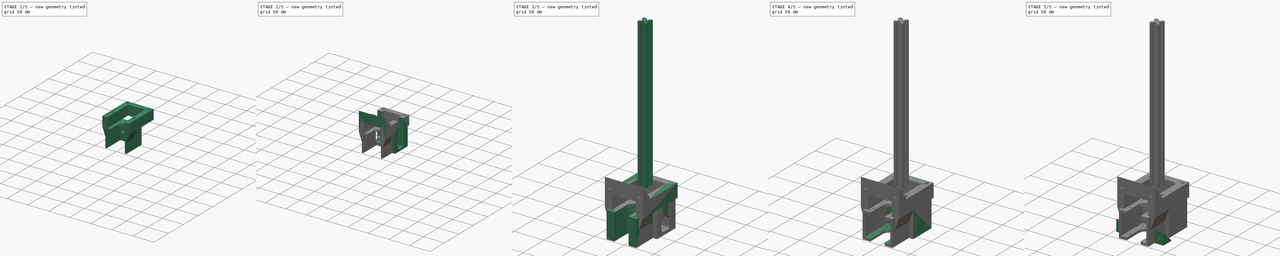
[diagram: build sequence overview — one tinted view per stage of 5, left to right]
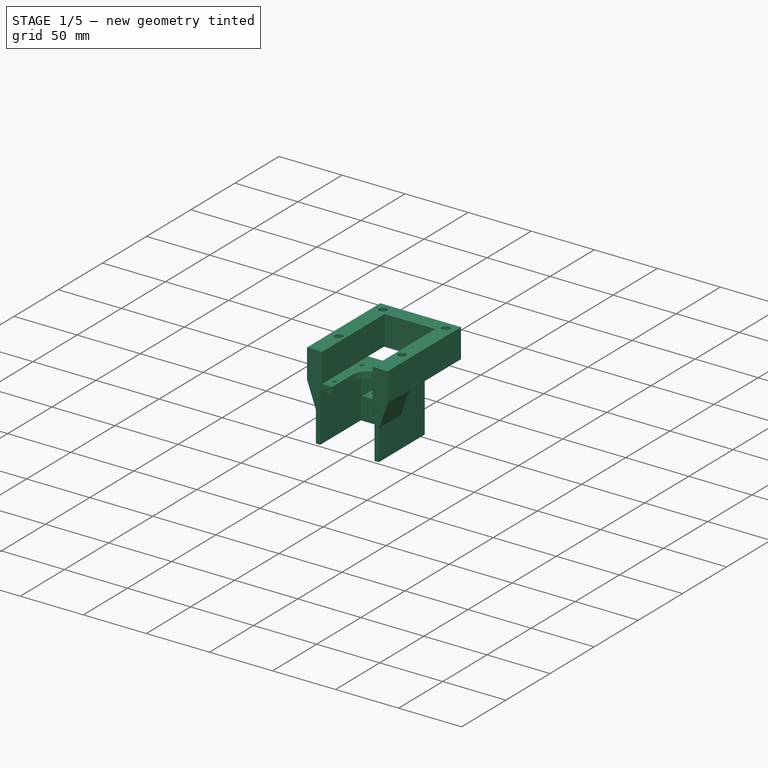
[diagram: stage 1 of 5 — iso view after this stage's code; geometry added in this stage tinted green]
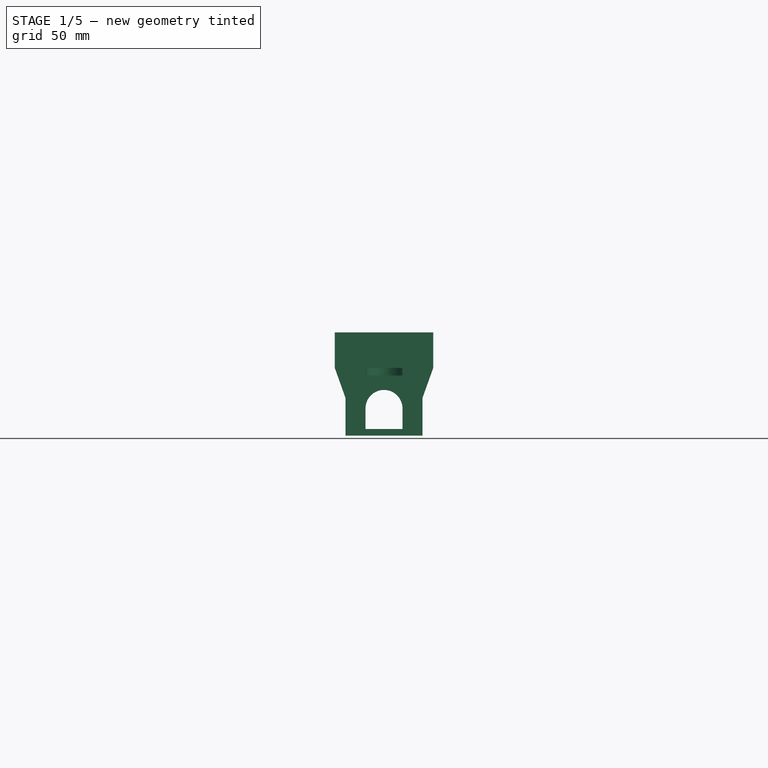
[diagram: stage 1 of 5 — front view after this stage's code; geometry added in this stage tinted green]
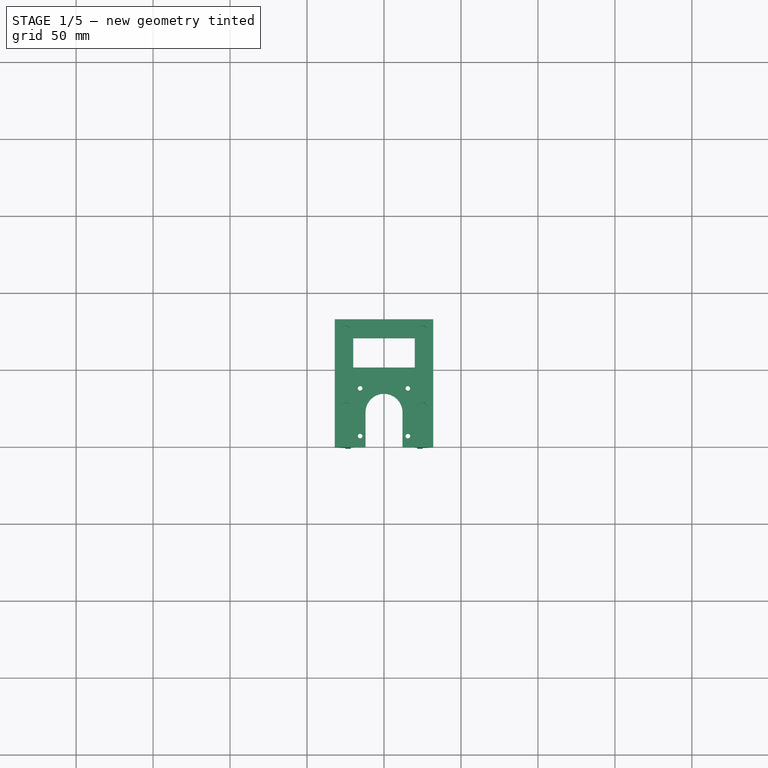
[diagram: stage 1 of 5 — top view after this stage's code; geometry added in this stage tinted green]
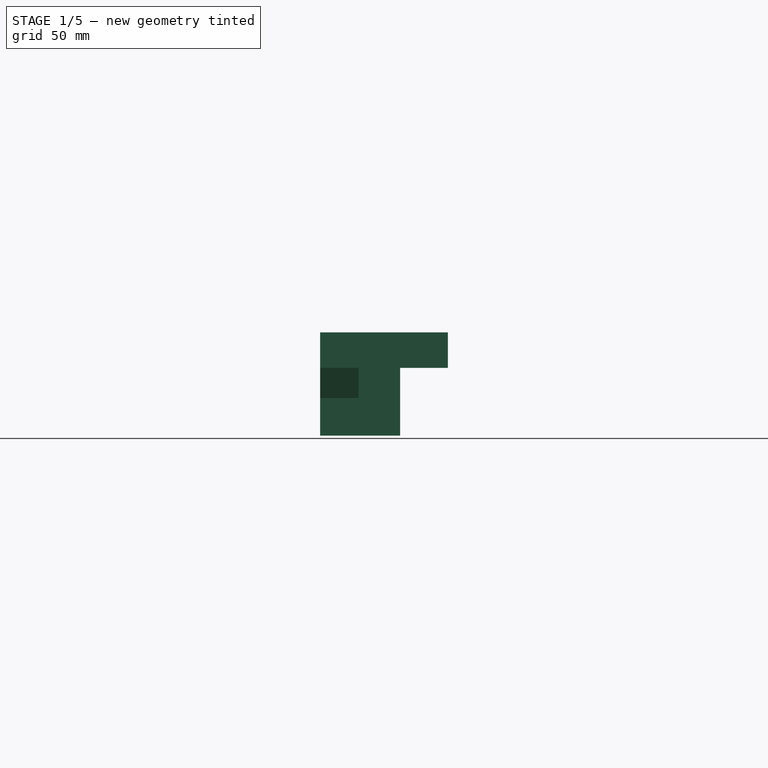
[diagram: stage 1 of 5 — right view after this stage's code; geometry added in this stage tinted green]
FCSTD DOCUMENT  (FreeCAD 1.0R39319 (Git))
Label: RobotBody
License: All rights reserved
LicenseURL: https://en.wikipedia.org/wiki/All_rights_reserved
objects: Part::Feature×77, Sketcher::SketchObject×33, PartDesign::Pocket×20, App::Link×14, PartDesign::Pad×13, App::Part×11, PartDesign::Body×4, PartDesign::PolarPattern×2, PartDesign::Mirrored×2, PartDesign::Fillet×2, App::LinkGroup×2, PartDesign::Chamfer×1
note: 263 computed .brp shape members not serialized (recipe doc carries the construction recipe); baked Part::Feature solids carry a one-line shape summary decoded from their .brp
EXTERNAL_REF file=MainShaft.FCStd obj=Body
EXTERNAL_REF file=MainStepper.FCStd obj=Body001
EXTERNAL_REF file=Robot.FCStd obj=Spreadsheet
EXTERNAL_REF file=MainShaftHolder.FCStd obj=Body
EXTERNAL_REF file=RobotShell.FCStd obj=LinkGroup

FEATURE [PartDesign::Body] Body001  label="BodyHolder"
  AllowCompound = false
  Group = -> [Sketch005,Pad004,Sketch006,Pad005,Sketch007,Pocket001,Sketch008,Pad006,Sketch009,Pocket002,Sketch012,Pocket004,PolarPattern,Chamfer,Sketch013,Pocket,Sketch,Pad,Sketch014,Pocket005,Sketch015,Pad007,Sketch016,Pocket006,Sketch017,Pocket007,Sketch018,Pocket008,Mirrored,Sketch019,Pocket009,Sketch020,Pocket010]
  Origin = -> Origin001
  Tip = -> Pocket010
FEATURE [App::Link] Link005  label="SpreadSheet001"
  LinkedObject = -> <external Robot.FCStd>#Spreadsheet
FEATURE [Sketcher::SketchObject] Sketch022
  ArcFitTolerance = 1e-06
  AttachmentSupport = -> [XY_Plane002]
  FullyConstrained = false
  MakeInternals = false
  MapMode = 5
  expr: Constraints[10] = <<SpreadSheet001>>.BaseWidth
  expr: Constraints[18] = <<SpreadSheet001>>.BaseRectWidth
  expr: Constraints[23] = <<SpreadSheet001>>.BaseWidth / 2
  sketch-geometry (10):
    g0: GeomPoint [constr] X=0 Y=0 Z=0
    g1: LineSegment StartX=32 StartY=-51 StartZ=0 EndX=32 EndY=32 EndZ=0
    g2: LineSegment StartX=32 StartY=32 StartZ=0 EndX=-32 EndY=32 EndZ=0
    g3: LineSegment StartX=-32 StartY=32 StartZ=0 EndX=-32 EndY=-51 EndZ=0
    g4: LineSegment StartX=-32 StartY=-51 StartZ=0 EndX=-20 EndY=-51 EndZ=0
    g5: GeomPoint [constr] X=0 Y=0 Z=0
    g6: LineSegment StartX=20 StartY=-51 StartZ=0 EndX=32 EndY=-51 EndZ=0
    g7: LineSegment StartX=-20 StartY=20 StartZ=0 EndX=-20 EndY=-51 EndZ=0
    g8: LineSegment StartX=20 StartY=20 StartZ=0 EndX=20 EndY=-51 EndZ=0
    g9: LineSegment StartX=-20 StartY=20 StartZ=0 EndX=20 EndY=20 EndZ=0
  constraints (25):
    c: Coincident(g0,g-1)
    c: Coincident(g1,g2)
    c: Coincident(g2,g3)
    c: Coincident(g3,g4)
    c: Coincident(g6,g1)
    c: Vertical(g1)
    c: Vertical(g3)
    c: Horizontal(g2)
    c: Horizontal(g4)
    c: Coincident(g5,g0)
    c: DistanceX(g2,g2) = 64
    c: Horizontal(g6,g1)
    c: Coincident(g7,g4)
    c: Vertical(g7)
    c: Coincident(g8,g6)
    c: Vertical(g8)
    c: Horizontal(g8,g7)
    c: Horizontal(g4,g6)
    c: Distance(g8,g7) = 40
    c: Equal(g4,g6)
    c: Coincident(g7,g9)
    c: Coincident(g9,g8)
    c: Distance(g2,g9) = 12
    c: Distance(g-1,g2) = 32
    c: Distance(g-1,g4) = 51
FEATURE [PartDesign::Pad] Pad009
  Direction = (0,0,1)
  Length = 23
  Length2 = 10
  Profile = -> Sketch022
  ReferenceAxis = -> Sketch022 [N_Axis]
  Refine = true
  Reversed = true
  Suppressed = false
  Type = 0
  expr: Length = <<SpreadSheet001>>.MainShaftHolder
FEATURE [Sketcher::SketchObject] Sketch023
  ArcFitTolerance = 1e-06
  AttachmentSupport = -> [Pad009]
  FullyConstrained = false
  MakeInternals = false
  MapMode = 5
  Placement = pos=(0,0,-23) rot=(1,0,0;3.14159rad)
  sketch-geometry (9):
    g0: LineSegment StartX=-25 StartY=51 StartZ=0 EndX=-25 EndY=-1 EndZ=0
    g1: LineSegment StartX=-25 StartY=-1 StartZ=0 EndX=25 EndY=-1 EndZ=0
    g2: LineSegment StartX=25 StartY=-1 StartZ=0 EndX=25 EndY=51 EndZ=0
    g3: LineSegment StartX=25 StartY=51 StartZ=0 EndX=12 EndY=51 EndZ=0
    g4: GeomPoint [constr] X=0 Y=28 Z=0
    g5: ArcOfCircle CenterX=0 CenterY=28 CenterZ=0 NormalX=0 NormalY=0 NormalZ=1 AngleXU=0 Radius=12 StartAngle=3.14094 EndAngle=6.28253
    g6: LineSegment StartX=-12 StartY=28.0078 StartZ=0 EndX=-12 EndY=51 EndZ=0
    g7: LineSegment StartX=12 StartY=27.9922 StartZ=0 EndX=12 EndY=51 EndZ=0
    g8: LineSegment StartX=-12 StartY=51 StartZ=0 EndX=-25 EndY=51 EndZ=0
  constraints (24):
    c: Coincident(g0,g1)
    c: Coincident(g1,g2)
    c: Coincident(g2,g3)
    c: Coincident(g8,g0)
    c: Vertical(g0)
    c: Vertical(g2)
    c: Horizontal(g1)
    c: PointOnObject(g4,g-2)
    c: DistanceY(g-1,g4) = 28
    c: DistanceX(g8,g3) = 50
    c: Angle(g5) = 3.14159
    c: Coincident(g5,g4)
    c: Vertical(g6)
    c: Coincident(g6,g5)
    c: Radius(g5) = 12
    c: Coincident(g5,g7)
    c: Coincident(g7,g3)
    c: Vertical(g7)
    c: Equal(g0,g2)
    c: Horizontal(g3)
    c: Horizontal(g8)
    c: Coincident(g6,g8)
    c: Distance(g4,g3) = 23
    c: Distance(g4,g1) = 29
FEATURE [PartDesign::Pad] Pad010
  BaseFeature = -> Pad009
  Direction = (0,0,-1)
  Length = 44
  Length2 = 10
  Profile = -> Sketch023
  ReferenceAxis = -> Sketch023 [N_Axis]
  Refine = true
  Suppressed = false
  Type = 0
FEATURE [Sketcher::SketchObject] Sketch024
  ArcFitTolerance = 1e-06
  AttachmentSupport = -> [Pad010]
  FullyConstrained = false
  MakeInternals = false
  MapMode = 5
  Placement = pos=(0,-51,0) rot=(1,0,0;1.5708rad)
  sketch-geometry (5):
    g0: LineSegment StartX=21.4848 StartY=-78 StartZ=0 EndX=21.4848 EndY=-28 EndZ=0
    g1: LineSegment StartX=21.4848 StartY=-28 StartZ=0 EndX=-21.5152 EndY=-28 EndZ=0
    g2: LineSegment StartX=-21.5152 StartY=-28 StartZ=0 EndX=-21.5152 EndY=-78 EndZ=0
    g3: LineSegment StartX=-21.5152 StartY=-78 StartZ=0 EndX=21.4848 EndY=-78 EndZ=0
    g4: GeomPoint [constr] X=-0.0151564 Y=-53 Z=0
  constraints (12):
    c: Coincident(g0,g1)
    c: Coincident(g1,g2)
    c: Coincident(g2,g3)
    c: Coincident(g3,g0)
    c: Vertical(g0)
    c: Vertical(g2)
    c: Horizontal(g1)
    c: Horizontal(g3)
    c: Symmetric(g2,g0,g4)
    c: DistanceY(g2,g2) = 50
    c: DistanceX(g1,g1) = 43
    c: Distance(g-1,g1) = 28
FEATURE [PartDesign::Pocket] Pocket012
  BaseFeature = -> Pad010
  Direction = (0,1,-2e-16)
  Length = 46
  Length2 = 5
  Profile = -> Sketch024
  ReferenceAxis = -> Sketch024 [N_Axis]
  Refine = true
  Suppressed = false
  Type = 0
FEATURE [Sketcher::SketchObject] Sketch025
  ArcFitTolerance = 1e-06
  AttachmentSupport = -> [Pocket012]
  ExternalGeometry = -> [Pocket012]
  FullyConstrained = false
  MakeInternals = false
  MapMode = 5
  Placement = pos=(0,-51,0) rot=(1,0,0;1.5708rad)
  sketch-geometry (6):
    g0: LineSegment StartX=-32 StartY=-23 StartZ=0 EndX=-25 EndY=-23 EndZ=0
    g1: LineSegment StartX=-25 StartY=-23 StartZ=0 EndX=-25 EndY=-42.5619 EndZ=0
    g2: LineSegment StartX=-25 StartY=-42.5619 StartZ=0 EndX=-32 EndY=-23 EndZ=0
    g3: LineSegment StartX=32 StartY=-23 StartZ=0 EndX=25 EndY=-23 EndZ=0
    g4: LineSegment StartX=25 StartY=-42.5619 StartZ=0 EndX=32 EndY=-23 EndZ=0
    g5: LineSegment StartX=25 StartY=-23 StartZ=0 EndX=25 EndY=-42.5619 EndZ=0
  constraints (13):
    c: Coincident(g-3,g0)
    c: Coincident(g0,g-4)
    c: Coincident(g0,g1)
    c: Vertical(g1)
    c: Coincident(g1,g2)
    c: Coincident(g2,g0)
    c: Coincident(g-6,g3)
    c: Coincident(g3,g-6)
    c: Coincident(g4,g3)
    c: Coincident(g3,g5)
    c: Coincident(g5,g4)
    c: Vertical(g5)
    c: Horizontal(g1,g4)
FEATURE [PartDesign::Pad] Pad011
  BaseFeature = -> Pocket012
  Direction = (0,-1,2e-16)
  Length = 25
  Length2 = 10
  Profile = -> Sketch025
  ReferenceAxis = -> Sketch025 [N_Axis]
  Refine = true
  Reversed = true
  Suppressed = false
  Type = 0
FEATURE [Sketcher::SketchObject] Sketch026
  ArcFitTolerance = 1e-06
  AttachmentSupport = -> [Pad011]
  FullyConstrained = true
  MakeInternals = false
  MapMode = 5
  Placement = pos=(0,0,-23) rot=(0,0,1;0rad)
  expr: Constraints[10] = <<SpreadSheet001>>.StepperCenterToScewHole
  expr: Constraints[11] = <<SpreadSheet001>>.StepperCenterToScewHole
  expr: Constraints[12] = <<SpreadSheet001>>.StepperCenterToScewHole
  expr: Constraints[13] = <<SpreadSheet001>>.StepperCenterToScewHole
  expr: Constraints[3] = <<SpreadSheet001>>.StepperCenterToScewHole
  expr: Constraints[4] = <<SpreadSheet001>>.StepperCenterToScewHole
  expr: Constraints[8] = <<SpreadSheet001>>.StepperCenterToScewHole
  expr: Constraints[9] = <<SpreadSheet001>>.StepperCenterToScewHole
  sketch-geometry (5):
    g0: GeomPoint [constr] X=0 Y=-28 Z=0
    g1: Circle CenterX=-15.5 CenterY=-12.5 CenterZ=0 NormalX=0 NormalY=0 NormalZ=1 AngleXU=0 Radius=1.5
    g2: Circle CenterX=-15.5 CenterY=-43.5 CenterZ=0 NormalX=0 NormalY=0 NormalZ=1 AngleXU=0 Radius=1.5
    g3: Circle CenterX=15.5 CenterY=-43.5 CenterZ=0 NormalX=0 NormalY=0 NormalZ=1 AngleXU=0 Radius=1.5
    g4: Circle CenterX=15.5 CenterY=-12.5 CenterZ=0 NormalX=0 NormalY=0 NormalZ=1 AngleXU=0 Radius=1.5
  constraints (14):
    c: PointOnObject(g0,g-2)
    c: DistanceY(g0,g-1) = 28
    c: Diameter(g1) = 3
    c: Distance(g1,g-2) = 15.5
    c: DistanceY(g0,g1) = 15.5
    c: Diameter(g2) = 3
    c: Diameter(g3) = 3
    c: Diameter(g4) = 3
    c: Distance(g4,g-2) = 15.5
    c: DistanceY(g0,g4) = 15.5
    c: DistanceY(g3,g0) = 15.5
    c: DistanceY(g2,g0) = 15.5
    c: DistanceX(g2,g0) = 15.5
    c: DistanceX(g0,g3) = 15.5
FEATURE [PartDesign::Pocket] Pocket013
  BaseFeature = -> Pad011
  Direction = (0,0,-1)
  Length = 10
  Length2 = 5
  Profile = -> Sketch026
  ReferenceAxis = -> Sketch026 [N_Axis]
  Refine = true
  Suppressed = false
  Type = 1
FEATURE [Sketcher::SketchObject] Sketch027
  ArcFitTolerance = 1e-06
  AttachmentSupport = -> [Pocket013]
  FullyConstrained = true
  MakeInternals = false
  MapMode = 5
  expr: Constraints[0] = 6
  expr: Constraints[1] = 25
  expr: Constraints[2] = 25 mm
  sketch-geometry (1):
    g0: Circle CenterX=-25 CenterY=25 CenterZ=0 NormalX=0 NormalY=0 NormalZ=1 AngleXU=0 Radius=3
  constraints (3):
    c: Diameter(g0) = 6
    c: Distance(g0,g-2) = 25
    c: Distance(g0,g-1) = 25
FEATURE [PartDesign::Pocket] Pocket014
  BaseFeature = -> Pocket013
  Direction = (0,0,-1)
  Length = 10
  Length2 = 5
  Profile = -> Sketch027
  ReferenceAxis = -> Sketch027 [N_Axis]
  Refine = true
  Suppressed = false
  Type = 0
FEATURE [PartDesign::PolarPattern] PolarPattern001
  Angle = 360
  Axis = -> Sketch027 [N_Axis]
  BaseFeature = -> Pocket014
  Mode = 0
  Occurrences = 4
  Offset = 120
  Originals = -> [Pocket014]
  Refine = true
  Suppressed = false
  TransformMode = 0
FEATURE [Sketcher::SketchObject] Sketch028
  ArcFitTolerance = 1e-06
  AttachmentSupport = -> [PolarPattern001]
  FullyConstrained = false
  MakeInternals = false
  MapMode = 5
  Placement = pos=(0,1,0) rot=(0,0.707107,0.707107;3.14159rad)
  sketch-geometry (4):
    g0: LineSegment StartX=-12 StartY=-62.7172 StartZ=0 EndX=12 EndY=-62.7172 EndZ=0
    g1: LineSegment StartX=12 StartY=-62.7172 StartZ=0 EndX=12 EndY=-49.3568 EndZ=0
    g2: LineSegment StartX=-12 StartY=-49.3568 StartZ=0 EndX=-12 EndY=-62.7172 EndZ=0
    g3: ArcOfCircle CenterX=5.51344e-07 CenterY=-49.3568 CenterZ=0 NormalX=0 NormalY=0 NormalZ=1 AngleXU=0 Radius=12 StartAngle=4e-16 EndAngle=3.14159
  constraints (10):
    c: Coincident(g0,g1)
    c: Coincident(g2,g0)
    c: Horizontal(g0)
    c: Vertical(g1)
    c: Vertical(g2)
    c: Distance(g1,g2) = 24
    c: Coincident(g0,g-3)
    c: Symmetric(g1,g2,g3)
    c: Coincident(g3,g2)
    c: Coincident(g3,g1)
FEATURE [PartDesign::Pocket] Pocket011
  BaseFeature = -> PolarPattern001
  Direction = (0,-1,2e-16)
  Length = 6
  Length2 = 5
  Profile = -> Sketch028
  ReferenceAxis = -> Sketch028 [N_Axis]
  Refine = true
  Suppressed = false
  Type = 0
FEATURE [PartDesign::Body] Body003  label="MainArmRotator"
  AllowCompound = false
  Group = -> [Sketch014,Sketch,Revolution,Pocket,PolarPattern,Sketch015,Pad,Sketch016,Pocket001]
  Origin = -> Origin003
  Placement = pos=(0,0,22) rot=(0,0,1;1.5708rad)
  Tip = -> Pocket001
FEATURE [App::Link] Link001  label="SpreadSheet"
  LinkedObject = -> <external Robot.FCStd>#Spreadsheet
FEATURE [Sketcher::SketchObject] Sketch017
  ArcFitTolerance = 1e-06
  AttachmentSupport = -> [XZ_Plane]
  FullyConstrained = true
  MakeInternals = false
  MapMode = 5
  Placement = pos=(0,0,0) rot=(1,0,0;1.5708rad)
  sketch-geometry (8):
    g0: LineSegment StartX=14 StartY=0 StartZ=0 EndX=14 EndY=5 EndZ=0
    g1: LineSegment StartX=14 StartY=5 StartZ=0 EndX=22 EndY=5 EndZ=0
    g2: LineSegment StartX=22 StartY=5 StartZ=0 EndX=22 EndY=32 EndZ=0
    g3: LineSegment StartX=22 StartY=32 StartZ=0 EndX=32.5 EndY=32 EndZ=0
    g4: LineSegment StartX=32.5 StartY=32 StartZ=0 EndX=32.5 EndY=5 EndZ=0
    g5: LineSegment StartX=32.5 StartY=5 StartZ=0 EndX=36.5 EndY=5 EndZ=0
    g6: LineSegment StartX=36.5 StartY=5 StartZ=0 EndX=36.5 EndY=0 EndZ=0
    g7: LineSegment StartX=36.5 StartY=0 StartZ=0 EndX=14 EndY=0 EndZ=0
  constraints (24):
    c: Coincident(g0,g1)
    c: Horizontal(g1)
    c: Coincident(g1,g2)
    c: Vertical(g2)
    c: Coincident(g2,g3)
    c: Horizontal(g3)
    c: Coincident(g3,g4)
    c: Vertical(g4)
    c: Coincident(g4,g5)
    c: Horizontal(g5)
    c: Coincident(g5,g6)
    c: PointOnObject(g6,g-1)
    c: Vertical(g6)
    c: Coincident(g6,g7)
    c: Coincident(g7,g0)
    c: Vertical(g0)
    c: Horizontal(g7)
    c: Distance(g-2,g0) = 14
    c: Distance(g6,g6) = 5
    c: Distance(g7,g1) = 5
    c: Distance(g-2,g2) = 22
    c: Distance(g-2,g4) = 32.5
    c: Distance(g-1,g3) = 32
    c: Distance(g-2,g6) = 36.5
FEATURE [PartDesign::Revolution] Revolution001
  Angle = 360
  Angle2 = 60
  Axis = (0,2e-16,1)
  Base = (0,0,0)
  Placement = pos=(0,0,0) rot=(1,0,0;1.5708rad)
  Profile = -> Sketch017
  ReferenceAxis = -> Sketch017 [V_Axis]
  Refine = true
  Reversed = true
  Suppressed = false
  Type = 0
FEATURE [Sketcher::SketchObject] Sketch018
  ArcFitTolerance = 1e-06
  AttachmentSupport = -> [Revolution001]
  FullyConstrained = true
  MakeInternals = false
  MapMode = 5
  Placement = pos=(0,2.2e-15,5) rot=(0,0,1;3.14159rad)
  sketch-geometry (1):
    g0: Circle CenterX=0 CenterY=19 CenterZ=0 NormalX=0 NormalY=0 NormalZ=1 AngleXU=0 Radius=1.5
  constraints (3):
    c: Diameter(g0) = 3
    c: Vertical(g0,g-1)
    c: DistanceY(g-1,g0) = 19
FEATURE [PartDesign::Pocket] Pocket002
  BaseFeature = -> Revolution001
  Direction = (0,0,-1)
  Length = 5
  Length2 = 5
  Placement = pos=(0,0,0) rot=(1,0,0;1.5708rad)
  Profile = -> Sketch018
  ReferenceAxis = -> Sketch018 [N_Axis]
  Refine = true
  Suppressed = false
  Type = 0
FEATURE [PartDesign::PolarPattern] PolarPattern001
  Angle = 360
  Axis = -> Sketch018 [N_Axis]
  BaseFeature = -> Pocket002
  Mode = 0
  Occurrences = 6
  Offset = 120
  Originals = -> [Pocket002]
  Placement = pos=(0,0,0) rot=(1,0,0;1.5708rad)
  Refine = true
  Suppressed = false
  TransformMode = 0
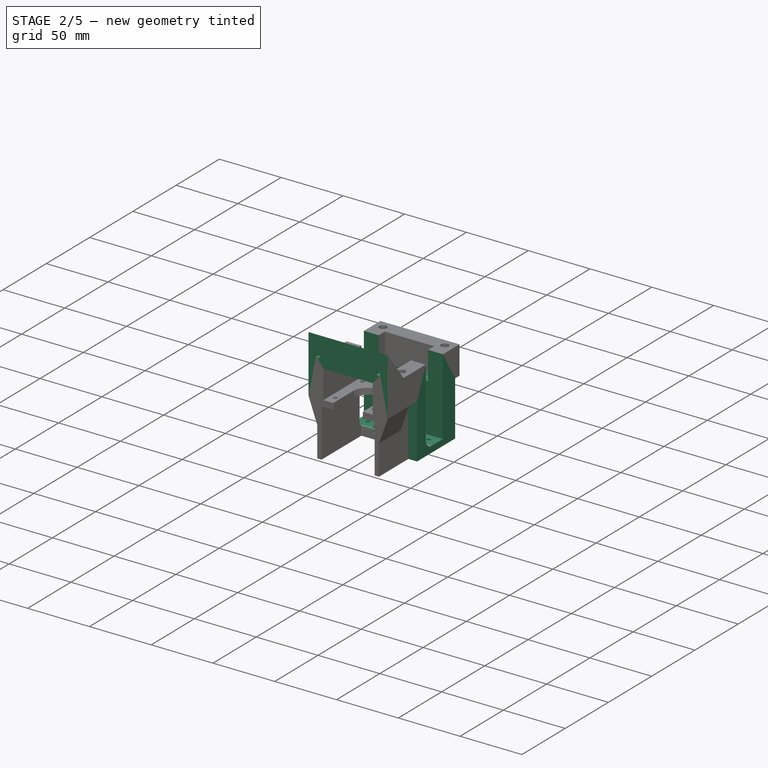
[diagram: stage 2 of 5 — iso view after this stage's code; geometry added in this stage tinted green]
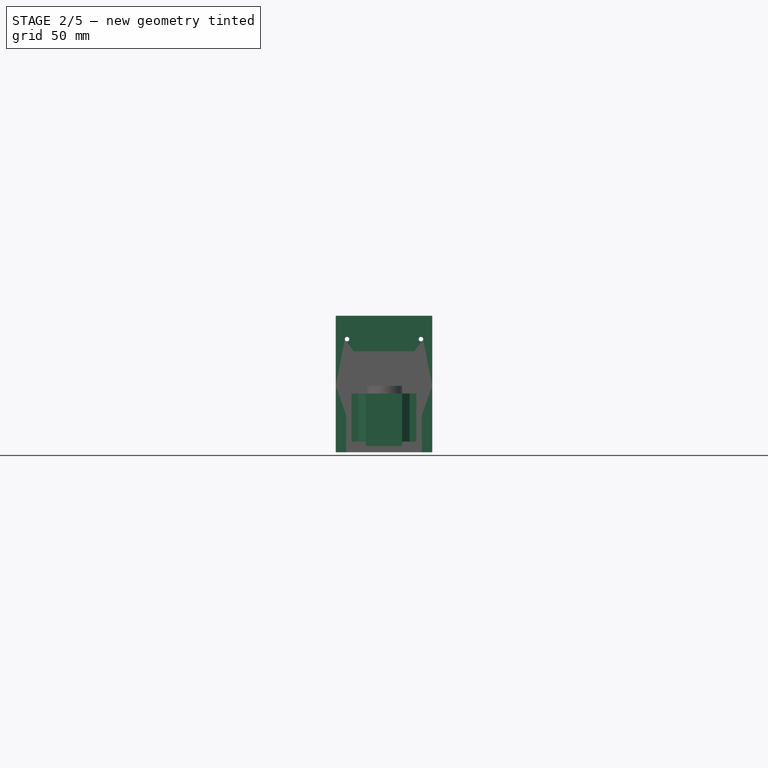
[diagram: stage 2 of 5 — front view after this stage's code; geometry added in this stage tinted green]
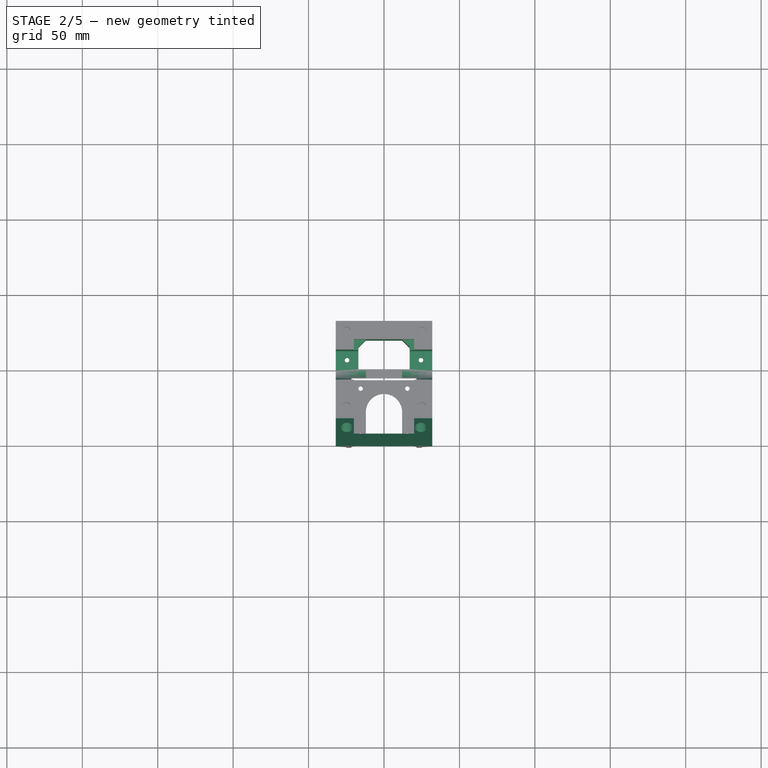
[diagram: stage 2 of 5 — top view after this stage's code; geometry added in this stage tinted green]
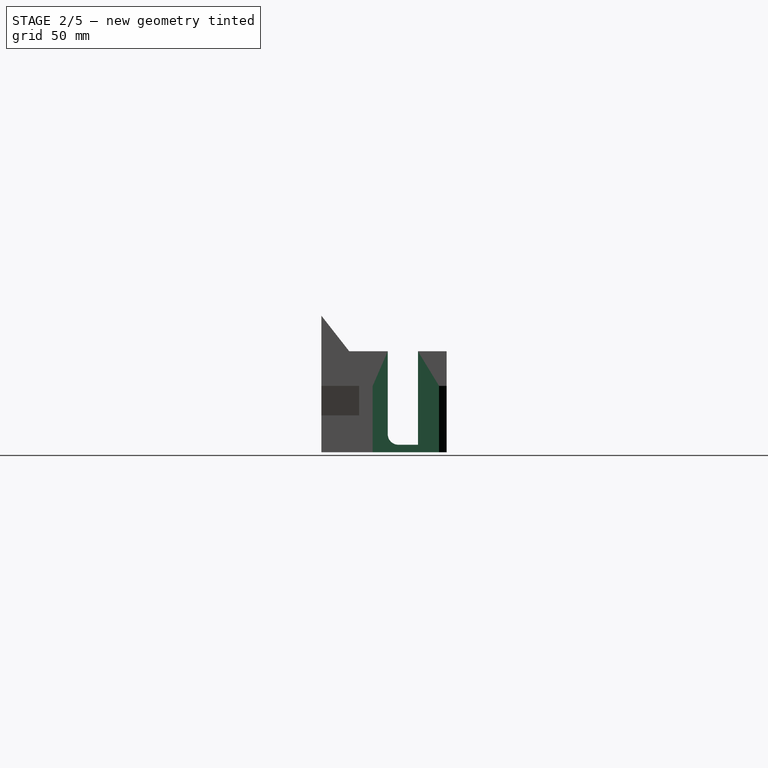
[diagram: stage 2 of 5 — right view after this stage's code; geometry added in this stage tinted green]
FEATURE [Sketcher::SketchObject] Sketch021
  ArcFitTolerance = 1e-06
  AttachmentSupport = -> [Pocket011]
  FullyConstrained = true
  MakeInternals = false
  MapMode = 5
  Placement = pos=(0,0,-23) rot=(1,0,0;3.14159rad)
  sketch-geometry (16):
    g0: LineSegment StartX=-32 StartY=17 StartZ=0 EndX=-25 EndY=17 EndZ=0
    g1: LineSegment StartX=-25 StartY=17 StartZ=0 EndX=-25 EndY=7 EndZ=0
    g2: LineSegment StartX=-25 StartY=7 StartZ=0 EndX=-17 EndY=-1 EndZ=0
    g3: LineSegment StartX=-17 StartY=-1 StartZ=0 EndX=-17 EndY=-15 EndZ=0
    g4: LineSegment StartX=-17 StartY=-15 StartZ=0 EndX=-12 EndY=-20 EndZ=0
    g5: LineSegment StartX=-12 StartY=-20 StartZ=0 EndX=12 EndY=-20 EndZ=0
    g6: LineSegment StartX=12 StartY=-20 StartZ=0 EndX=17 EndY=-15 EndZ=0
    g7: LineSegment StartX=17 StartY=-15 StartZ=0 EndX=17 EndY=-1 EndZ=0
    g8: LineSegment StartX=17 StartY=-1 StartZ=0 EndX=25 EndY=7 EndZ=0
    g9: LineSegment StartX=25 StartY=7 StartZ=0 EndX=25 EndY=17 EndZ=0
    g10: LineSegment StartX=25 StartY=17 StartZ=0 EndX=32 EndY=17 EndZ=0
    g11: LineSegment StartX=32 StartY=17 StartZ=0 EndX=32 EndY=-27 EndZ=0
    g12: LineSegment StartX=32 StartY=-27 StartZ=0 EndX=27 EndY=-32 EndZ=0
    g13: LineSegment StartX=27 StartY=-32 StartZ=0 EndX=-27 EndY=-32 EndZ=0
    g14: LineSegment StartX=-27 StartY=-32 StartZ=0 EndX=-32 EndY=-27 EndZ=0
    g15: LineSegment StartX=-32 StartY=-27 StartZ=0 EndX=-32 EndY=17 EndZ=0
  constraints (48):
    c: Horizontal(g0)
    c: Coincident(g0,g1)
    c: Vertical(g1)
    c: Coincident(g1,g2)
    c: Coincident(g2,g3)
    c: Vertical(g3)
    c: Coincident(g3,g4)
    c: Coincident(g4,g5)
    c: Horizontal(g5)
    c: Coincident(g5,g6)
    c: Coincident(g6,g7)
    c: Vertical(g7)
    c: Coincident(g7,g8)
    c: Coincident(g8,g9)
    c: Vertical(g9)
    c: Coincident(g9,g10)
    c: Horizontal(g10)
    c: Coincident(g10,g11)
    c: Vertical(g11)
    c: Coincident(g11,g12)
    c: Coincident(g12,g13)
    c: Horizontal(g13)
    c: Coincident(g13,g14)
    c: Coincident(g14,g15)
    c: Coincident(g15,g0)
    c: Vertical(g15)
    c: Distance(g-2,g15) = 32
    c: Distance(g-1,g0) = 17
    c: Distance(g0,g0) = 7
    c: DistanceY(g1,g1) = 10
    c: Distance(g15,g3) = 15
    c: Angle(g2,g1) = 2.35619
    c: Angle(g14,g15) = 2.35619
    c: Distance(g-1,g13) = 32
    c: DistanceX(g10,g10) = 7
    c: Distance(g-2,g11) = 32
    c: DistanceY(g9,g9) = 10
    c: Angle(g9,g8) = 2.35619
    c: Distance(g-1,g10) = 17
    c: Distance(g7,g11) = 15
    c: DistanceY(g14,g-1) = 27
    c: DistanceY(g11,g-1) = 27
    c: Angle(g11,g12) = 2.35619
    c: Angle(g4,g3) = 2.35619
    c: Angle(g7,g6) = 2.35619
    c: Distance(g-1,g5) = 20
    c: DistanceX(g4,g-1) = 12
    c: Distance(g5,g-2) = 12
FEATURE [PartDesign::Pad] Pad008
  BaseFeature = -> Pocket011
  Direction = (0,0,-1)
  Length = 44
  Length2 = 10
  Profile = -> Sketch021
  ReferenceAxis = -> Sketch021 [N_Axis]
  Refine = true
  Suppressed = false
  Type = 0
FEATURE [Sketcher::SketchObject] Sketch029
  ArcFitTolerance = 1e-06
  AttachmentSupport = -> [Pad008]
  ExternalGeometry = -> [Pad008]
  FullyConstrained = true
  MakeInternals = false
  MapMode = 5
  Placement = pos=(-32,3.571e-13,-2.7539e-12) rot=(-0.57735,0.57735,0.57735;4.18879rad)
  sketch-geometry (5):
    g0: LineSegment StartX=7 StartY=0 StartZ=0 EndX=-13 EndY=0 EndZ=0
    g1: LineSegment StartX=7 StartY=-55 StartZ=0 EndX=7 EndY=0 EndZ=0
    g2: LineSegment StartX=-13 StartY=-62 StartZ=0 EndX=-13 EndY=0 EndZ=0
    g3: LineSegment StartX=-13 StartY=-62 StartZ=0 EndX=-1.8e-15 EndY=-62 EndZ=0
    g4: ArcOfCircle CenterX=0 CenterY=-55 CenterZ=0 NormalX=0 NormalY=0 NormalZ=1 AngleXU=0 Radius=7 StartAngle=4.71239 EndAngle=6.28319
  constraints (16):
    c: Horizontal(g0)
    c: Coincident(g1,g0)
    c: Vertical(g1)
    c: Distance(g0,g-2) = 13
    c: DistanceY(g1,g1) = 55
    c: Coincident(g2,g0)
    c: Vertical(g2)
    c: Coincident(g2,g3)
    c: DistanceX(g3,g3) = 13
    c: Horizontal(g3)
    c: Distance(g-3,g3) = 5
    c: Horizontal(g0,g-1)
    c: PointOnObject(g4,g-2)
    c: Coincident(g4,g1)
    c: Coincident(g3,g4)
    c: Horizontal(g4,g1)
FEATURE [PartDesign::Pocket] Pocket015
  BaseFeature = -> Pad008
  Direction = (1,-1.11e-14,8.62e-14)
  Length = 25
  Length2 = 5
  Profile = -> Sketch029
  ReferenceAxis = -> Sketch029 [N_Axis]
  Refine = true
  Suppressed = false
  Type = 1
FEATURE [Sketcher::SketchObject] Sketch030
  ArcFitTolerance = 1e-06
  AttachmentSupport = -> [XY_Plane]
  FullyConstrained = false
  MakeInternals = false
  MapMode = 5
  sketch-geometry (21):
    g0: LineSegment StartX=-7.5 StartY=-7.5 StartZ=0 EndX=-3 EndY=-7.5 EndZ=0
    g1: LineSegment StartX=7.5 StartY=-7.5 StartZ=0 EndX=7.5 EndY=-3 EndZ=0
    g2: LineSegment StartX=7.5 StartY=7.5 StartZ=0 EndX=3 EndY=7.5 EndZ=0
    g3: LineSegment StartX=-7.5 StartY=7.5 StartZ=0 EndX=-7.5 EndY=3 EndZ=0
    g4: GeomPoint [constr] X=0 Y=0 Z=0
    g5: LineSegment StartX=3 StartY=-7.5 StartZ=0 EndX=3 EndY=-4 EndZ=0
    g6: LineSegment StartX=3 StartY=-4 StartZ=0 EndX=-3 EndY=-4 EndZ=0
    g7: LineSegment StartX=-3 StartY=-4 StartZ=0 EndX=-3 EndY=-7.5 EndZ=0
    g8: LineSegment StartX=7.5 StartY=-3 StartZ=0 EndX=4 EndY=-3 EndZ=0
    g9: LineSegment StartX=4 StartY=-3 StartZ=0 EndX=4 EndY=3 EndZ=0
    g10: LineSegment StartX=4 StartY=3 StartZ=0 EndX=7.5 EndY=3 EndZ=0
    g11: LineSegment StartX=3 StartY=7.5 StartZ=0 EndX=3 EndY=4 EndZ=0
    g12: LineSegment StartX=3 StartY=4 StartZ=0 EndX=-3 EndY=4 EndZ=0
    g13: LineSegment StartX=-3 StartY=4 StartZ=0 EndX=-3 EndY=7.5 EndZ=0
    g14: LineSegment StartX=-7.5 StartY=3 StartZ=0 EndX=-4 EndY=3 EndZ=0
    g15: LineSegment StartX=-4 StartY=3 StartZ=0 EndX=-4 EndY=-3 EndZ=0
    g16: LineSegment StartX=-4 StartY=-3 StartZ=0 EndX=-7.5 EndY=-3 EndZ=0
    g17: LineSegment StartX=3 StartY=-7.5 StartZ=0 EndX=7.5 EndY=-7.5 EndZ=0
    g18: LineSegment StartX=7.5 StartY=3 StartZ=0 EndX=7.5 EndY=7.5 EndZ=0
    g19: LineSegment StartX=-3 StartY=7.5 StartZ=0 EndX=-7.5 EndY=7.5 EndZ=0
    g20: LineSegment StartX=-7.5 StartY=-3 StartZ=0 EndX=-7.5 EndY=-7.5 EndZ=0
  constraints (56):
    c: Coincident(g17,g1)
    c: Coincident(g18,g2)
    c: Coincident(g19,g3)
    c: Coincident(g20,g0)
    c: Horizontal(g0)
    c: Horizontal(g2)
    c: Vertical(g1)
    c: Vertical(g3)
    c: Symmetric(g2,g0,g4)
    c: Distance(g1,g20) = 15
    c: Distance(g0,g19) = 15
    c: Coincident(g4,g-1)
    c: PointOnObject(g5,g17)
    c: Vertical(g5)
    c: Coincident(g5,g6)
    c: Horizontal(g6)
    c: Coincident(g6,g7)
    c: Vertical(g7)
    c: Horizontal(g8)
    c: Coincident(g8,g9)
    c: Vertical(g9)
    c: Coincident(g9,g10)
    c: PointOnObject(g10,g18)
    c: Horizontal(g10)
    c: Vertical(g11)
    c: Coincident(g11,g12)
    c: Horizontal(g12)
    c: Coincident(g12,g13)
    c: PointOnObject(g13,g19)
    c: Vertical(g13)
    c: Horizontal(g14)
    c: Coincident(g14,g15)
    c: Vertical(g15)
    c: Coincident(g15,g16)
    c: PointOnObject(g16,g20)
    c: Horizontal(g16)
    c: Coincident(g0,g7)
    c: PointOnObject(g17,g5)
    c: Coincident(g1,g8)
    c: PointOnObject(g18,g10)
    c: Coincident(g2,g11)
    c: PointOnObject(g19,g13)
    c: Coincident(g3,g14)
    c: PointOnObject(g20,g16)
    c: Distance(g-1,g6) = 4
    c: Distance(g-2,g15) = 4
    c: Distance(g-1,g12) = 4
    c: Distance(g-2,g9) = 4
    c: Distance(g-2,g5) = 3
    c: Distance(g-1,g8) = 3
    c: Distance(g-1,g10) = 3
    c: Distance(g-2,g7) = 3
    c: Distance(g-1,g16) = 3
    c: Distance(g-1,g14) = 3
    c: Distance(g-2,g13) = 3
    c: Distance(g-2,g11) = 3
FEATURE [Sketcher::SketchObject] Sketch031
  ArcFitTolerance = 1e-06
  AttachmentSupport = -> [Pocket015]
  ExternalGeometry = -> [Pocket015]
  FullyConstrained = false
  MakeInternals = false
  MapMode = 5
  Placement = pos=(-32,3.571e-13,-2.7539e-12) rot=(-0.57735,0.57735,0.57735;4.18879rad)
  sketch-geometry (3):
    g0: LineSegment StartX=51 StartY=0 StartZ=0 EndX=51 EndY=23.5446 EndZ=0
    g1: LineSegment StartX=51 StartY=23.5446 StartZ=0 EndX=32.5692 EndY=0 EndZ=0
    g2: LineSegment StartX=32.5692 StartY=0 StartZ=0 EndX=51 EndY=0 EndZ=0
  constraints (6):
    c: Coincident(g-4,g0)
    c: Vertical(g0)
    c: Coincident(g0,g1)
    c: PointOnObject(g1,g-4)
    c: Coincident(g1,g2)
    c: Coincident(g2,g0)
FEATURE [PartDesign::Pad] Pad013
  BaseFeature = -> Pocket015
  Direction = (-1,1.11e-14,-8.62e-14)
  Length = 64
  Length2 = 10
  Profile = -> Sketch031
  ReferenceAxis = -> Sketch031 [N_Axis]
  Refine = true
  Reversed = true
  Suppressed = false
  Type = 0
FEATURE [Sketcher::SketchObject] Sketch032
  ArcFitTolerance = 1e-06
  AttachmentSupport = -> [Pad013]
  ExternalGeometry = -> [Pad013]
  FullyConstrained = true
  MakeInternals = false
  MapMode = 5
  Placement = pos=(0,0,2.8e-15) rot=(1,0,0;3.14159rad)
  sketch-geometry (4):
    g0: LineSegment StartX=20 StartY=32.5692 StartZ=0 EndX=20 EndY=43 EndZ=0
    g1: LineSegment StartX=20 StartY=43 StartZ=0 EndX=-20 EndY=43 EndZ=0
    g2: LineSegment StartX=-20 StartY=43 StartZ=0 EndX=-20 EndY=32.5692 EndZ=0
    g3: LineSegment StartX=-20 StartY=32.5692 StartZ=0 EndX=20 EndY=32.5692 EndZ=0
  constraints (11):
    c: Coincident(g0,g1)
    c: Coincident(g1,g2)
    c: Coincident(g2,g3)
    c: Coincident(g3,g0)
    c: Vertical(g0)
    c: Vertical(g2)
    c: Horizontal(g1)
    c: Horizontal(g3)
    c: Coincident(g0,g-4)
    c: PointOnObject(g1,g-5)
    c: Distance(g-3,g1) = 8
FEATURE [PartDesign::Pocket] Pocket016
  BaseFeature = -> Pad013
  Direction = (-8.62e-14,0,1)
  Length = 10
  Length2 = 5
  Profile = -> Sketch032
  ReferenceAxis = -> Sketch032 [N_Axis]
  Refine = true
  Suppressed = false
  Type = 1
FEATURE [Sketcher::SketchObject] Sketch033
  ArcFitTolerance = 1e-06
  AttachmentSupport = -> [Pocket016]
  FullyConstrained = true
  MakeInternals = false
  MapMode = 5
  Placement = pos=(-2.356e-13,-51,0) rot=(1,0,0;1.5708rad)
  sketch-geometry (2):
    g0: Circle CenterX=-24.5 CenterY=8 CenterZ=0 NormalX=0 NormalY=0 NormalZ=1 AngleXU=0 Radius=1.5
    g1: Circle CenterX=24.5 CenterY=8 CenterZ=0 NormalX=0 NormalY=0 NormalZ=1 AngleXU=0 Radius=1.5
  constraints (6):
    c: Diameter(g0) = 3
    c: Diameter(g1) = 3
    c: DistanceY(g-1,g1) = 8
    c: DistanceY(g-1,g0) = 8
    c: DistanceX(g0,g-1) = 24.5
    c: DistanceX(g-1,g1) = 24.5
FEATURE [PartDesign::Pocket] Pocket017
  BaseFeature = -> Pocket016
  Direction = (4.6e-15,1,-2e-16)
  Length = 5
  Length2 = 5
  Profile = -> Sketch033
  ReferenceAxis = -> Sketch033 [N_Axis]
  Refine = true
  Suppressed = false
  Type = 1
FEATURE [Sketcher::SketchObject] Sketch034
  ArcFitTolerance = 1e-06
  AttachmentOffset = pos=(0,0,-3) rot=(0,0,1;0rad)
  AttachmentSupport = -> [Pocket017]
  FullyConstrained = true
  MakeInternals = false
  MapMode = 5
  Placement = pos=(-2.218e-13,-48,-7e-16) rot=(1,0,0;1.5708rad)
  sketch-geometry (2):
    g0: Circle CenterX=-24.5 CenterY=8 CenterZ=0 NormalX=0 NormalY=0 NormalZ=1 AngleXU=0 Radius=4
    g1: Circle CenterX=24.5 CenterY=8 CenterZ=0 NormalX=0 NormalY=0 NormalZ=1 AngleXU=0 Radius=4
  constraints (6):
    c: Diameter(g0) = 8
    c: DistanceY(g-1,g0) = 8
    c: DistanceX(g0,g-1) = 24.5
    c: Diameter(g1) = 8
    c: DistanceY(g-1,g1) = 8
    c: DistanceX(g-1,g1) = 24.5
FEATURE [PartDesign::Pocket] Pocket018
  BaseFeature = -> Pocket017
  Direction = (4.6e-15,1,-2e-16)
  Length = 5
  Length2 = 5
  Profile = -> Sketch034
  ReferenceAxis = -> Sketch034 [N_Axis]
  Refine = true
  Suppressed = false
  Type = 1
FEATURE [Sketcher::SketchObject] Sketch036
  ArcFitTolerance = 1e-06
  AttachmentSupport = -> [Pocket018]
  FullyConstrained = true
  MakeInternals = false
  MapMode = 5
  Placement = pos=(5.3413e-12,0,-62) rot=(0,0,1;0rad)
  sketch-geometry (2):
    g0: Circle CenterX=24.5 CenterY=7 CenterZ=0 NormalX=0 NormalY=0 NormalZ=1 AngleXU=0 Radius=1.5
    g1: Circle CenterX=-24.5 CenterY=7 CenterZ=0 NormalX=0 NormalY=0 NormalZ=1 AngleXU=0 Radius=1.5
  constraints (6):
    c: Diameter(g0) = 3
    c: Diameter(g1) = 3
    c: DistanceX(g1,g-1) = 24.5
    c: DistanceY(g-1,g1) = 7
    c: DistanceX(g-1,g0) = 24.5
    c: DistanceY(g-1,g0) = 7
FEATURE [PartDesign::Pocket] Pocket019
  BaseFeature = -> Pocket018
  Direction = (8.62e-14,0,-1)
  Length = 5
  Length2 = 5
  Profile = -> Sketch036
  ReferenceAxis = -> Sketch036 [N_Axis]
  Refine = true
  Suppressed = false
  Type = 0
FEATURE [Sketcher::SketchObject] Sketch037
  ArcFitTolerance = 1e-06
  AttachmentSupport = -> [Pocket019]
  FullyConstrained = true
  MakeInternals = false
  MapMode = 5
  sketch-geometry (2):
    g0: Circle CenterX=-24.5 CenterY=7 CenterZ=0 NormalX=0 NormalY=0 NormalZ=1 AngleXU=0 Radius=3
    g1: Circle CenterX=24.5 CenterY=7 CenterZ=0 NormalX=0 NormalY=0 NormalZ=1 AngleXU=0 Radius=3
  constraints (6):
    c: Diameter(g0) = 6
    c: Diameter(g1) = 6
    c: DistanceY(g-1,g0) = 7
    c: DistanceX(g0,g-1) = 24.5
    c: DistanceY(g-1,g1) = 7
    c: DistanceX(g-1,g1) = 24.5
FEATURE [PartDesign::Pocket] Pocket020
  BaseFeature = -> Pocket019
  Direction = (0,0,-1)
  Length = 10
  Length2 = 5
  Profile = -> Sketch037
  ReferenceAxis = -> Sketch037 [N_Axis]
  Refine = true
  Suppressed = false
  Type = 0
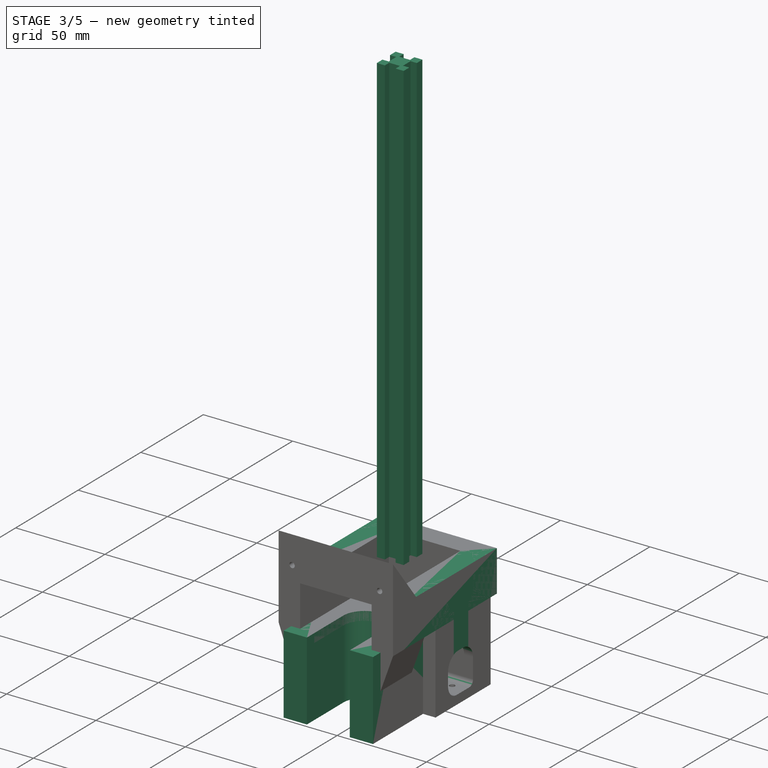
[diagram: stage 3 of 5 — iso view after this stage's code; geometry added in this stage tinted green]
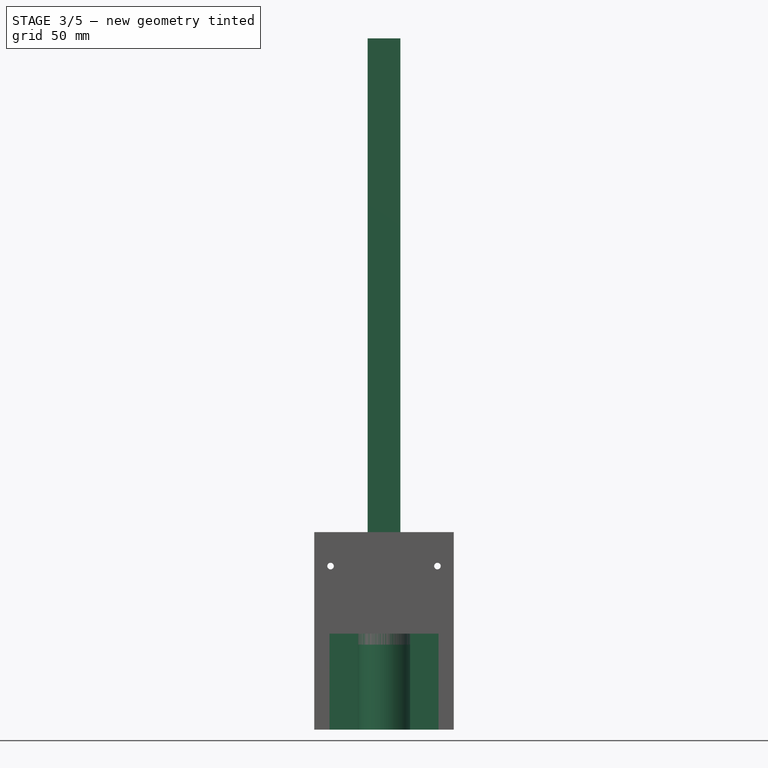
[diagram: stage 3 of 5 — front view after this stage's code; geometry added in this stage tinted green]
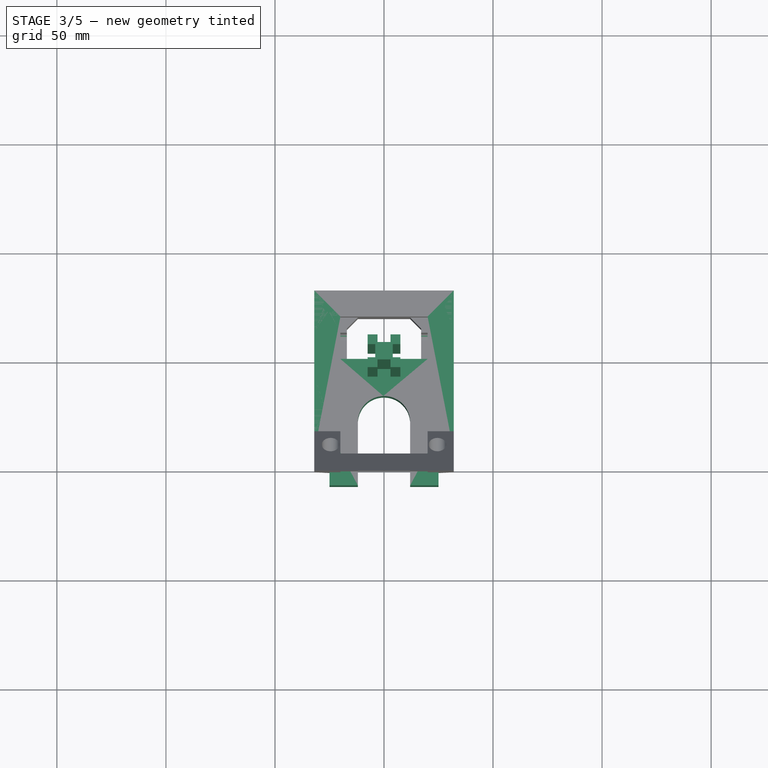
[diagram: stage 3 of 5 — top view after this stage's code; geometry added in this stage tinted green]
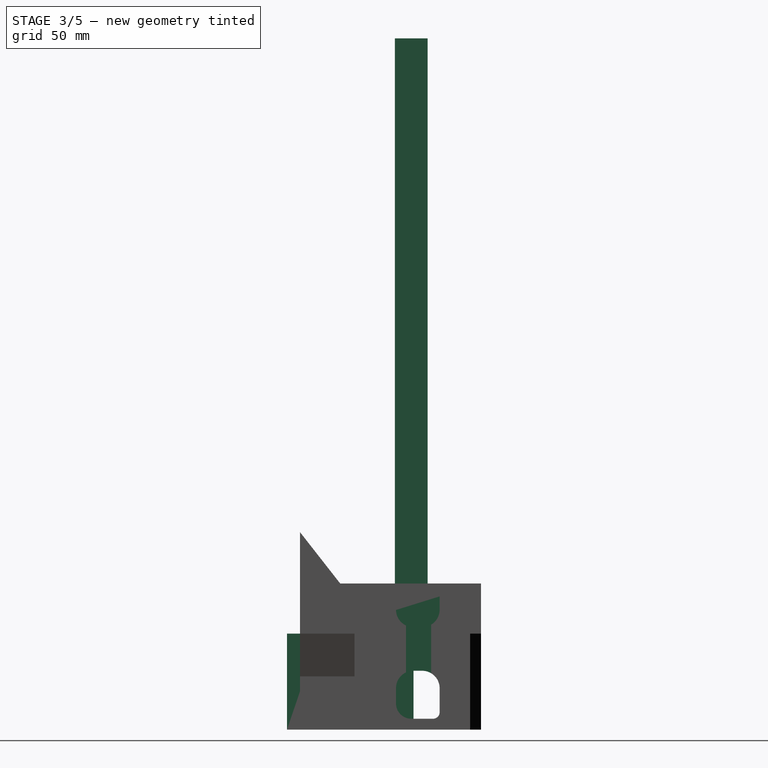
[diagram: stage 3 of 5 — right view after this stage's code; geometry added in this stage tinted green]
FEATURE [App::Link] Link010  label="Stick004"
  LinkPlacement = pos=(17,7.00001,-74.5) rot=(0,-1,0;1.5708rad)
  LinkedObject = -> Body
  Placement = pos=(17,7.00001,-74.5) rot=(0,-1,0;1.5708rad)
FEATURE [Sketcher::SketchObject] Sketch038
  ArcFitTolerance = 1e-06
  AttachmentSupport = -> [XY_Plane003]
  FullyConstrained = false
  MakeInternals = false
  MapMode = 5
  sketch-geometry (21):
    g0: LineSegment StartX=-7.5 StartY=-7.5 StartZ=0 EndX=-3 EndY=-7.5 EndZ=0
    g1: LineSegment StartX=7.5 StartY=-7.5 StartZ=0 EndX=7.5 EndY=-3 EndZ=0
    g2: LineSegment StartX=7.5 StartY=7.5 StartZ=0 EndX=3 EndY=7.5 EndZ=0
    g3: LineSegment StartX=-7.5 StartY=7.5 StartZ=0 EndX=-7.5 EndY=3 EndZ=0
    g4: GeomPoint [constr] X=0 Y=0 Z=0
    g5: LineSegment StartX=3 StartY=-7.5 StartZ=0 EndX=3 EndY=-4 EndZ=0
    g6: LineSegment StartX=3 StartY=-4 StartZ=0 EndX=-3 EndY=-4 EndZ=0
    g7: LineSegment StartX=-3 StartY=-4 StartZ=0 EndX=-3 EndY=-7.5 EndZ=0
    g8: LineSegment StartX=7.5 StartY=-3 StartZ=0 EndX=4 EndY=-3 EndZ=0
    g9: LineSegment StartX=4 StartY=-3 StartZ=0 EndX=4 EndY=3 EndZ=0
    g10: LineSegment StartX=4 StartY=3 StartZ=0 EndX=7.5 EndY=3 EndZ=0
    g11: LineSegment StartX=3 StartY=7.5 StartZ=0 EndX=3 EndY=4 EndZ=0
    g12: LineSegment StartX=3 StartY=4 StartZ=0 EndX=-3 EndY=4 EndZ=0
    g13: LineSegment StartX=-3 StartY=4 StartZ=0 EndX=-3 EndY=7.5 EndZ=0
    g14: LineSegment StartX=-7.5 StartY=3 StartZ=0 EndX=-4 EndY=3 EndZ=0
    g15: LineSegment StartX=-4 StartY=3 StartZ=0 EndX=-4 EndY=-3 EndZ=0
    g16: LineSegment StartX=-4 StartY=-3 StartZ=0 EndX=-7.5 EndY=-3 EndZ=0
    g17: LineSegment StartX=3 StartY=-7.5 StartZ=0 EndX=7.5 EndY=-7.5 EndZ=0
    g18: LineSegment StartX=7.5 StartY=3 StartZ=0 EndX=7.5 EndY=7.5 EndZ=0
    g19: LineSegment StartX=-3 StartY=7.5 StartZ=0 EndX=-7.5 EndY=7.5 EndZ=0
    g20: LineSegment StartX=-7.5 StartY=-3 StartZ=0 EndX=-7.5 EndY=-7.5 EndZ=0
  constraints (56):
    c: Coincident(g17,g1)
    c: Coincident(g18,g2)
    c: Coincident(g19,g3)
    c: Coincident(g20,g0)
    c: Horizontal(g0)
    c: Horizontal(g2)
    c: Vertical(g1)
    c: Vertical(g3)
    c: Symmetric(g2,g0,g4)
    c: Distance(g1,g20) = 15
    c: Distance(g0,g19) = 15
    c: Coincident(g4,g-1)
    c: PointOnObject(g5,g17)
    c: Vertical(g5)
    c: Coincident(g5,g6)
    c: Horizontal(g6)
    c: Coincident(g6,g7)
    c: Vertical(g7)
    c: Horizontal(g8)
    c: Coincident(g8,g9)
    c: Vertical(g9)
    c: Coincident(g9,g10)
    c: PointOnObject(g10,g18)
    c: Horizontal(g10)
    c: Vertical(g11)
    c: Coincident(g11,g12)
    c: Horizontal(g12)
    c: Coincident(g12,g13)
    c: PointOnObject(g13,g19)
    c: Vertical(g13)
    c: Horizontal(g14)
    c: Coincident(g14,g15)
    c: Vertical(g15)
    c: Coincident(g15,g16)
    c: PointOnObject(g16,g20)
    c: Horizontal(g16)
    c: Coincident(g0,g7)
    c: PointOnObject(g17,g5)
    c: Coincident(g1,g8)
    c: PointOnObject(g18,g10)
    c: Coincident(g2,g11)
    c: PointOnObject(g19,g13)
    c: Coincident(g3,g14)
    c: PointOnObject(g20,g16)
    c: Distance(g-1,g6) = 4
    c: Distance(g-2,g15) = 4
    c: Distance(g-1,g12) = 4
    c: Distance(g-2,g9) = 4
    c: Distance(g-2,g5) = 3
    c: Distance(g-1,g8) = 3
    c: Distance(g-1,g10) = 3
    c: Distance(g-2,g7) = 3
    c: Distance(g-1,g16) = 3
    c: Distance(g-1,g14) = 3
    c: Distance(g-2,g13) = 3
    c: Distance(g-2,g11) = 3
FEATURE [PartDesign::Pad] Pad014
  Direction = (0,0,1)
  Length = 250
  Length2 = 10
  Profile = -> Sketch038
  ReferenceAxis = -> Sketch038 [N_Axis]
  Refine = true
  Suppressed = false
  Type = 0
FEATURE [PartDesign::Body] Body003  label="Stick250"
  AllowCompound = false
  Group = -> [Sketch038,Pad014]
  Origin = -> Origin003
  Placement = pos=(24.5,117.2,-74.5) rot=(0,-0.707107,0.707107;3.14159rad)
  Tip = -> Pad014
FEATURE [App::Link] Link011  label="Stick251"
  LinkPlacement = pos=(-140.4,-132.7,-74.5) rot=(-1,0,0;1.5708rad)
  LinkedObject = -> Body003
  Placement = pos=(-140.4,-132.7,-74.5) rot=(-1,0,0;1.5708rad)
FEATURE [App::Link] Link012  label="Stick150_1"
  LinkPlacement = pos=(17.2,-125.3,-74.6) rot=(0,-1,0;1.5708rad)
  LinkedObject = -> Body
  Placement = pos=(17.2,-125.3,-74.6) rot=(0,-1,0;1.5708rad)
FEATURE [App::Link] Link013  label="Stick150_2"
  LinkPlacement = pos=(-140.4,24.6,-67) rot=(0,0,1;0rad)
  LinkedObject = -> Body
  Placement = pos=(-140.4,24.6,-67) rot=(0,0,1;0rad)
FEATURE [App::Link] Link014  label="Stick150_3"
  LinkPlacement = pos=(-140.3,-125.2,-67) rot=(0,0,1;0rad)
  LinkedObject = -> Body
  Placement = pos=(-140.3,-125.2,-67) rot=(0,0,1;0rad)
FEATURE [App::Link] Link015  label="Stick150_4"
  LinkPlacement = pos=(24.3,-125.3,-67) rot=(0,0,1;0rad)
  LinkedObject = -> Body
  Placement = pos=(24.3,-125.3,-67) rot=(0,0,1;0rad)
FEATURE [Part::Feature] Part__Feature  label="PLS_COVER_COS_NUC_BE"
  shape: bbox 115.1 x 6.11 x 110.1 mm, 260 faces (baked)
FEATURE [Part::Feature] Part__Feature001  label="PLS_COVER_TOP_T_F_NUC_BE"
  shape: bbox 117.2 x 47.26 x 112.5 mm, 1347 faces (baked)
FEATURE [Part::Feature] Part__Feature002  label="PLS_POWER_BUTTON_A_NUC_JY"
  shape: bbox 10.5 x 9 x 3.1 mm, 50 faces (baked)
FEATURE [Part::Feature] Part__Feature003  label="PLS_POWER_BUTTON_B_NUC_JY"
  shape: bbox 14.3 x 15.85 x 3.111 mm, 97 faces (baked)
FEATURE [App::Part] PLS_POWER_BUTTON_AB_NUC_JY_ASM
  Group = -> [Part__Feature002,Part__Feature003]
  Origin = -> Origin004
FEATURE [Part::Feature] Part__Feature004  label="PLS_POWER_LENS_NUC_JY"
  shape: bbox 5.591 x 5.591 x 1.685 mm, 68 faces (baked)
FEATURE [App::Part] ASM_POWER_BUTTON_2_NUC_JY_ASM
  Group = -> [PLS_POWER_BUTTON_AB_NUC_JY_ASM,Part__Feature004]
  Origin = -> Origin005
  Placement = pos=(0,-0.7,0.5) rot=(0,0,1;0rad)
FEATURE [Part::Feature] Part__Feature005  label="PLS_HDD_LENS_NUC_JY"
  Placement = pos=(0,-0.7,0.5) rot=(0,0,1;0rad)
  shape: bbox 4 x 10.02 x 3.871 mm, 33 faces (baked)
FEATURE [Part::Feature] Part__Feature006  label="BKT_VENT_SIDE_T_MESH_R_NUC_BE"
  shape: bbox 7.2 x 31.2 x 65 mm, 112 faces (baked)
FEATURE [Part::Feature] Part__Feature007  label="BKT_VENT_SIDE_T_MESH_L_NUC_BE"
  shape: bbox 7.203 x 31.2 x 71.5 mm, 157 faces (baked)
FEATURE [Part::Feature] Part__Feature008  label="BKT_COVER_TOP_PLS_T_F_NUC_BE_8"
  shape: bbox 113 x 45.6 x 108.8 mm, 1336 faces (baked)
FEATURE [Part::Feature] Part__Feature009  label="BKT_COVER_TOP_PLS_T_F_NUC_BE_6"
  shape: bbox 0.6006 x 4.949 x 3.862 mm, 6 faces (baked)
FEATURE [Part::Feature] Part__Feature010  label="BKT_COVER_TOP_PLS_T_F_NUC_BE_7"
  shape: bbox 0.6007 x 5.413 x 4.173 mm, 6 faces (baked)
FEATURE [Part::Feature] Part__Feature011  label="BKT_COVER_TOP_PLS_T_F_NUC_BE_9"
  shape: bbox 0.6006 x 4.949 x 3.862 mm, 6 faces (baked)
FEATURE [Part::Feature] Part__Feature012  label="BKT_COVER_TOP_PLS_T_F_NUC_BE_5"
  shape: bbox 0.6006 x 4.949 x 3.862 mm, 6 faces (baked)
FEATURE [Part::Feature] Part__Feature013  label="BKT_COVER_TOP_PLS_T_F_NUC_BE_3"
  shape: bbox 1.6 x 0.6 x 1.6 mm, 4 faces (baked)
FEATURE [Part::Feature] Part__Feature014  label="BKT_COVER_TOP_PLS_T_F_NUC_BE"
  shape: bbox 1.6 x 0.6 x 1.6 mm, 4 faces (baked)
FEATURE [Part::Feature] Part__Feature015  label="BKT_COVER_TOP_PLS_T_F_NUC_BE_2"
  shape: bbox 1.6 x 0.6 x 1.6 mm, 4 faces (baked)
FEATURE [Part::Feature] Part__Feature016  label="BKT_COVER_TOP_PLS_T_F_NUC_BE_4"
  shape: bbox 1.6 x 0.6 x 1.6 mm, 4 faces (baked)
FEATURE [App::Part] BKT_COVER_TOP_PLS_T_F_NUC_BE  label="BKT_COVER_TOP_PLS_T_F_NUC_BE001"
  Group = -> [Part__Feature008,Part__Feature009,Part__Feature010,Part__Feature011,Part__Feature012,Part__Feature013,Part__Feature014,Part__Feature015,Part__Feature016]
  Origin = -> Origin006
FEATURE [Part::Feature] Part__Feature017  label="STD_MB-1_CHASSIS_NUC_BN"
  Placement = pos=(47.5,22.9,44.95) rot=(0,0,1;3.14159rad)
  shape: bbox 5.979 x 10.9 x 5.979 mm, 122 faces (baked)
FEATURE [Part::Feature] Part__Feature018  label="STD_MB-1_CHASSIS_NUC_BN001"
  Placement = pos=(-47.5,22.9,44.95) rot=(0,0,1;3.14159rad)
  shape: bbox 5.979 x 10.9 x 5.979 mm, 122 faces (baked)
FEATURE [Part::Feature] Part__Feature019  label="STD_MB-2_CHASSIS_NUC_BN"
  Placement = pos=(47.5,22.9,-45.9) rot=(0,0,1;3.14159rad)
  shape: bbox 6.481 x 12.4 x 6.481 mm, 125 faces (baked)
FEATURE [Part::Feature] Part__Feature020  label="STD_MB-2_CHASSIS_NUC_BN001"
  Placement = pos=(-47.5,22.9,-45.9) rot=(0,0,1;3.14159rad)
  shape: bbox 6.481 x 12.4 x 6.481 mm, 125 faces (baked)
FEATURE [Part::Feature] Part__Feature021  label="STD_MB-1_CHASSIS_NUC_BN002"
  Placement = pos=(49.4,22.9,-37) rot=(0,0,1;3.14159rad)
  shape: bbox 5.979 x 10.9 x 5.979 mm, 122 faces (baked)
FEATURE [Part::Feature] Part__Feature022  label="STD_MB-1_CHASSIS_NUC_BN003"
  Placement = pos=(-49.4,22.9,-37) rot=(0,0,1;3.14159rad)
  shape: bbox 5.979 x 10.9 x 5.979 mm, 122 faces (baked)
FEATURE [Part::Feature] Part__Feature023  label="STANDOFF_D-MIC_NUC_AY"
  Placement = pos=(46,15.3,53.25) rot=(-1,0,0;1.5708rad)
  shape: bbox 2.99 x 2.99 x 3.1 mm, 118 faces (baked)
FEATURE [Part::Feature] Part__Feature024  label="STANDOFF_D-MIC_NUC_AY001"
  Placement = pos=(-46,15.3,53.25) rot=(-1,0,0;1.5708rad)
  shape: bbox 2.99 x 2.99 x 3.1 mm, 118 faces (baked)
FEATURE [App::Part] BKT_COVER_TOP_PLS_T_F_NUC_BE_ASM
  Group = -> [BKT_COVER_TOP_PLS_T_F_NUC_BE,Part__Feature017,Part__Feature018,Part__Feature019,Part__Feature020,Part__Feature021,Part__Feature022,Part__Feature023,Part__Feature024]
  Origin = -> Origin007
FEATURE [Part::Feature] Part__Feature025  label="RUBBER_LED_NUC_JY_2"
  Placement = pos=(-37,10.6,51.5) rot=(0,0,1;3.14159rad)
  shape: bbox 7.4 x 13.85 x 0.2 mm, 16 faces (baked)
FEATURE [Part::Feature] Part__Feature026  label="RUBBER_LED_NUC_JY"
  Placement = pos=(-37,10.6,51.5) rot=(0,0,1;3.14159rad)
  shape: bbox 7.403 x 13.85 x 5.965 mm, 76 faces (baked)
FEATURE [Part::Feature] Part__Feature027  label="PLS_IR_LENS_NUC_BE_2"
  Placement = pos=(0,-0.7,0.5) rot=(0,0,1;0rad)
  shape: bbox 86.45 x 17.85 x 0.7 mm, 84 faces, 2 solids (baked)
FEATURE [Part::Feature] Part__Feature028  label="PLS_IR_LENS_NUC_BE"
  Placement = pos=(0,-0.7,0.5) rot=(0,0,1;0rad)
  shape: bbox 86.45 x 17.85 x 0.5 mm, 36 faces (baked)
FEATURE [Part::Feature] Part__Feature029  label="RUBBER_BOSS_NUC_BE"
  Placement = pos=(47.5,13.1,44.95) rot=(0,0,1;0rad)
  shape: bbox 7 x 9.5 x 7 mm, 6 faces (baked)
FEATURE [App::Part] ASM_COVER_TOP_PLS_T_F_NUC_BE_ASM
  Group = -> [Part__Feature,Part__Feature001,ASM_POWER_BUTTON_2_NUC_JY_ASM,Part__Feature005,Part__Feature006,Part__Feature007,BKT_COVER_TOP_PLS_T_F_NUC_BE_ASM,Part__Feature025,Part__Feature026,Part__Feature027,Part__Feature028,Part__Feature029]
  Origin = -> Origin008
FEATURE [Part::Feature] Part__Feature030  label="BKT_COVER_BTM_T_NUC_BE"
  shape: bbox 112.9 x 12.5 x 108.8 mm, 358 faces (baked)
FEATURE [Part::Feature] Part__Feature031  label="STD_BKT_COVER_BOTTOM-3_NUC_AY"
  Placement = pos=(0,-17.4,42.5) rot=(0,0,1;0rad)
  shape: bbox 5.979 x 5.6 x 5.979 mm, 123 faces (baked)
FEATURE [Part::Feature] Part__Feature032  label="STD_BKT_COVER_BOTTOM-3_NUC_AY001"
  Placement = pos=(0,-17.4,-42.5) rot=(0,0,1;0rad)
  shape: bbox 5.979 x 5.6 x 5.979 mm, 123 faces (baked)
FEATURE [Part::Feature] Part__Feature033  label="STD_BTM-1_NUC_JY"
  Placement = pos=(-20.5,-17.7,-36) rot=(0,0,1;0rad)
  shape: bbox 5.979 x 7.45 x 5.979 mm, 122 faces (baked)
FEATURE [Part::Feature] Part__Feature034  label="STD_BTM-1_NUC_JY001"
  Placement = pos=(32.5,-17.7,-36) rot=(0,0,1;0rad)
  shape: bbox 5.979 x 7.45 x 5.979 mm, 122 faces (baked)
FEATURE [Part::Feature] Part__Feature035  label="STD_BTM-1_NUC_JY002"
  Placement = pos=(-20.5,-17.7,44) rot=(0,0,1;0rad)
  shape: bbox 5.979 x 7.45 x 5.979 mm, 122 faces (baked)
FEATURE [Part::Feature] Part__Feature036  label="STD_BTM-1_NUC_JY003"
  Placement = pos=(32.5,-17.7,44) rot=(0,0,1;0rad)
  shape: bbox 5.979 x 7.45 x 5.979 mm, 122 faces (baked)
FEATURE [Part::Feature] Part__Feature037  label="STD_BTM-2_NUC_JY"
  Placement = pos=(-47.5,-16.7,-45.9) rot=(0,0,1;0rad)
  shape: bbox 9.6 x 10.8 x 9.597 mm, 166 faces (baked)
FEATURE [Part::Feature] Part__Feature038  label="STD_BTM-2_NUC_JY001"
  Placement = pos=(47.5,-16.7,-45.9) rot=(0,0,1;0rad)
  shape: bbox 9.6 x 10.8 x 9.597 mm, 166 faces (baked)
FEATURE [Part::Feature] Part__Feature039  label="STD_BTM-2_NUC_JY002"
  Placement = pos=(-47.5,-16.7,44.95) rot=(0,0,1;0rad)
  shape: bbox 9.6 x 10.8 x 9.597 mm, 166 faces (baked)
FEATURE [Part::Feature] Part__Feature040  label="STD_BTM-2_NUC_JY003"
  Placement = pos=(47.5,-16.7,44.95) rot=(0,0,1;0rad)
  shape: bbox 9.6 x 10.8 x 9.597 mm, 166 faces (baked)
FEATURE [App::Part] BKT_COVER_BTM_T_NUC_BE_ASM
  Group = -> [Part__Feature030,Part__Feature031,Part__Feature032,Part__Feature033,Part__Feature034,Part__Feature035,Part__Feature036,Part__Feature037,Part__Feature038,Part__Feature039,Part__Feature040]
  Origin = -> Origin009
FEATURE [Part::Feature] Part__Feature041  label="BKT_HDD_BASE_NUC_JY"
  Placement = pos=(0.5,0,7) rot=(0,0,1;0rad)
  shape: bbox 105.3 x 17.24 x 88.15 mm, 667 faces (baked)
FEATURE [Part::Feature] Part__Feature042  label="STD_HDD-1_NUC_AY"
  Placement = pos=(-53.06,-9.15,22.7) rot=(0,0,-1;1.5708rad)
  shape: bbox 6.15 x 4.165 x 4.165 mm, 252 faces (baked)
FEATURE [Part::Feature] Part__Feature043  label="STD_HDD-1_NUC_AY001"
  Placement = pos=(-53.06,-9.15,-24.3) rot=(0,0,-1;1.5708rad)
  shape: bbox 6.15 x 4.165 x 4.165 mm, 252 faces (baked)
FEATURE [Part::Feature] Part__Feature044  label="HDD_MKXX37GSX_SATA_25_TOSHIBA"
  Placement = pos=(-45.8,-14.8,4) rot=(0,-1,0;1.5708rad)
  shape: bbox 100.3 x 9.5 x 69.85 mm, 102 faces (baked)
FEATURE [Part::Feature] Part__Feature045  label="HDD_ST500LT012_SEAGATE_4"
  Placement = pos=(-13.0915,-14.7902,-10.9701) rot=(-0.57735,0.577345,0.577356;2.09439rad)
  shape: bbox 96.44 x 3.962 x 69.14 mm, 164 faces, 0 solids (baked)
FEATURE [Part::Feature] Part__Feature046  label="HDD_ST500LT012_SEAGATE"
  shape: bbox 71 x 100.2 x 6.83 mm, 2254 faces (baked)
FEATURE [Part::Feature] Part__Feature047  label="HDD_ST500LT012_SEAGATE_2"
  shape: bbox 58.97 x 81.81 x 0.0762 mm, 35 faces (baked)
FEATURE [Part::Feature] Part__Feature048  label="HDD_ST500LT012_SEAGATE_3"
  shape: bbox 59.97 x 8.775 x 7.116 mm, 789 faces (baked)
FEATURE [App::Part] HDD_ST500LT012_SEAGATE  label="HDD_ST500LT012_SEAGATE001"
  Group = -> [Part__Feature046,Part__Feature047,Part__Feature048]
  Origin = -> Origin010
  Placement = pos=(-13.0915,-14.7902,-10.9701) rot=(-0.57735,0.577345,0.577356;2.09439rad)
FEATURE [Part::Feature] Part__Feature049  label="PLUG_SATA_90_NUC_JY"
  Placement = pos=(-46.96,-12.4,-0.8) rot=(0.707107,0,0.707107;3.14159rad)
  shape: bbox 13.26 x 13.8 x 57.1 mm, 148 faces (baked)
FEATURE [Part::Feature] Part__Feature050  label="CABLE_STATA_HDD_NUC_JY_2"
  shape: bbox 65.94 x 13.45 x 47.71 mm, 264 faces (baked)
FEATURE [Part::Feature] Part__Feature051  label="CABLE_STATA_HDD_NUC_JY"
  shape: bbox 6.1 x 1.6 x 20.36 mm, 15 faces (baked)
FEATURE [App::Part] CABLE_STATA_HDD_NUC_JY  label="CABLE_STATA_HDD_NUC_JY001"
  Group = -> [Part__Feature050,Part__Feature051]
  Origin = -> Origin011
  Placement = pos=(-19.8,7.8,29.05) rot=(0.707107,0,0.707107;3.14159rad)
FEATURE [Part::Feature] Part__Feature052  label="SCREW_I_M2_5X5_22-235-250503"
  Placement = pos=(-46.16,-9.15,-24.3) rot=(0,0,1;1.5708rad)
  shape: bbox 5.8 x 5 x 5 mm, 22 faces (baked)
FEATURE [Part::Feature] Part__Feature053  label="SCREW_I_M2_5X5_22-235-250504"
  Placement = pos=(-46.16,-9.15,22.7) rot=(0,0,1;1.5708rad)
  shape: bbox 5.8 x 5 x 5 mm, 22 faces (baked)
FEATURE [Part::Feature] Part__Feature054  label="SCREW_I_M30XL35XD7XH12_NI"
  Placement = pos=(-31.8,-11.8,39.675) rot=(0,1,0;3.14159rad)
  shape: bbox 7 x 7 x 4.724 mm, 24 faces (baked)
FEATURE [Part::Feature] Part__Feature055  label="SCREW_I_M30XL35XD7XH12_NI001"
  Placement = pos=(-31.8,-11.8,-31.675) rot=(0,0,1;0rad)
  shape: bbox 7 x 7 x 4.724 mm, 24 faces (baked)
FEATURE [Part::Feature] Part__Feature056  label="TAPE_HDD_NUC_JY"
  shape: bbox 6.2 x 13.6 x 73.36 mm, 54 faces (baked)
FEATURE [App::Part] ASM_HDD_BASE_NUC_JY_ASM
  Group = -> [Part__Feature041,Part__Feature042,Part__Feature043,Part__Feature044,Part__Feature045,HDD_ST500LT012_SEAGATE,Part__Feature049,CABLE_STATA_HDD_NUC_JY,Part__Feature052,Part__Feature053,Part__Feature054,Part__Feature055,Part__Feature056]
  Origin = -> Origin012
  Placement = pos=(0,-0.7,0) rot=(0,0,1;0rad)
FEATURE [Part::Feature] Part__Feature057  label="SCREW_COVER_BTM_NUC_JY"
  Placement = pos=(-47.5,-18.7,-45.9) rot=(0,0.707107,0.707107;3.14159rad)
  shape: bbox 8.156 x 35.6 x 12.6 mm, 55 faces (baked)
FEATURE [Part::Feature] Part__Feature058  label="SCREW_COVER_BTM_NUC_JY001"
  Placement = pos=(-47.5,-18.7,44.95) rot=(0,0.707107,0.707107;3.14159rad)
  shape: bbox 8.156 x 35.6 x 12.6 mm, 55 faces (baked)
FEATURE [Part::Feature] Part__Feature059  label="SCREW_COVER_BTM_NUC_JY002"
  Placement = pos=(47.5,-18.7,44.95) rot=(0,0.707107,0.707107;3.14159rad)
  shape: bbox 8.156 x 35.6 x 12.6 mm, 55 faces (baked)
FEATURE [Part::Feature] Part__Feature060  label="SCREW_COVER_BTM_NUC_JY003"
  Placement = pos=(47.5,-18.7,-45.9) rot=(0,0.707107,0.707107;3.14159rad)
  shape: bbox 8.156 x 35.6 x 12.6 mm, 55 faces (baked)
FEATURE [Part::Feature] Part__Feature061  label="RUBBER_COVER_BOTTOM_NUC_JY"
  Placement = pos=(-47.5,-21.5,44.95) rot=(0,0,1;0rad)
  shape: bbox 12.5 x 5.738 x 24.73 mm, 15 faces (baked)
FEATURE [Part::Feature] Part__Feature062  label="RUBBER_COVER_BOTTOM_NUC_JY001"
  Placement = pos=(47.5,-21.5,44.95) rot=(0,0,1;0rad)
  shape: bbox 12.5 x 5.738 x 24.73 mm, 15 faces (baked)
FEATURE [Part::Feature] Part__Feature063  label="RUBBER_COVER_BOTTOM_NUC_JY002"
  Placement = pos=(-47.5,-21.5,-45.9) rot=(0,0,1;0rad)
  shape: bbox 12.5 x 5.738 x 24.73 mm, 15 faces (baked)
FEATURE [Part::Feature] Part__Feature064  label="RUBBER_COVER_BOTTOM_NUC_JY003"
  Placement = pos=(47.5,-21.5,-45.9) rot=(0,0,1;0rad)
  shape: bbox 12.5 x 5.738 x 24.73 mm, 15 faces (baked)
FEATURE [Part::Feature] Part__Feature065  label="BKT_E_RING_NUC_3"
  Placement = pos=(-47.5,-1.7,44.95) rot=(0,0,1;0rad)
  shape: bbox 7 x 0.6 x 5.892 mm, 31 faces (baked)
FEATURE [Part::Feature] Part__Feature066  label="BKT_E_RING_NUC_004"
  Placement = pos=(47.5,-1.7,44.95) rot=(0,0,1;0rad)
  shape: bbox 7 x 0.6 x 5.892 mm, 31 faces (baked)
FEATURE [Part::Feature] Part__Feature067  label="BKT_E_RING_NUC_005"
  Placement = pos=(47.5,-1.7,-45.9) rot=(0,0,1;0rad)
  shape: bbox 7 x 0.6 x 5.892 mm, 31 faces (baked)
FEATURE [Part::Feature] Part__Feature068  label="BKT_E_RING_NUC_006"
  Placement = pos=(-47.5,-1.7,-45.9) rot=(0,0,1;0rad)
  shape: bbox 7 x 0.6 x 5.892 mm, 31 faces (baked)
FEATURE [Part::Feature] Part__Feature069  label="SCREW_I_M2_5X5_22-235-250505"
  Placement = pos=(-20.5,-9.15,44) rot=(0,0,1;3.14159rad)
  shape: bbox 5 x 5.8 x 5 mm, 22 faces (baked)
FEATURE [Part::Feature] Part__Feature070  label="SCREW_I_M2_5X5_22-235-250506"
  Placement = pos=(32.5,-9.15,44) rot=(0,0,1;3.14159rad)
  shape: bbox 5 x 5.8 x 5 mm, 22 faces (baked)
FEATURE [Part::Feature] Part__Feature071  label="SCREW_I_M2_5X5_22-235-250507"
  Placement = pos=(32.5,-9.15,-36) rot=(0,0,1;3.14159rad)
  shape: bbox 5 x 5.8 x 5 mm, 22 faces (baked)
FEATURE [Part::Feature] Part__Feature072  label="SCREW_I_M2_5X5_22-235-250508"
  Placement = pos=(-20.5,-9.15,-36) rot=(0,0,1;3.14159rad)
  shape: bbox 5 x 5.8 x 5 mm, 22 faces (baked)
FEATURE [Part::Feature] Part__Feature073  label="THERMAL_PAD_SSD_HDD_NUC_BE"
  Placement = pos=(0,-1.5,0) rot=(0,0,1;0rad)
  shape: bbox 11 x 3.5 x 56 mm, 6 faces (baked)
FEATURE [Part::Feature] Part__Feature074  label="TAPE_HDD_NUC_JY001"
  Placement = pos=(0,-0.7,0) rot=(0,0,1;0rad)
  shape: bbox 6.2 x 13.6 x 73.36 mm, 54 faces (baked)
FEATURE [App::Part] ASM_COVER_BTM_T_NUC_BE_ASM
  Group = -> [BKT_COVER_BTM_T_NUC_BE_ASM,ASM_HDD_BASE_NUC_JY_ASM,Part__Feature057,Part__Feature058,Part__Feature059,Part__Feature060,Part__Feature061,Part__Feature062,Part__Feature063,Part__Feature064,Part__Feature065,Part__Feature066,Part__Feature067,Part__Feature068,Part__Feature069,Part__Feature070,Part__Feature071,Part__Feature072,Part__Feature073,Part__Feature074]
  Origin = -> Origin013
FEATURE [App::Part] NUC_BE_Chassis_Tall_18WW10
  Group = -> [ASM_COVER_TOP_PLS_T_F_NUC_BE_ASM,ASM_COVER_BTM_T_NUC_BE_ASM]
  Origin = -> Origin014
  Placement = pos=(-24.5,-111.6,-3.3) rot=(0,1,0;1.5708rad)
FEATURE [PartDesign::Pad] Pad012
  Direction = (0,0,1)
  Length = 150
  Length2 = 10
  Profile = -> Sketch030
  ReferenceAxis = -> Sketch030 [N_Axis]
  Refine = true
  Suppressed = false
  Type = 0
FEATURE [PartDesign::Body] Body  label="Stick150"
  AllowCompound = false
  Group = -> [Sketch030,Pad012]
  Origin = -> Origin
  Placement = pos=(17.1,-58.3,-74.5) rot=(-0.57735,-0.57735,0.57735;2.0944rad)
  Tip = -> Pad012
FEATURE [App::Link] Link016  label="Stick252"
  LinkPlacement = pos=(24.5,-58.5,-67) rot=(0,0,1;0rad)
  LinkedObject = -> Body003
  Placement = pos=(24.5,-58.5,-67) rot=(0,0,1;0rad)
FEATURE [App::Link] Link017  label="Stick253"
  LinkPlacement = pos=(-24.5,-58.5001,-67.1) rot=(0,0,1;0rad)
  LinkedObject = -> Body003
  Placement = pos=(-24.5,-58.5001,-67.1) rot=(0,0,1;0rad)
FEATURE [Part::Feature] Part__Feature075  label="ArduinoMega_STEP_AP203"
  Placement = pos=(-116.3,-37.2,-36.2) rot=(0.707107,-0.707107,0;3.14159rad)
  shape: bbox 53.42 x 108 x 12.95 mm, 1851 faces (baked)
FEATURE [Sketcher::SketchObject] Sketch052
  ArcFitTolerance = 1e-06
  AttachmentSupport = -> [Pocket020]
  ExternalGeometry = -> [Pocket020]
  FullyConstrained = false
  MakeInternals = false
  MapMode = 5
  Placement = pos=(32,-4.915e-13,2.7002e-12) rot=(0.57735,0.57735,0.57735;2.0944rad)
  sketch-geometry (4):
    g0: LineSegment StartX=-7 StartY=-20 StartZ=0 EndX=-7 EndY=-40 EndZ=0
    g1: LineSegment StartX=-7 StartY=-40 StartZ=0 EndX=13 EndY=-40 EndZ=0
    g2: LineSegment StartX=-7 StartY=-20 StartZ=0 EndX=13 EndY=-20 EndZ=0
    g3: LineSegment StartX=13 StartY=-20 StartZ=0 EndX=13 EndY=-40 EndZ=0
  constraints (11):
    c: PointOnObject(g0,g-3)
    c: PointOnObject(g0,g-3)
    c: PointOnObject(g1,g-4)
    c: Coincident(g2,g3)
    c: Coincident(g3,g1)
    c: Horizontal(g1)
    c: Horizontal(g2)
    c: Vertical(g3)
    c: Distance(g-1,g2) = 20
    c: Coincident(g0,g2)
    c: DistanceY(g3,g3) = 20
FEATURE [PartDesign::Pad] Pad024
  BaseFeature = -> Pocket020
  Direction = (1,-1.52e-14,8.43e-14)
  Length = 5
  Length2 = 10
  Profile = -> Sketch052
  ReferenceAxis = -> Sketch052 [N_Axis]
  Refine = true
  Reversed = true
  Suppressed = false
  Type = 0
FEATURE [PartDesign::Mirrored] Mirrored002
  BaseFeature = -> Pad024
  MirrorPlane = -> YZ_Plane002
  Originals = -> [Pad024]
  Refine = true
  Suppressed = false
  TransformMode = 0
FEATURE [PartDesign::Fillet] Fillet
  Base = -> Mirrored002 [Edge182,Edge78,Edge80,Edge184,Edge176,Edge58,Edge174,Edge56]
  BaseFeature = -> Mirrored002
  Radius = 8
  Refine = true
  SupportTransform = false
  Suppressed = false
  UseAllEdges = false
FEATURE [PartDesign::Fillet] Fillet001
  Base = -> Fillet [Edge172,Edge3]
  BaseFeature = -> Fillet
  Radius = 3
  Refine = true
  SupportTransform = false
  Suppressed = false
  UseAllEdges = false
FEATURE [PartDesign::Body] Body002  label="BodyHolder001"
  AllowCompound = false
  Group = -> [Sketch022,Pad009,Sketch023,Pad010,Sketch024,Pocket012,Sketch025,Pad011,Sketch026,Pocket013,Sketch027,Pocket014,PolarPattern001,Sketch028,Pocket011,Sketch021,Pad008,Sketch029,Pocket015,Sketch031,Pad013,Sketch032,Pocket016,Sketch033,Pocket017,Sketch034,Pocket018,Sketch036,Pocket019,Sketch037,Pocket020,Sketch052,Pad024,Mirrored002,Fillet,Fillet001]
  Origin = -> Origin002
  Tip = -> Fillet001
FEATURE [Part::Feature] Part__Feature076  label="Shield Ramps 1.4"
  Placement = pos=(-111.9,-89,-24.9) rot=(1,0,0;1.5708rad)
  shape: bbox 61.78 x 106.4 x 37.65 mm, 10788 faces, 4 solids (baked)
FEATURE [App::LinkGroup] LinkGroup001  label="Arduino"
  ElementList = -> [Part__Feature075,Part__Feature076]
  LinkMode = 0
FEATURE [App::Link] Link023  label="RobotShell"
  LinkPlacement = pos=(55.2,45.3,0.8) rot=(0,0,1;0rad)
  LinkedObject = -> <external RobotShell.FCStd>#LinkGroup
  Placement = pos=(55.2,45.3,0.8) rot=(0,0,1;0rad)
FEATURE [App::LinkGroup] LinkGroup  label="RobotBody"
  ElementList = -> [Link001,Body,Link010,Body003,Link011,Link012,Link014,Link015,Link013,Body002,NUC_BE_Chassis_Tall_18WW10,Link004,Link,Link016,Link017,LinkGroup001,Link023]
  LinkMode = 0

RESOLVED EXTERNAL PARTS (link-assembly join: the EXTERNAL_REF files above that resolve inside this repo's crawl, each included once):
---- part MainShaft.FCStd = doc fcstd_d8b95e6f833f ----
FCSTD DOCUMENT  (FreeCAD 1.0R39319 (Git))
Label: MainShaft
License: All rights reserved
LicenseURL: https://en.wikipedia.org/wiki/All_rights_reserved
objects: Sketcher::SketchObject×8, PartDesign::Pad×5, PartDesign::Fillet×2, PartDesign::Pocket×2, PartDesign::Plane×1, PartDesign::PolarPattern×1, PartDesign::Body×1
note: 47 computed .brp shape members not serialized (recipe doc carries the construction recipe); baked Part::Feature solids carry a one-line shape summary decoded from their .brp

FEATURE [Sketcher::SketchObject] Sketch
  ArcFitTolerance = 1e-06
  AttachmentSupport = -> [XY_Plane]
  FullyConstrained = false
  MakeInternals = false
  MapMode = 5
  expr: Constraints[10] = 60
  expr: Constraints[11] = 60
  sketch-geometry (9):
    g0: LineSegment StartX=30 StartY=-30 StartZ=0 EndX=30 EndY=30 EndZ=0
    g1: LineSegment StartX=30 StartY=30 StartZ=0 EndX=-30 EndY=30 EndZ=0
    g2: LineSegment StartX=-30 StartY=30 StartZ=0 EndX=-30 EndY=-30 EndZ=0
    g3: LineSegment StartX=-30 StartY=-30 StartZ=0 EndX=30 EndY=-30 EndZ=0
    g4: GeomPoint [constr] X=0 Y=0 Z=0
    g5: Circle CenterX=-25 CenterY=25 CenterZ=0 NormalX=0 NormalY=0 NormalZ=1 AngleXU=0 Radius=2.25
    g6: Circle CenterX=25 CenterY=25 CenterZ=0 NormalX=0 NormalY=0 NormalZ=1 AngleXU=0 Radius=2.25
    g7: Circle CenterX=25 CenterY=-25 CenterZ=0 NormalX=0 NormalY=0 NormalZ=1 AngleXU=0 Radius=2.25
    g8: Circle CenterX=-25 CenterY=-25 CenterZ=0 NormalX=0 NormalY=0 NormalZ=1 AngleXU=0 Radius=2.25
  constraints (16):
    c: Coincident(g0,g1)
    c: Coincident(g1,g2)
    c: Coincident(g2,g3)
    c: Coincident(g3,g0)
    c: Vertical(g0)
    c: Vertical(g2)
    c: Horizontal(g1)
    c: Horizontal(g3)
    c: Symmetric(g2,g0,g4)
    c: Coincident(g4,g-1)
    c: DistanceX(g1,g1) = 60
    c: DistanceY(g2,g2) = 60
    c: Diameter(g5) = 4.5
    c: Equal(g5,g6)
    c: Equal(g6,g7)
    c: Equal(g7,g8)
FEATURE [PartDesign::Pad] Pad
  Direction = (0,0,1)
  Length = 9
  Length2 = 10
  Profile = -> Sketch
  ReferenceAxis = -> Sketch [N_Axis]
  Refine = true
  Suppressed = false
  Type = 0
FEATURE [PartDesign::Fillet] Fillet
  Base = -> Pad [Edge2,Edge5,Edge8,Edge1]
  BaseFeature = -> Pad
  Radius = 5
  Refine = true
  SupportTransform = false
  Suppressed = false
  UseAllEdges = false
FEATURE [PartDesign::Plane] DatumPlane
  AttachmentSupport = -> [Fillet]
  Length = 73.1453
  MapMode = 5
  Placement = pos=(0,0,9) rot=(0,0,1;0rad)
  ResizeMode = 0
  Width = 85.1453
FEATURE [Sketcher::SketchObject] Sketch001
  ArcFitTolerance = 1e-06
  AttachmentSupport = -> [DatumPlane]
  FullyConstrained = false
  MakeInternals = false
  MapMode = 5
  Placement = pos=(0,0,9) rot=(0,0,1;0rad)
  sketch-geometry (15):
    g0: ArcOfCircle CenterX=0 CenterY=0 CenterZ=0 NormalX=0 NormalY=0 NormalZ=1 AngleXU=0 Radius=32.5 StartAngle=2.47735 EndAngle=2.7468
    g1: LineSegment StartX=30 StartY=-12.5 StartZ=0 EndX=30 EndY=12.5 EndZ=0
    g2: LineSegment StartX=-30 StartY=12.5 StartZ=0 EndX=-30 EndY=-12.5 EndZ=0
    g3: GeomPoint [constr] X=0 Y=0 Z=0
    g4: ArcOfCircle CenterX=25 CenterY=25 CenterZ=0 NormalX=0 NormalY=0 NormalZ=1 AngleXU=0 Radius=5 StartAngle=3.0233 EndAngle=4.83068
    g5: ArcOfCircle CenterX=25 CenterY=-25 CenterZ=0 NormalX=0 NormalY=0 NormalZ=1 AngleXU=0 Radius=5 StartAngle=1.45251 EndAngle=3.25988
    g6: ArcOfCircle CenterX=-25 CenterY=-25 CenterZ=0 NormalX=0 NormalY=0 NormalZ=1 AngleXU=0 Radius=5 StartAngle=6.1649 EndAngle=7.97227
    g7: ArcOfCircle CenterX=-25 CenterY=25 CenterZ=0 NormalX=0 NormalY=0 NormalZ=1 AngleXU=0 Radius=5 StartAngle=4.5941 EndAngle=6.40147
    g8: ArcOfCircle CenterX=0 CenterY=0 CenterZ=0 NormalX=0 NormalY=0 NormalZ=1 AngleXU=0 Radius=32.5 StartAngle=1.96559 EndAngle=2.23503
    g9: LineSegment StartX=12.5 StartY=30 StartZ=0 EndX=-12.5 EndY=30 EndZ=0
    g10: ArcOfCircle CenterX=0 CenterY=0 CenterZ=0 NormalX=0 NormalY=0 NormalZ=1 AngleXU=0 Radius=32.5 StartAngle=0.906558 EndAngle=1.17601
    g11: ArcOfCircle CenterX=0 CenterY=0 CenterZ=0 NormalX=0 NormalY=0 NormalZ=1 AngleXU=0 Radius=32.5 StartAngle=0.394791 EndAngle=0.664238
    g12: ArcOfCircle CenterX=0 CenterY=0 CenterZ=0 NormalX=0 NormalY=0 NormalZ=1 AngleXU=0 Radius=32.5 StartAngle=3.53638 EndAngle=3.80583
    g13: ArcOfCircle CenterX=0 CenterY=0 CenterZ=0 NormalX=0 NormalY=0 NormalZ=1 AngleXU=0 Radius=32.5 StartAngle=4.04815 EndAngle=5.37663
    g14: ArcOfCircle CenterX=0 CenterY=0 CenterZ=0 NormalX=0 NormalY=0 NormalZ=1 AngleXU=0 Radius=32.5 StartAngle=5.61895 EndAngle=5.88839
  constraints (40):
    c: Coincident(g0,g-1)
    c: Diameter(g0) = 65
    c: Vertical(g1)
    c: Vertical(g2)
    c: Coincident(g3,g0)
    c: Distance(g4,g1) = 5
    c: Distance(g5,g1) = 5
    c: Distance(g6,g2) = 5
    c: PointOnObject(g0,g7)
    c: Coincident(g7,g8)
    c: PointOnObject(g7,g0)
    c: PointOnObject(g9,g8)
    c: Equal(g0,g8)
    c: PointOnObject(g10,g9)
    c: Coincident(g0,g8)
    c: PointOnObject(g9,g13)
    c: PointOnObject(g4,g10)
    c: Equal(g0,g10)
    c: Coincident(g11,g4)
    c: PointOnObject(g10,g4)
    c: Coincident(g0,g10)
    c: PointOnObject(g5,g14)
    c: PointOnObject(g2,g12)
    c: PointOnObject(g6,g13)
    c: Equal(g0,g11)
    c: Coincident(g14,g1)
    c: Coincident(g0,g11)
    c: Coincident(g1,g11)
    c: Equal(g0,g12)
    c: Coincident(g0,g2)
    c: PointOnObject(g12,g2)
    c: Coincident(g0,g12)
    c: Equal(g12,g13)
    c: Coincident(g12,g6)
    c: PointOnObject(g13,g6)
    c: Coincident(g12,g13)
    c: Equal(g13,g14)
    c: Coincident(g13,g5)
    c: PointOnObject(g14,g5)
    c: Coincident(g13,g14)
FEATURE [PartDesign::Pad] Pad001
  BaseFeature = -> Fillet
  Direction = (0,0,1)
  Length = 18
  Length2 = 10
  Profile = -> Sketch001
  ReferenceAxis = -> Sketch001 [N_Axis]
  Refine = true
  Suppressed = false
  Type = 0
FEATURE [Sketcher::SketchObject] Sketch002
  ArcFitTolerance = 1e-06
  AttachmentSupport = -> [Pad001]
  FullyConstrained = true
  MakeInternals = false
  MapMode = 5
  Placement = pos=(0,0,27) rot=(0,0,1;0rad)
  sketch-geometry (1):
    g0: Circle CenterX=0 CenterY=0 CenterZ=0 NormalX=0 NormalY=0 NormalZ=1 AngleXU=0 Radius=22.5
  constraints (2):
    c: Coincident(g0,g-1)
    c: Diameter(g0) = 45
FEATURE [PartDesign::Pad] Pad002
  BaseFeature = -> Pad001
  Direction = (0,0,1)
  Length = 2
  Length2 = 10
  Profile = -> Sketch002
  ReferenceAxis = -> Sketch002 [N_Axis]
  Refine = true
  Suppressed = false
  Type = 0
FEATURE [Sketcher::SketchObject] Sketch003
  ArcFitTolerance = 1e-06
  AttachmentSupport = -> [Pad002]
  FullyConstrained = true
  MakeInternals = false
  MapMode = 5
  Placement = pos=(0,0,29) rot=(0,0,1;0rad)
  sketch-geometry (1):
    g0: Circle CenterX=0 CenterY=19 CenterZ=0 NormalX=0 NormalY=0 NormalZ=1 AngleXU=0 Radius=1.5
  constraints (3):
    c: PointOnObject(g0,g-2)
    c: Diameter(g0) = 3
    c: DistanceY(g-1,g0) = 19
FEATURE [PartDesign::Pocket] Pocket
  BaseFeature = -> Pad002
  Direction = (0,0,-1)
  Length = 5
  Length2 = 5
  Profile = -> Sketch003
  ReferenceAxis = -> Sketch003 [N_Axis]
  Refine = true
  Suppressed = false
  Type = 0
FEATURE [PartDesign::PolarPattern] PolarPattern
  Angle = 360
  Axis = -> Sketch003 [N_Axis]
  BaseFeature = -> Pocket
  Mode = 0
  Occurrences = 6
  Offset = 120
  Originals = -> [Pocket]
  Refine = true
  Suppressed = false
  TransformMode = 0
FEATURE [Sketcher::SketchObject] Sketch004
  ArcFitTolerance = 1e-06
  AttachmentSupport = -> [PolarPattern]
  FullyConstrained = true
  MakeInternals = false
  MapMode = 5
  Placement = pos=(0,0,29) rot=(0,0,1;0rad)
  sketch-geometry (1):
    g0: Circle CenterX=0 CenterY=0 CenterZ=0 NormalX=0 NormalY=0 NormalZ=1 AngleXU=0 Radius=14
  constraints (2):
    c: Coincident(g0,g-1)
    c: Diameter(g0) = 28
FEATURE [PartDesign::Pocket] Pocket001
  BaseFeature = -> PolarPattern
  Direction = (0,0,-1)
  Length = 5
  Length2 = 5
  Profile = -> Sketch004
  ReferenceAxis = -> Sketch004 [N_Axis]
  Refine = true
  Suppressed = false
  Type = 1
FEATURE [Sketcher::SketchObject] Sketch005
  ArcFitTolerance = 1e-06
  AttachmentSupport = -> [Pocket001]
  FullyConstrained = true
  MakeInternals = false
  MapMode = 5
  Placement = pos=(0,0,0) rot=(1,0,0;3.14159rad)
  sketch-geometry (5):
    g0: LineSegment StartX=19 StartY=14 StartZ=0 EndX=19 EndY=42 EndZ=0
    g1: LineSegment StartX=19 StartY=42 StartZ=0 EndX=-19 EndY=42 EndZ=0
    g2: LineSegment StartX=-19 StartY=42 StartZ=0 EndX=-19 EndY=14 EndZ=0
    g3: LineSegment StartX=-19 StartY=14 StartZ=0 EndX=19 EndY=14 EndZ=0
    g4: GeomPoint [constr] X=4e-16 Y=28 Z=0
  constraints (13):
    c: Coincident(g0,g1)
    c: Coincident(g1,g2)
    c: Coincident(g2,g3)
    c: Coincident(g3,g0)
    c: Vertical(g0)
    c: Vertical(g2)
    c: Horizontal(g1)
    c: Horizontal(g3)
    c: Symmetric(g2,g0,g4)
    c: PointOnObject(g4,g-2)
    c: Distance(g4,g-1) = 28
    c: DistanceY(g0,g0) = 28
    c: DistanceX(g1,g1) = 38
FEATURE [PartDesign::Pad] Pad003
  BaseFeature = -> Pocket001
  Direction = (0,0,-1)
  Length = 13
  Length2 = 10
  Profile = -> Sketch005
  ReferenceAxis = -> Sketch005 [N_Axis]
  Refine = true
  Suppressed = false
  Type = 0
FEATURE [Sketcher::SketchObject] Sketch006
  ArcFitTolerance = 1e-06
  AttachmentSupport = -> [Pad003]
  ExternalGeometry = -> [Pad003]
  FullyConstrained = true
  MakeInternals = false
  MapMode = 5
  Placement = pos=(0,0,9) rot=(1,0,0;3.14159rad)
  sketch-geometry (4):
    g0: LineSegment StartX=-19 StartY=42 StartZ=0 EndX=-19 EndY=30 EndZ=0
    g1: LineSegment StartX=-19 StartY=30 StartZ=0 EndX=19 EndY=30 EndZ=0
    g2: LineSegment StartX=19 StartY=30 StartZ=0 EndX=19 EndY=42 EndZ=0
    g3: LineSegment StartX=19 StartY=42 StartZ=0 EndX=-19 EndY=42 EndZ=0
  constraints (11):
    c: Coincident(g0,g1)
    c: Coincident(g1,g2)
    c: Coincident(g2,g3)
    c: Coincident(g3,g0)
    c: Vertical(g0)
    c: Vertical(g2)
    c: Horizontal(g1)
    c: Horizontal(g3)
    c: Coincident(g0,g-3)
    c: DistanceX(g3,g3) = 38
    c: DistanceY(g2,g2) = 12
FEATURE [PartDesign::Pad] Pad004
  BaseFeature = -> Pad003
  Direction = (0,0,-1)
  Length = 9
  Length2 = 10
  Profile = -> Sketch006
  ReferenceAxis = -> Sketch006 [N_Axis]
  Refine = true
  Suppressed = false
  Type = 0
FEATURE [PartDesign::Fillet] Fillet001
  Base = -> Pad004 [Edge25,Edge122,Edge121,Edge26]
  BaseFeature = -> Pad004
  Radius = 2
  Refine = true
  SupportTransform = false
  Suppressed = false
  UseAllEdges = false
FEATURE [PartDesign::PolarPattern] PolarPattern004
  Angle = 360
  Axis = -> Sketch026 [N_Axis]
  BaseFeature = -> Pocket008
  Mode = 0
  Occurrences = 6
  Offset = 120
  Originals = -> [Pocket008]
  Placement = pos=(0,0,0) rot=(1,0,0;1.5708rad)
  Refine = true
  Suppressed = false
  TransformMode = 0
FEATURE [Sketcher::SketchObject] Sketch027
  ArcFitTolerance = 1e-06
  AttachmentSupport = -> [PolarPattern004]
  FullyConstrained = true
  MakeInternals = false
  MapMode = 5
  Placement = pos=(0,1.1e-15,5) rot=(0,0,1;3.14159rad)
  sketch-geometry (1):
    g0: Circle CenterX=-32 CenterY=0 CenterZ=0 NormalX=0 NormalY=0 NormalZ=1 AngleXU=0 Radius=1.5
  constraints (3):
    c: Diameter(g0) = 3
    c: PointOnObject(g0,g-1)
    c: DistanceX(g0,g-1) = 32
FEATURE [PartDesign::Hole] Hole
  BaseFeature = -> PolarPattern004
  CustomThreadClearance = 0
  Depth = 5
  DepthType = 0
  Diameter = 2.5
  DrillForDepth = false
  DrillPoint = 0
  DrillPointAngle = 118
  HoleCutCountersinkAngle = 90
  HoleCutCustomValues = false
  HoleCutDepth = 0
  HoleCutDiameter = 6.1
  HoleCutType = 0
  ModelThread = true
  Placement = pos=(0,0,0) rot=(1,0,0;1.5708rad)
  Profile = -> Sketch027
  Refine = true
  Suppressed = false
  Tapered = false
  TaperedAngle = 90
  ThreadClass = 1
  ThreadDepth = 5
  ThreadDepthType = 0
  ThreadDirection = 0
  ThreadFit = 0
  ThreadSize = 9
  ThreadType = 1
  Threaded = true
  UseCustomThreadClearance = false
FEATURE [PartDesign::PolarPattern] PolarPattern005
  Angle = 360
  Axis = -> Sketch027 [N_Axis]
  BaseFeature = -> PolarPattern004
  Mode = 1
  Occurrences = 6
  Offset = 60
  Originals = -> [Hole]
  Placement = pos=(0,0,0) rot=(1,0,0;1.5708rad)
  Refine = true
  Suppressed = false
  TransformMode = 0
FEATURE [PartDesign::Body] Body005  label="MainArmRotatorV2"
  AllowCompound = false
  Group = -> [Sketch025,Revolution003,Sketch026,Pocket008,PolarPattern004,Sketch027,Hole,PolarPattern005]
  Origin = -> Origin005
  Placement = pos=(0,-3.45707e-06,29) rot=(0,0,1;0rad)
  Tip = -> PolarPattern005
---- part MainStepper.FCStd = doc fcstd_c11e43ba097e ----
FCSTD DOCUMENT  (FreeCAD 1.0R39319 (Git))
Label: MainStepper
License: All rights reserved
LicenseURL: https://en.wikipedia.org/wiki/All_rights_reserved
objects: Sketcher::SketchObject×4, PartDesign::Pad×3, PartDesign::Pocket×1, PartDesign::PolarPattern×1, PartDesign::Body×1, App::Link×1, App::LinkGroup×1
note: 23 computed .brp shape members not serialized (recipe doc carries the construction recipe); baked Part::Feature solids carry a one-line shape summary decoded from their .brp
EXTERNAL_REF file=GT2_20.FCStd obj=Gear

FEATURE [Sketcher::SketchObject] Sketch007
  ArcFitTolerance = 1e-06
  AttachmentSupport = -> [XY_Plane001]
  FullyConstrained = true
  MakeInternals = false
  MapMode = 5
  sketch-geometry (5):
    g0: LineSegment StartX=21 StartY=-21 StartZ=0 EndX=21 EndY=21 EndZ=0
    g1: LineSegment StartX=21 StartY=21 StartZ=0 EndX=-21 EndY=21 EndZ=0
    g2: LineSegment StartX=-21 StartY=21 StartZ=0 EndX=-21 EndY=-21 EndZ=0
    g3: LineSegment StartX=-21 StartY=-21 StartZ=0 EndX=21 EndY=-21 EndZ=0
    g4: GeomPoint [constr] X=0 Y=0 Z=0
  constraints (12):
    c: Coincident(g0,g1)
    c: Coincident(g1,g2)
    c: Coincident(g2,g3)
    c: Coincident(g3,g0)
    c: Vertical(g0)
    c: Vertical(g2)
    c: Horizontal(g1)
    c: Horizontal(g3)
    c: Symmetric(g2,g0,g4)
    c: Coincident(g4,g-1)
    c: Distance(g-1,g1) = 21
    c: Distance(g-2,g2) = 21
FEATURE [PartDesign::Pad] Pad005
  Direction = (0,0,1)
  Length = 34
  Length2 = 10
  Profile = -> Sketch007
  ReferenceAxis = -> Sketch007 [N_Axis]
  Refine = true
  Suppressed = false
  Type = 0
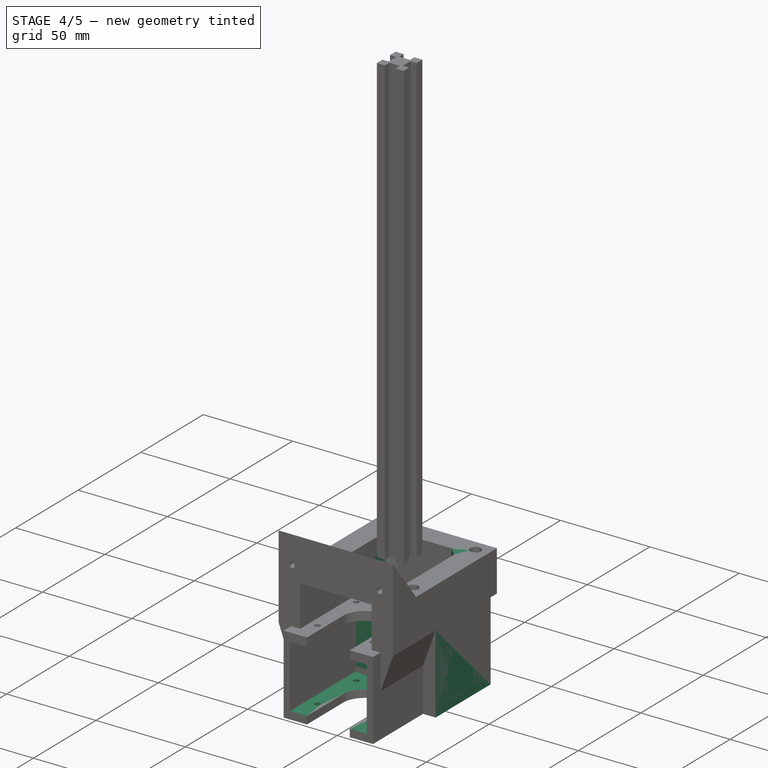
[diagram: stage 4 of 5 — iso view after this stage's code; geometry added in this stage tinted green]
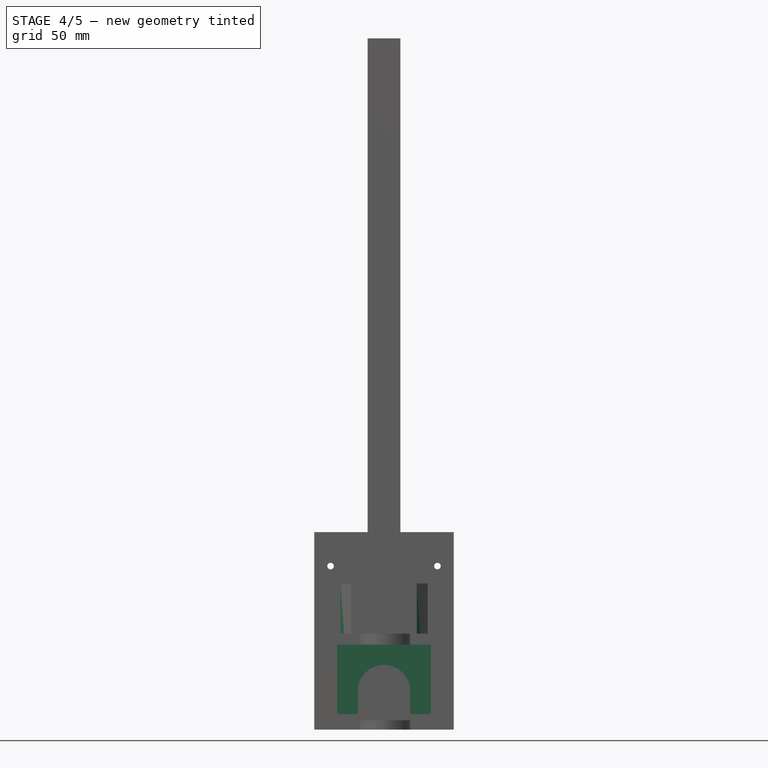
[diagram: stage 4 of 5 — front view after this stage's code; geometry added in this stage tinted green]
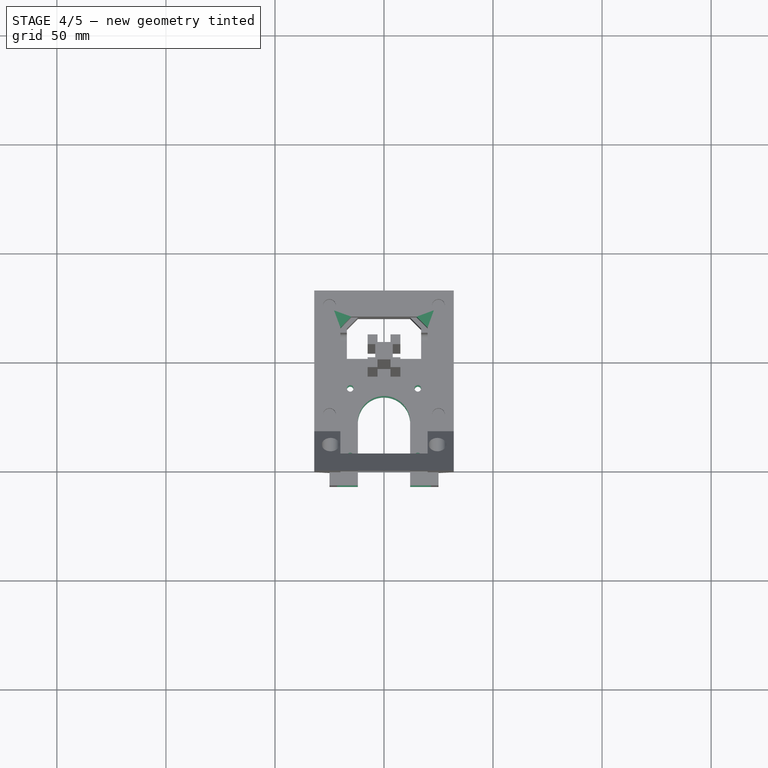
[diagram: stage 4 of 5 — top view after this stage's code; geometry added in this stage tinted green]
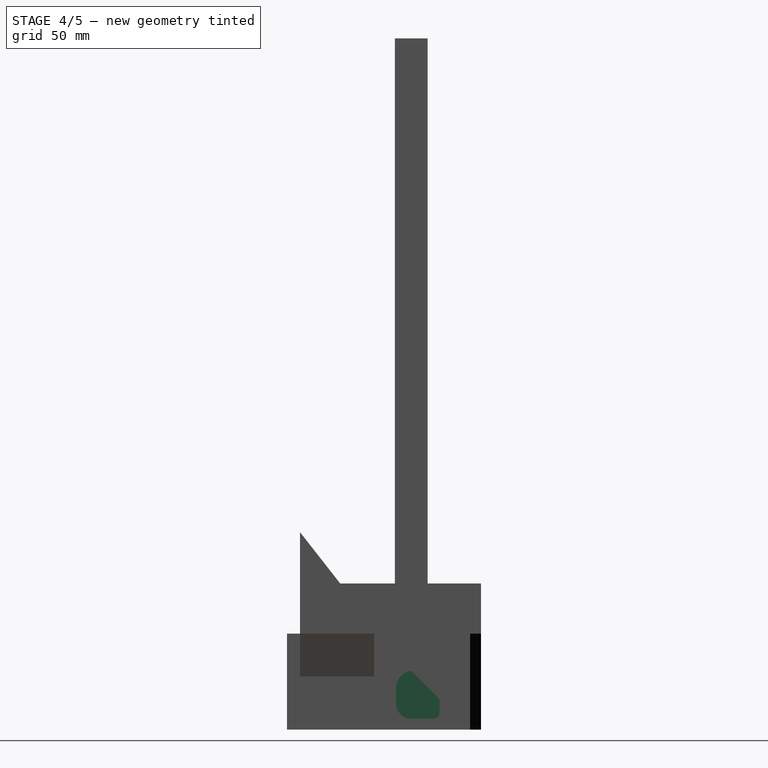
[diagram: stage 4 of 5 — right view after this stage's code; geometry added in this stage tinted green]
FEATURE [App::Link] Link  label="MainShaft"
  LinkedObject = -> <external MainShaft.FCStd>#Body
FEATURE [App::Link] Link001  label="MainStepper"
  LinkPlacement = pos=(-2.8e-15,-28,-67) rot=(0,0,1;3.14159rad)
  LinkedObject = -> <external MainStepper.FCStd>#Body001
  Placement = pos=(-2.8e-15,-28,-67) rot=(0,0,1;3.14159rad)
FEATURE [Sketcher::SketchObject] Sketch005
  ArcFitTolerance = 1e-06
  AttachmentSupport = -> [XY_Plane001]
  FullyConstrained = false
  MakeInternals = false
  MapMode = 5
  expr: Constraints[10] = <<SpreadSheet>>.BaseWidth
  expr: Constraints[18] = <<SpreadSheet>>.BaseRectWidth
  expr: Constraints[23] = <<SpreadSheet>>.BaseWidth / 2
  expr: Constraints[24] = <<SpreadSheet>>.BaseWidth / 2 + 10
  sketch-geometry (10):
    g0: GeomPoint [constr] X=0 Y=0 Z=0
    g1: LineSegment StartX=32 StartY=-42 StartZ=0 EndX=32 EndY=32 EndZ=0
    g2: LineSegment StartX=32 StartY=32 StartZ=0 EndX=-32 EndY=32 EndZ=0
    g3: LineSegment StartX=-32 StartY=32 StartZ=0 EndX=-32 EndY=-42 EndZ=0
    g4: LineSegment StartX=-32 StartY=-42 StartZ=0 EndX=-20 EndY=-42 EndZ=0
    g5: GeomPoint [constr] X=0 Y=0 Z=0
    g6: LineSegment StartX=20 StartY=-42 StartZ=0 EndX=32 EndY=-42 EndZ=0
    g7: LineSegment StartX=-20 StartY=20 StartZ=0 EndX=-20 EndY=-42 EndZ=0
    g8: LineSegment StartX=20 StartY=20 StartZ=0 EndX=20 EndY=-42 EndZ=0
    g9: LineSegment StartX=-20 StartY=20 StartZ=0 EndX=20 EndY=20 EndZ=0
  constraints (25):
    c: Coincident(g0,g-1)
    c: Coincident(g1,g2)
    c: Coincident(g2,g3)
    c: Coincident(g3,g4)
    c: Coincident(g6,g1)
    c: Vertical(g1)
    c: Vertical(g3)
    c: Horizontal(g2)
    c: Horizontal(g4)
    c: Coincident(g5,g0)
    c: DistanceX(g2,g2) = 64
    c: Horizontal(g6,g1)
    c: Coincident(g7,g4)
    c: Vertical(g7)
    c: Coincident(g8,g6)
    c: Vertical(g8)
    c: Horizontal(g8,g7)
    c: Horizontal(g4,g6)
    c: Distance(g8,g7) = 40
    c: Equal(g4,g6)
    c: Coincident(g7,g9)
    c: Coincident(g9,g8)
    c: Distance(g2,g9) = 12
    c: Distance(g-1,g2) = 32
    c: Distance(g-1,g4) = 42
FEATURE [PartDesign::Pad] Pad004
  Direction = (0,0,1)
  Length = 23
  Length2 = 10
  Profile = -> Sketch005
  ReferenceAxis = -> Sketch005 [N_Axis]
  Refine = true
  Reversed = true
  Suppressed = false
  Type = 0
  expr: Length = <<SpreadSheet>>.MainShaftHolder
FEATURE [Sketcher::SketchObject] Sketch006
  ArcFitTolerance = 1e-06
  AttachmentSupport = -> [Pad004]
  FullyConstrained = false
  MakeInternals = false
  MapMode = 5
  Placement = pos=(0,0,-23) rot=(1,0,0;3.14159rad)
  sketch-geometry (9):
    g0: LineSegment StartX=-25 StartY=57 StartZ=0 EndX=-25 EndY=-1 EndZ=0
    g1: LineSegment StartX=-25 StartY=-1 StartZ=0 EndX=25 EndY=-1 EndZ=0
    g2: LineSegment StartX=25 StartY=-1 StartZ=0 EndX=25 EndY=57 EndZ=0
    g3: LineSegment StartX=25 StartY=57 StartZ=0 EndX=12 EndY=57 EndZ=0
    g4: GeomPoint [constr] X=0 Y=28 Z=0
    g5: ArcOfCircle CenterX=0 CenterY=28 CenterZ=0 NormalX=0 NormalY=0 NormalZ=1 AngleXU=0 Radius=12 StartAngle=3.14162 EndAngle=6.28321
    g6: LineSegment StartX=-12 StartY=27.9997 StartZ=0 EndX=-12 EndY=57 EndZ=0
    g7: LineSegment StartX=12 StartY=28.0003 StartZ=0 EndX=12 EndY=57 EndZ=0
    g8: LineSegment StartX=-12 StartY=57 StartZ=0 EndX=-25 EndY=57 EndZ=0
  constraints (24):
    c: Coincident(g0,g1)
    c: Coincident(g1,g2)
    c: Coincident(g2,g3)
    c: Coincident(g8,g0)
    c: Vertical(g0)
    c: Vertical(g2)
    c: Horizontal(g1)
    c: Symmetric(g2,g0,g4)
    c: PointOnObject(g4,g-2)
    c: DistanceY(g-1,g4) = 28
    c: DistanceX(g8,g3) = 50
    c: Angle(g5) = 3.14159
    c: Coincident(g5,g4)
    c: Vertical(g6)
    c: Coincident(g6,g5)
    c: Radius(g5) = 12
    c: Coincident(g5,g7)
    c: Coincident(g7,g3)
    c: Vertical(g7)
    c: Equal(g0,g2)
    c: Horizontal(g3)
    c: Horizontal(g8)
    c: Coincident(g6,g8)
    c: Distance(g4,g3) = 29
FEATURE [PartDesign::Pad] Pad005
  BaseFeature = -> Pad004
  Direction = (0,0,-1)
  Length = 44
  Length2 = 10
  Profile = -> Sketch006
  ReferenceAxis = -> Sketch006 [N_Axis]
  Refine = true
  Suppressed = false
  Type = 0
FEATURE [Sketcher::SketchObject] Sketch007
  ArcFitTolerance = 1e-06
  AttachmentSupport = -> [Pad005]
  FullyConstrained = false
  MakeInternals = false
  MapMode = 5
  Placement = pos=(0,-57,0) rot=(1,0,0;1.5708rad)
  sketch-geometry (5):
    g0: LineSegment StartX=21.5 StartY=-62.7172 StartZ=0 EndX=21.5 EndY=-27.7172 EndZ=0
    g1: LineSegment StartX=21.5 StartY=-27.7172 StartZ=0 EndX=-21.5 EndY=-27.7172 EndZ=0
    g2: LineSegment StartX=-21.5 StartY=-27.7172 StartZ=0 EndX=-21.5 EndY=-62.7172 EndZ=0
    g3: LineSegment StartX=-21.5 StartY=-62.7172 StartZ=0 EndX=21.5 EndY=-62.7172 EndZ=0
    g4: GeomPoint [constr] X=0 Y=-45.2172 Z=0
  constraints (12):
    c: Coincident(g0,g1)
    c: Coincident(g1,g2)
    c: Coincident(g2,g3)
    c: Coincident(g3,g0)
    c: Vertical(g0)
    c: Vertical(g2)
    c: Horizontal(g1)
    c: Horizontal(g3)
    c: Symmetric(g2,g0,g4)
    c: PointOnObject(g4,g-2)
    c: DistanceY(g2,g2) = 35
    c: DistanceX(g1,g1) = 43
FEATURE [PartDesign::Pocket] Pocket001
  BaseFeature = -> Pad005
  Direction = (0,1,-2e-16)
  Length = 53
  Length2 = 5
  Profile = -> Sketch007
  ReferenceAxis = -> Sketch007 [N_Axis]
  Refine = true
  Suppressed = false
  Type = 0
FEATURE [Sketcher::SketchObject] Sketch008
  ArcFitTolerance = 1e-06
  AttachmentSupport = -> [Pocket001]
  ExternalGeometry = -> [Pocket001]
  FullyConstrained = false
  MakeInternals = false
  MapMode = 5
  Placement = pos=(0,-42,0) rot=(1,0,0;1.5708rad)
  sketch-geometry (6):
    g0: LineSegment StartX=-32 StartY=-23 StartZ=0 EndX=-25 EndY=-23 EndZ=0
    g1: LineSegment StartX=-25 StartY=-23 StartZ=0 EndX=-25 EndY=-42.5619 EndZ=0
    g2: LineSegment StartX=-25 StartY=-42.5619 StartZ=0 EndX=-32 EndY=-23 EndZ=0
    g3: LineSegment StartX=32 StartY=-23 StartZ=0 EndX=25 EndY=-23 EndZ=0
    g4: LineSegment StartX=25 StartY=-42.5619 StartZ=0 EndX=32 EndY=-23 EndZ=0
    g5: LineSegment StartX=25 StartY=-23 StartZ=0 EndX=25 EndY=-42.5619 EndZ=0
  constraints (13):
    c: Coincident(g-3,g0)
    c: Coincident(g0,g-4)
    c: Coincident(g0,g1)
    c: Vertical(g1)
    c: Coincident(g1,g2)
    c: Coincident(g2,g0)
    c: Coincident(g-6,g3)
    c: Coincident(g3,g-6)
    c: Coincident(g4,g3)
    c: Coincident(g3,g5)
    c: Coincident(g5,g4)
    c: Vertical(g5)
    c: Horizontal(g1,g4)
FEATURE [PartDesign::Pad] Pad006
  BaseFeature = -> Pocket001
  Direction = (0,-1,2e-16)
  Length = 25
  Length2 = 10
  Profile = -> Sketch008
  ReferenceAxis = -> Sketch008 [N_Axis]
  Refine = true
  Reversed = true
  Suppressed = false
  Type = 0
FEATURE [Sketcher::SketchObject] Sketch009
  ArcFitTolerance = 1e-06
  AttachmentSupport = -> [Pad006]
  FullyConstrained = true
  MakeInternals = false
  MapMode = 5
  Placement = pos=(0,0,-23) rot=(0,0,1;0rad)
  expr: Constraints[10] = <<SpreadSheet>>.StepperCenterToScewHole
  expr: Constraints[11] = <<SpreadSheet>>.StepperCenterToScewHole
  expr: Constraints[12] = <<SpreadSheet>>.StepperCenterToScewHole
  expr: Constraints[13] = <<SpreadSheet>>.StepperCenterToScewHole
  expr: Constraints[3] = <<SpreadSheet>>.StepperCenterToScewHole
  expr: Constraints[4] = <<SpreadSheet>>.StepperCenterToScewHole
  expr: Constraints[8] = <<SpreadSheet>>.StepperCenterToScewHole
  expr: Constraints[9] = <<SpreadSheet>>.StepperCenterToScewHole
  sketch-geometry (5):
    g0: GeomPoint [constr] X=0 Y=-28 Z=0
    g1: Circle CenterX=-15.5 CenterY=-12.5 CenterZ=0 NormalX=0 NormalY=0 NormalZ=1 AngleXU=0 Radius=1.5
    g2: Circle CenterX=-15.5 CenterY=-43.5 CenterZ=0 NormalX=0 NormalY=0 NormalZ=1 AngleXU=0 Radius=1.5
    g3: Circle CenterX=15.5 CenterY=-43.5 CenterZ=0 NormalX=0 NormalY=0 NormalZ=1 AngleXU=0 Radius=1.5
    g4: Circle CenterX=15.5 CenterY=-12.5 CenterZ=0 NormalX=0 NormalY=0 NormalZ=1 AngleXU=0 Radius=1.5
  constraints (14):
    c: PointOnObject(g0,g-2)
    c: DistanceY(g0,g-1) = 28
    c: Diameter(g1) = 3
    c: Distance(g1,g-2) = 15.5
    c: DistanceY(g0,g1) = 15.5
    c: Diameter(g2) = 3
    c: Diameter(g3) = 3
    c: Diameter(g4) = 3
    c: Distance(g4,g-2) = 15.5
    c: DistanceY(g0,g4) = 15.5
    c: DistanceY(g3,g0) = 15.5
    c: DistanceY(g2,g0) = 15.5
    c: DistanceX(g2,g0) = 15.5
    c: DistanceX(g0,g3) = 15.5
FEATURE [PartDesign::Pocket] Pocket002
  BaseFeature = -> Pad006
  Direction = (0,0,-1)
  Length = 10
  Length2 = 5
  Profile = -> Sketch009
  ReferenceAxis = -> Sketch009 [N_Axis]
  Refine = true
  Suppressed = false
  Type = 1
FEATURE [Sketcher::SketchObject] Sketch012
  ArcFitTolerance = 1e-06
  AttachmentSupport = -> [Pocket002]
  FullyConstrained = true
  MakeInternals = false
  MapMode = 5
  expr: Constraints[0] = 6
  expr: Constraints[1] = 25
  expr: Constraints[2] = 25 mm
  sketch-geometry (1):
    g0: Circle CenterX=-25 CenterY=25 CenterZ=0 NormalX=0 NormalY=0 NormalZ=1 AngleXU=0 Radius=3
  constraints (3):
    c: Diameter(g0) = 6
    c: Distance(g0,g-2) = 25
    c: Distance(g0,g-1) = 25
FEATURE [PartDesign::Pocket] Pocket004
  BaseFeature = -> Pocket002
  Direction = (0,0,-1)
  Length = 10
  Length2 = 5
  Profile = -> Sketch012
  ReferenceAxis = -> Sketch012 [N_Axis]
  Refine = true
  Suppressed = false
  Type = 0
FEATURE [PartDesign::PolarPattern] PolarPattern
  Angle = 360
  Axis = -> Sketch012 [N_Axis]
  BaseFeature = -> Pocket004
  Mode = 0
  Occurrences = 4
  Offset = 120
  Originals = -> [Pocket004]
  Refine = true
  Suppressed = false
  TransformMode = 0
FEATURE [PartDesign::Chamfer] Chamfer
  Angle = 45
  Base = -> PolarPattern [Edge11,Edge2,Edge69,Edge54,Edge35,Edge57]
  BaseFeature = -> PolarPattern
  ChamferType = 0
  FlipDirection = false
  Refine = true
  Size = 5
  Size2 = 1
  SupportTransform = false
  Suppressed = false
  UseAllEdges = false
FEATURE [Sketcher::SketchObject] Sketch007
  ArcFitTolerance = 1e-06
  AttachmentSupport = -> [Fillet001]
  ExternalGeometry = -> [Fillet001]
  FullyConstrained = true
  MakeInternals = false
  MapMode = 5
  Placement = pos=(0,0,29) rot=(0,0,1;0rad)
FEATURE [PartDesign::Body] Body  label="MainShaft"
  AllowCompound = false
  Group = -> [Sketch,Pad,Fillet,DatumPlane,Sketch001,Pad001,Sketch002,Pad002,Sketch003,Pocket,PolarPattern,Sketch004,Pocket001,Sketch005,Pad003,Sketch006,Pad004,Fillet001,Sketch007]
  Origin = -> Origin
  Tip = -> Fillet001
---- part MainShaftHolder.FCStd = doc fcstd_5320a82fc9b9 ----
FCSTD DOCUMENT  (FreeCAD 1.0R39319 (Git))
Label: MainShaftHolder
License: All rights reserved
LicenseURL: https://en.wikipedia.org/wiki/All_rights_reserved
objects: Sketcher::SketchObject×15, PartDesign::Pocket×9, PartDesign::PolarPattern×6, PartDesign::Revolution×4, PartDesign::Body×4, PartDesign::Pad×1, App::Link×1, PartDesign::Hole×1
note: 91 computed .brp shape members not serialized (recipe doc carries the construction recipe); baked Part::Feature solids carry a one-line shape summary decoded from their .brp
EXTERNAL_REF file=Robot.FCStd obj=Spreadsheet

FEATURE [Sketcher::SketchObject] Sketch014
  ArcFitTolerance = 1e-06
  FullyConstrained = true
  MakeInternals = false
  MapMode = 5
  Placement = pos=(0,0,5) rot=(0,0,1;0rad)
  sketch-geometry (1):
    g0: Circle CenterX=0 CenterY=19 CenterZ=0 NormalX=0 NormalY=0 NormalZ=1 AngleXU=0 Radius=1.5
  constraints (3):
    c: PointOnObject(g0,g-2)
    c: Diameter(g0) = 3
    c: DistanceY(g-1,g0) = 19
FEATURE [Sketcher::SketchObject] Sketch
  ArcFitTolerance = 1e-06
  AttachmentSupport = -> [XZ_Plane003]
  FullyConstrained = true
  MakeInternals = false
  MapMode = 5
  Placement = pos=(0,0,0) rot=(1,0,0;1.5708rad)
  expr: Constraints[13] = <<SpreadSheet>>.ContactHeight
  expr: Constraints[14] = <<SpreadSheet>>.FirstArmHeight
  expr: Constraints[15] = <<SpreadSheet>>.FirstArmInnerSpaceDiameter / 2 + 4
  expr: Constraints[16] = <<SpreadSheet>>.OuterDiameter / 2
  expr: Constraints[17] = <<SpreadSheet>>.FirstArmInnerDiameter / 2
  sketch-geometry (6):
    g0: LineSegment StartX=14 StartY=0 StartZ=0 EndX=14 EndY=5 EndZ=0
    g1: LineSegment StartX=14 StartY=5 StartZ=0 EndX=26.5 EndY=5 EndZ=0
    g2: LineSegment StartX=26.5 StartY=5 StartZ=0 EndX=26.5 EndY=40 EndZ=0
    g3: LineSegment StartX=26.5 StartY=40 StartZ=0 EndX=45 EndY=40 EndZ=0
    g4: LineSegment StartX=45 StartY=40 StartZ=0 EndX=45 EndY=0 EndZ=0
    g5: LineSegment StartX=45 StartY=0 StartZ=0 EndX=14 EndY=0 EndZ=0
  constraints (18):
    c: PointOnObject(g0,g-1)
    c: Vertical(g0)
    c: Coincident(g0,g1)
    c: Horizontal(g1)
    c: Coincident(g1,g2)
    c: Vertical(g2)
    c: Coincident(g2,g3)
    c: Horizontal(g3)
    c: Coincident(g3,g4)
    c: Vertical(g4)
    c: Coincident(g4,g5)
    c: Coincident(g5,g0)
    c: Horizontal(g5)
    c: DistanceY(g0,g0) = 5
    c: DistanceY(g4,g4) = 40
    c: Distance(g-2,g2) = 26.5
    c: Distance(g-2,g4) = 45
    c: Distance(g0,g-2) = 14
FEATURE [PartDesign::Revolution] Revolution
  Angle = 360
  Angle2 = 60
  Axis = (0,2e-16,1)
  Base = (0,0,0)
  Placement = pos=(0,0,0) rot=(1,0,0;1.5708rad)
  Profile = -> Sketch
  ReferenceAxis = -> Sketch [V_Axis]
  Refine = true
  Reversed = true
  Suppressed = false
  Type = 0
FEATURE [PartDesign::Pocket] Pocket
  BaseFeature = -> Revolution
  Direction = (0,0,-1)
  Length = 5
  Length2 = 5
  Placement = pos=(0,0,0) rot=(1,0,0;1.5708rad)
  Profile = -> Sketch014
  ReferenceAxis = -> Sketch014 [N_Axis]
  Refine = true
  Suppressed = false
  Type = 1
FEATURE [PartDesign::PolarPattern] PolarPattern
  Angle = 360
  Axis = -> Sketch014 [N_Axis]
  BaseFeature = -> Pocket
  Mode = 0
  Occurrences = 6
  Offset = 120
  Originals = -> [Pocket]
  Placement = pos=(0,0,0) rot=(1,0,0;1.5708rad)
  Refine = true
  Suppressed = false
  TransformMode = 0
FEATURE [Sketcher::SketchObject] Sketch015
  ArcFitTolerance = 1e-06
  AttachmentSupport = -> [PolarPattern]
  FullyConstrained = false
  MakeInternals = false
  MapMode = 5
  Placement = pos=(0,1.76e-14,40) rot=(0,0,1;3.14159rad)
  expr: Constraints[10] = <<SpreadSheet>>.ContactArmLength
  expr: Constraints[5] = <<SpreadSheet>>.ContactArmWith / 2
  expr: Constraints[6] = <<SpreadSheet>>.ContactArmWith / 2
  expr: Constraints[8] = <<SpreadSheet>>.OuterDiameter
  sketch-geometry (6):
    g0: LineSegment StartX=-27 StartY=51 StartZ=0 EndX=-27 EndY=36 EndZ=0
    g1: LineSegment StartX=27 StartY=36 StartZ=0 EndX=27 EndY=51 EndZ=0
    g2: LineSegment StartX=27 StartY=51 StartZ=0 EndX=-27 EndY=51 EndZ=0
    g3: ArcOfCircle CenterX=0 CenterY=0 CenterZ=0 NormalX=0 NormalY=0 NormalZ=1 AngleXU=0 Radius=45 StartAngle=0.927295 EndAngle=1.07621
    g4: LineSegment StartX=-21.36 StartY=39.6075 StartZ=0 EndX=21.36 EndY=39.6075 EndZ=0
    g5: ArcOfCircle CenterX=0 CenterY=0 CenterZ=0 NormalX=0 NormalY=0 NormalZ=1 AngleXU=0 Radius=45 StartAngle=2.06538 EndAngle=2.2143
  constraints (17):
    c: Coincident(g1,g2)
    c: Coincident(g2,g0)
    c: Vertical(g0)
    c: Vertical(g1)
    c: Horizontal(g2)
    c: Distance(g-2,g0) = 27
    c: Distance(g-2,g1) = 27
    c: Coincident(g3,g-1)
    c: Diameter(g3) = 90
    c: Coincident(g3,g1)
    c: DistanceY(g1,g1) = 15
    c: Coincident(g0,g5)
    c: Horizontal(g4)
    c: Equal(g3,g5)
    c: Coincident(g3,g4)
    c: Coincident(g3,g5)
    c: Coincident(g4,g5)
FEATURE [PartDesign::Pad] Pad
  BaseFeature = -> PolarPattern
  Direction = (0,0,1)
  Length = 40
  Length2 = 10
  Placement = pos=(0,0,0) rot=(1,0,0;1.5708rad)
  Profile = -> Sketch015
  ReferenceAxis = -> Sketch015 [N_Axis]
  Refine = true
  Reversed = true
  Suppressed = false
  Type = 0
  expr: Length = <<SpreadSheet>>.FirstArmHeight
FEATURE [Sketcher::SketchObject] Sketch016
  ArcFitTolerance = 1e-06
  AttachmentSupport = -> [Pad]
  FullyConstrained = false
  MakeInternals = false
  MapMode = 5
  Placement = pos=(0,-51,1.12e-14) rot=(1,0,0;1.5708rad)
  sketch-geometry (5):
    g0: LineSegment StartX=10.8116 StartY=13.4418 StartZ=0 EndX=10.8116 EndY=40.8754 EndZ=0
    g1: LineSegment StartX=10.8116 StartY=40.8754 StartZ=0 EndX=-10.8116 EndY=40.8754 EndZ=0
    g2: LineSegment StartX=-10.8116 StartY=40.8754 StartZ=0 EndX=-10.8116 EndY=13.4418 EndZ=0
    g3: LineSegment StartX=-10.8116 StartY=13.4418 StartZ=0 EndX=10.8116 EndY=13.4418 EndZ=0
    g4: GeomPoint [constr] X=0 Y=27.1586 Z=0
  constraints (10):
    c: Coincident(g0,g1)
    c: Coincident(g1,g2)
    c: Coincident(g2,g3)
    c: Coincident(g3,g0)
    c: Vertical(g0)
    c: Vertical(g2)
    c: Horizontal(g1)
    c: Horizontal(g3)
    c: Symmetric(g2,g0,g4)
    c: PointOnObject(g4,g-2)
FEATURE [PartDesign::Pocket] Pocket001
  BaseFeature = -> Pad
  Direction = (0,1,-2e-16)
  Length = 35
  Length2 = 5
  Placement = pos=(0,0,0) rot=(1,0,0;1.5708rad)
  Profile = -> Sketch016
  ReferenceAxis = -> Sketch016 [N_Axis]
  Refine = true
  Suppressed = false
  Type = 0
FEATURE [Sketcher::SketchObject] Sketch019
  ArcFitTolerance = 1e-06
  AttachmentSupport = -> [PolarPattern001]
  FullyConstrained = false
  MakeInternals = false
  MapMode = 5
  Placement = pos=(0,1.41e-14,32) rot=(0,0,1;3.14159rad)
  sketch-geometry (4):
    g0: LineSegment StartX=-47.2167 StartY=21 StartZ=0 EndX=-47.2167 EndY=-21 EndZ=0
    g1: LineSegment StartX=-47.2167 StartY=-21 StartZ=0 EndX=-3.0924 EndY=-21 EndZ=0
    g2: LineSegment StartX=-3.0924 StartY=-21 StartZ=0 EndX=-3.0924 EndY=21 EndZ=0
    g3: LineSegment StartX=-3.0924 StartY=21 StartZ=0 EndX=-47.2167 EndY=21 EndZ=0
  constraints (10):
    c: Coincident(g0,g1)
    c: Coincident(g1,g2)
    c: Coincident(g2,g3)
    c: Coincident(g3,g0)
    c: Vertical(g0)
    c: Vertical(g2)
    c: Horizontal(g1)
    c: Horizontal(g3)
    c: Distance(g-1,g3) = 21
    c: Distance(g-1,g1) = 21
FEATURE [PartDesign::Pocket] Pocket003
  BaseFeature = -> PolarPattern001
  Direction = (0,0,-1)
  Length = 27
  Length2 = 5
  Placement = pos=(0,0,0) rot=(1,0,0;1.5708rad)
  Profile = -> Sketch019
  ReferenceAxis = -> Sketch019 [N_Axis]
  Refine = true
  Suppressed = false
  Type = 0
FEATURE [Sketcher::SketchObject] Sketch020
  ArcFitTolerance = 1e-06
  AttachmentSupport = -> [Pocket003]
  FullyConstrained = true
  MakeInternals = false
  MapMode = 5
  Placement = pos=(0,1.41e-14,32) rot=(0,0,1;3.14159rad)
  sketch-geometry (3):
    g0: Circle CenterX=0 CenterY=27 CenterZ=0 NormalX=0 NormalY=0 NormalZ=1 AngleXU=0 Radius=3
    g1: Circle CenterX=0 CenterY=-27 CenterZ=0 NormalX=0 NormalY=0 NormalZ=1 AngleXU=0 Radius=3
    g2: Circle CenterX=27 CenterY=0 CenterZ=0 NormalX=0 NormalY=0 NormalZ=1 AngleXU=0 Radius=3
  constraints (9):
    c: PointOnObject(g0,g-2)
    c: Diameter(g0) = 6
    c: DistanceY(g-1,g0) = 27
    c: PointOnObject(g1,g-2)
    c: PointOnObject(g2,g-1)
    c: Diameter(g2) = 6
    c: Diameter(g1) = 6
    c: DistanceX(g-1,g2) = 27
    c: DistanceY(g1,g-1) = 27
FEATURE [PartDesign::Pocket] Pocket004
  BaseFeature = -> Pocket003
  Direction = (0,0,-1)
  Length = 20
  Length2 = 5
  Placement = pos=(0,0,0) rot=(1,0,0;1.5708rad)
  Profile = -> Sketch020
  ReferenceAxis = -> Sketch020 [N_Axis]
  Refine = true
  Suppressed = false
  Type = 0
FEATURE [Sketcher::SketchObject] Sketch008
  ArcFitTolerance = 1e-06
  AttachmentSupport = -> [Pad005]
  FullyConstrained = true
  MakeInternals = false
  MapMode = 5
  Placement = pos=(0,0,34) rot=(0,0,1;0rad)
  sketch-geometry (1):
    g0: Circle CenterX=0 CenterY=0 CenterZ=0 NormalX=0 NormalY=0 NormalZ=1 AngleXU=0 Radius=2.5
  constraints (2):
    c: Coincident(g0,g-1)
    c: Diameter(g0) = 5
FEATURE [PartDesign::Pad] Pad006
  BaseFeature = -> Pad005
  Direction = (0,0,1)
  Length = 15
  Length2 = 10
  Profile = -> Sketch008
  ReferenceAxis = -> Sketch008 [N_Axis]
  Refine = true
  Suppressed = false
  Type = 0
FEATURE [Sketcher::SketchObject] Sketch009
  ArcFitTolerance = 1e-06
  AttachmentSupport = -> [Pad006]
  FullyConstrained = true
  MakeInternals = false
  MapMode = 5
  Placement = pos=(0,0,34) rot=(0,0,1;0rad)
  sketch-geometry (1):
    g0: Circle CenterX=-15.5 CenterY=15.5 CenterZ=0 NormalX=0 NormalY=0 NormalZ=1 AngleXU=0 Radius=1.5
  constraints (3):
    c: Distance(g0,g-2) = 15.5
    c: DistanceY(g-1,g0) = 15.5
    c: Diameter(g0) = 3
FEATURE [PartDesign::Pocket] Pocket002
  BaseFeature = -> Pad006
  Direction = (0,0,-1)
  Length = 5
  Length2 = 5
  Profile = -> Sketch009
  ReferenceAxis = -> Sketch009 [N_Axis]
  Refine = true
  Suppressed = false
  Type = 1
FEATURE [PartDesign::PolarPattern] PolarPattern
  Angle = 360
  Axis = -> Sketch009 [N_Axis]
  BaseFeature = -> Pocket002
  Mode = 0
  Occurrences = 4
  Offset = 120
  Originals = -> [Pocket002]
  Refine = true
  Suppressed = false
  TransformMode = 0
FEATURE [Sketcher::SketchObject] Sketch010
  ArcFitTolerance = 1e-06
  AttachmentSupport = -> [PolarPattern]
  ExternalGeometry = -> [Sketch007]
  FullyConstrained = false
  MakeInternals = false
  MapMode = 5
  Placement = pos=(0,0,0) rot=(1,0,0;3.14159rad)
  sketch-geometry (5):
    g0: LineSegment StartX=-10 StartY=14.4954 StartZ=0 EndX=10 EndY=14.4954 EndZ=0
    g1: LineSegment StartX=10 StartY=14.4954 StartZ=0 EndX=10 EndY=27.4954 EndZ=0
    g2: LineSegment StartX=10 StartY=27.4954 StartZ=0 EndX=-10 EndY=27.4954 EndZ=0
    g3: LineSegment StartX=-10 StartY=27.4954 StartZ=0 EndX=-10 EndY=14.4954 EndZ=0
    g4: GeomPoint [constr] X=0 Y=20.9954 Z=0
  constraints (12):
    c: Coincident(g0,g1)
    c: Coincident(g1,g2)
    c: Coincident(g2,g3)
    c: Coincident(g3,g0)
    c: Horizontal(g0)
    c: Horizontal(g2)
    c: Vertical(g1)
    c: Vertical(g3)
    c: Symmetric(g2,g0,g4)
    c: Distance(g1,g3) = 20
    c: Distance(g0,g2) = 13
    c: PointOnObject(g4,g-2)
FEATURE [PartDesign::Pad] Pad
  BaseFeature = -> PolarPattern
  Direction = (0,0,-1)
  Length = 10
  Length2 = 10
  Profile = -> Sketch010
  ReferenceAxis = -> Sketch010 [N_Axis]
  Refine = true
  Reversed = true
  Suppressed = false
  Type = 0
FEATURE [PartDesign::Body] Body001  label="Nema17"
  AllowCompound = false
  Group = -> [Sketch007,Pad005,Sketch008,Pad006,Sketch009,Pocket002,PolarPattern,Sketch010,Pad]
  Origin = -> Origin001
  Placement = pos=(0,0,0) rot=(0,0,1;3.14159rad)
  Tip = -> Pad
FEATURE [App::Link] Link  label="GT2_Second_Min"
  LinkPlacement = pos=(0,0,36) rot=(0,0,1;0rad)
  LinkedObject = -> <external GT2_20.FCStd>#Gear
  Placement = pos=(0,0,36) rot=(0,0,1;0rad)
FEATURE [App::LinkGroup] LinkGroup  label="MainStepper"
  ElementList = -> [Body001,Link]
  LinkMode = 0
---- part Robot.FCStd = doc fcstd_74aedbbb681d ----
FCSTD DOCUMENT  (FreeCAD 1.0R39319 (Git))
Label: Robot
License: All rights reserved
LicenseURL: https://en.wikipedia.org/wiki/All_rights_reserved
objects: App::Link×5, Spreadsheet::Sheet×1, Sketcher::SketchObject×1, PartDesign::Body×1
note: 3 computed .brp shape members not serialized (recipe doc carries the construction recipe); baked Part::Feature solids carry a one-line shape summary decoded from their .brp
EXTERNAL_REF file=DisplayHolder.FCStd obj=LinkGroup
EXTERNAL_REF file=RobotBody.FCStd obj=Body002
EXTERNAL_REF file=GT2_80.FCStd obj=LinkGroup
EXTERNAL_REF file=RobotBody.FCStd obj=LinkGroup
EXTERNAL_REF file=ChessBoard.FCStd obj=LinkGroup

FEATURE [Spreadsheet::Sheet] Spreadsheet  label="SpreadSheet"
  cells = A1='BaseWidth; B1(BaseWidth)=64; D1='TopThickness; E1(TopThickness)=2; G1='TeethNum; H1(TeethNum)=64; A2='BaseRectWidth; B2(BaseRectWidth)=40; D2='TopBearingHeight; E2(TopBearingHeight)=8; G2='CenterGearShaft; H2(CenterGearShaft)=0; A3='BaseRectHeight; B3(BaseRectHeight)=28; D3='TopBearingHole; E3(TopBearingHole)=25; G3='CutAngle; H3(CutAngle)=45; A4='HoleDiamter; B4(HoleDiamter)=28; D4='TopBearingDiameter; E4(TopBearingDiameter)=37; G4='ShaftDiameter; H4(ShaftDiameter)=6; A5='ScrewHoleDiamter; B5(ScrewHoleDiamter)=4.5; D5='TopThrustBearingHeight; E5(TopThrustBearingHeight)=4; G5='ShaftLength; H5(ShaftLength)=20; A6='CenterToScrewHole; B6(CenterToScrewHole)=24.5; D6='TopThrustBearingDiameter; E6(TopThrustBearingDiameter)=47; A7='Width; B7(Width)=120; D7='TopDiameter; E7(TopDiameter)=64; G7='GripperVerticalThread; H7(GripperVerticalThread)=5; A8='Length; B8(Length)=150; D8='TopFaceWidth; E8(TopFaceWidth)=50; G8='GripperVerticalBolt; H8(GripperVerticalBolt)=8; A9='Height; B9(Height)=70; D9='TopFaceSize; E9(TopFaceSize)=200; G9='GripperCenterToFork; H9(GripperCenterToFork)=10; A10='FirstLayerDepth; B10(FirstLayerDepth)=12; D10='SecondArmHeight; E10(SecondArmHeight)=37; G10='GripperForkDiameter; H10(GripperForkDiameter)=2; A11='UpperThickness; B11(UpperThickness)=5; D11='TopFaceHeight; E11(TopFaceHeight)=42; A12='UpperHeight; B12(UpperHeight)=80; D12='TopGearHoleDiameter; E12(TopGearHoleDiameter)=54; A13='StepperCenterToScewHole; B13(StepperCenterToScewHole)=15.5; D13='SecondShaftStepperHolderHeight; E13(SecondShaftStepperHolderHeight)=5; A14='ContactBaseWidth; B14(ContactBaseWidth)=10; D14='CenterToStepper; E14(CenterToStepper)=200; A15='StepperScrewHole; B15(StepperScrewHole)=3; D15='StepperSize; E15(StepperSize)=42; A16='MainShaftScrewBase; B16(MainShaftScrewBase)=11; D16='StepperHeight; E16(StepperHeight)=20; A17='MainShaftSize; B17(MainShaftSize)=60; D17='StepperMainHole; E17(StepperMainHole)=22; A18='MainShaftHolder; B18(MainShaftHolder)=23; D18='StepperCenterToScrew; E18(StepperCenterToScrew)=15.5; A19='MainShaftScrewDepth; B19(MainShaftScrewDepth)=5; D19='CuroaHoleSize; E19(CuroaHoleSize)=40; D20='ConnectMainArmHoleSpace; E20(ConnectMainArmHoleSpace)=5; A21='ContactHeight; B21(ContactHeight)=5; D21='SecondShaftScrewHole; E21(SecondShaftScrewHole)=4; A22='FirstArmHeight; B22(FirstArmHeight)=40; D22='SecondShaftThroughHole; E22(SecondShaftThroughHole)=8; A23='FirstArmInnerDiameter; B23(FirstArmInnerDiameter)=28; D23='BottomBearingInnerDiameter; E23(BottomBearingInnerDiameter)=40; A24='FirstArmInnerSpaceDiameter; B24(FirstArmInnerSpaceDiameter)=45; D24='BottomBearingOuterDiameter; E24(BottomBearingOuterDiameter)=52; A25='OuterDiameter; B25(OuterDiameter)=90; D25='BottomBearingHeight; E25(BottomBearingHeight)=7; A26='ContactArmWith; B26(ContactArmWith)=54; A27='ContactArmLength; B27(ContactArmLength)=15; A29='UpperBearingHole; B29(UpperBearingHole)=8; A30='UpperBearingInner; B30(UpperBearingInner)=6; A31='UpperBearingInnerDepth; B31(UpperBearingInnerDepth)=1; A32='UpperBearingOuter; B32(UpperBearingOuter)=8.1; A33='UpperBearingOuterDepth; B33(UpperBearingOuterDepth)=4; A34='LowerBearingHole; B34(LowerBearingHole)=10; A35='LowerBearingInner; B35(LowerBearingInner)=13.1; A36='LowerBearingInnerDepth; B36(LowerBearingInnerDepth)=1; A37='LowerBearingOuter; B37(LowerBearingOuter)=15.1; A38='LowerBearingOuterDepth; B38(LowerBearingOuterDepth)=4; A39='CenterSpace; B39(CenterSpace)=31; A40='UpperLowerSpace; B40(UpperLowerSpace)=13; A41='FirstToSecondHoleSpace; B41(FirstToSecondHoleSpace)=13; A42='GripperLowerBearingHole; B42(GripperLowerBearingHole)=8.1; A43='GripperUpperBearingHole; B43(GripperUpperBearingHole)=8.1; A44='GripperThickness; B44(GripperThickness)=1; A45='GripperLowerHoleDiameter; B45(GripperLowerHoleDiameter)=5; A46='GripperWidth; B46(GripperWidth)=44; A47='ThirdArmWidth; B47(ThirdArmWidth)=50; A48='ThirdArmLength; B48(ThirdArmLength)=100
FEATURE [App::Link] Link010  label="DisplayGroup"
  LinkPlacement = pos=(-57.6,-1.23143e-05,160.9) rot=(0,0,1;0rad)
  LinkedObject = -> <external DisplayHolder.FCStd>#LinkGroup
  Placement = pos=(-57.6,-1.23143e-05,160.9) rot=(0,0,1;0rad)
FEATURE [App::Link] Link011  label="BodyHolder001"
  LinkedObject = -> <external RobotBody.FCStd>#Body002
FEATURE [App::Link] Link012  label="SecondShaft"
  LinkPlacement = pos=(224.007,129.319,49) rot=(0,0,1;3.66519rad)
  LinkedObject = -> <external GT2_80.FCStd>#LinkGroup
  Placement = pos=(224.007,129.319,49) rot=(0,0,1;3.66519rad)
FEATURE [App::Link] Link013  label="RobotBody"
  LinkedObject = -> <external RobotBody.FCStd>#LinkGroup
FEATURE [App::Link] Link014  label="WoodenChessBoard"
  LinkPlacement = pos=(-58,223.8,-82.5) rot=(0,0,1;3.14159rad)
  LinkedObject = -> <external ChessBoard.FCStd>#LinkGroup
  Placement = pos=(-58,223.8,-82.5) rot=(0,0,1;3.14159rad)
FEATURE [Sketcher::SketchObject] Sketch
  ArcFitTolerance = 1e-06
  AttachmentSupport = -> [XY_Plane]
  FullyConstrained = true
  MakeInternals = false
  MapMode = 5
  sketch-geometry (2):
    g0: LineSegment StartX=0 StartY=0 StartZ=0 EndX=0 EndY=38.08 EndZ=0
    g1: LineSegment StartX=0 StartY=38.08 StartZ=0 EndX=-74.12 EndY=38.08 EndZ=0
  constraints (6):
    c: Coincident(g0,g-1)
    c: PointOnObject(g0,g-2)
    c: Coincident(g1,g0)
    c: Horizontal(g1)
    c: DistanceX(g1,g1) = 74.12
    c: DistanceY(g0,g0) = 38.08
FEATURE [PartDesign::Body] Body
  AllowCompound = false
  Group = -> [Sketch]
  Origin = -> Origin
  Placement = pos=(-0.1,-0.1,0) rot=(0,0,1;4.71239rad)
---- part RobotShell.FCStd = doc fcstd_b050f918fab4 (157607 chars; too large to inline — full recipe in that document) ----
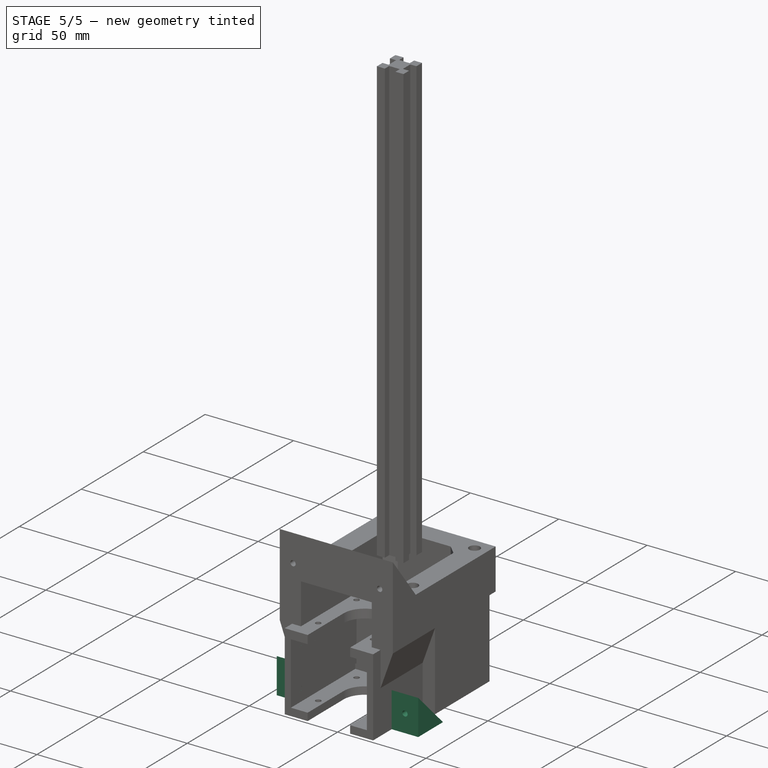
[diagram: stage 5 of 5 — iso view after this stage's code; geometry added in this stage tinted green]
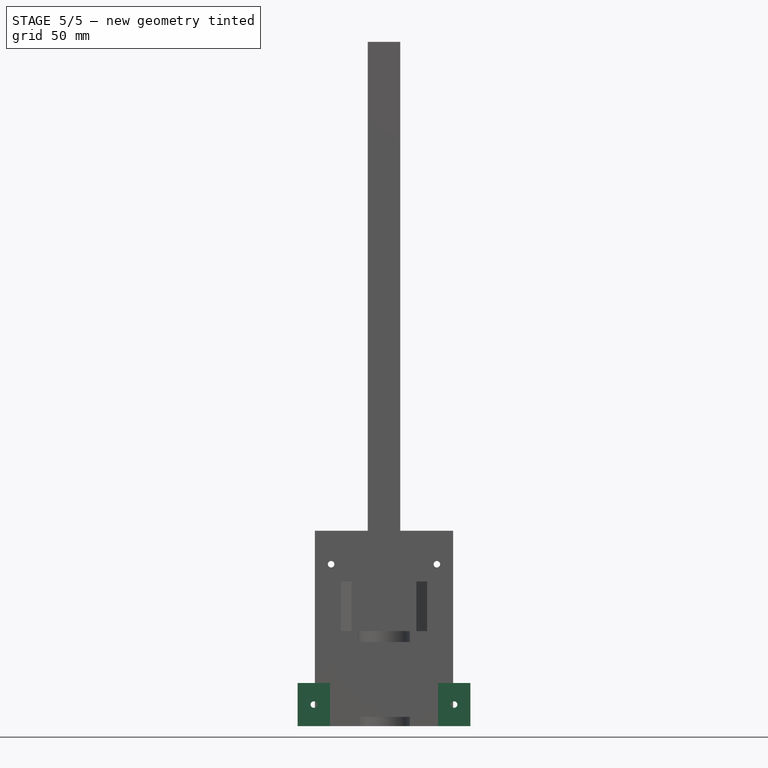
[diagram: stage 5 of 5 — front view after this stage's code; geometry added in this stage tinted green]
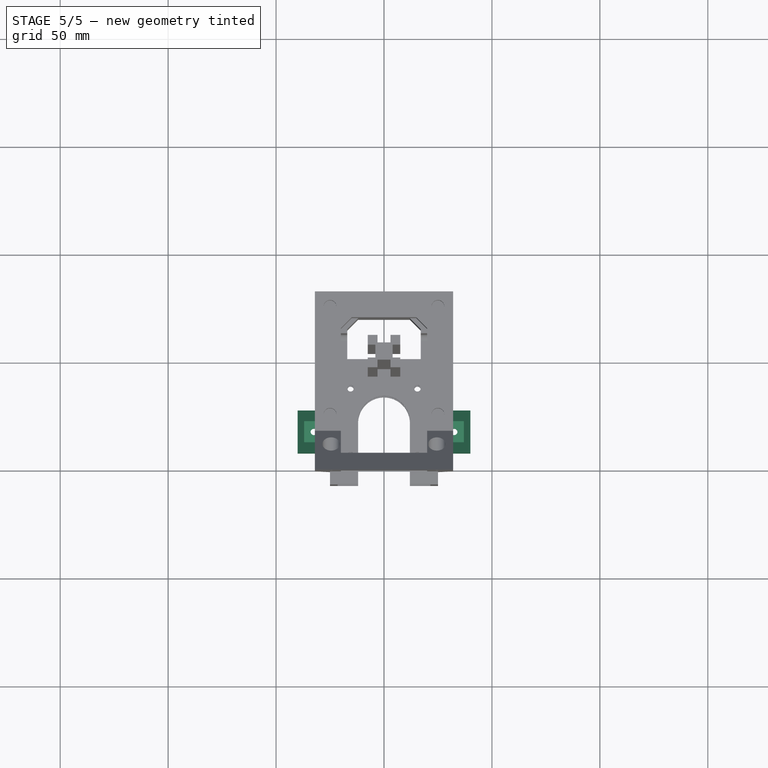
[diagram: stage 5 of 5 — top view after this stage's code; geometry added in this stage tinted green]
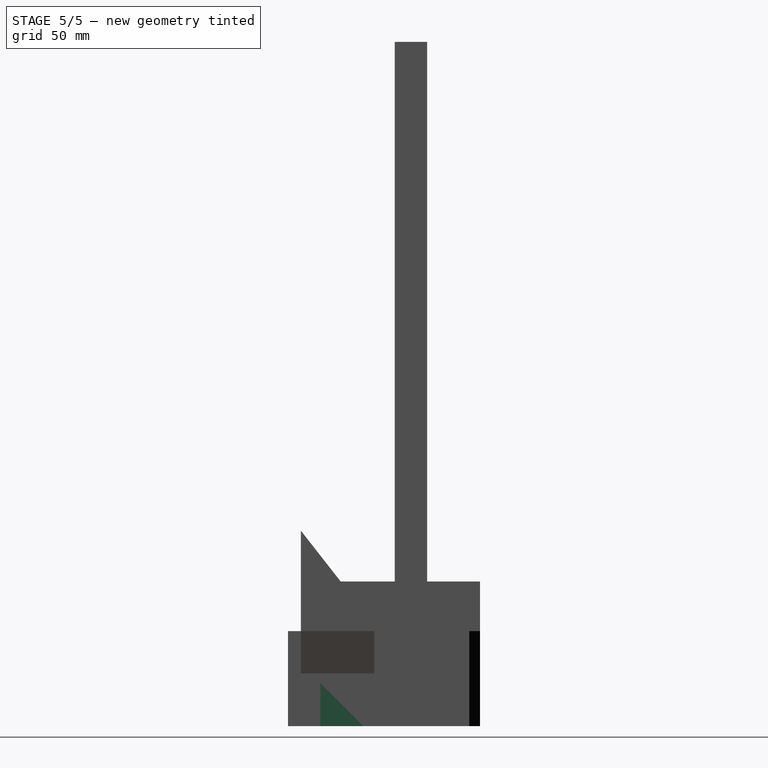
[diagram: stage 5 of 5 — right view after this stage's code; geometry added in this stage tinted green]
FEATURE [Sketcher::SketchObject] Sketch013
  ArcFitTolerance = 1e-06
  AttachmentSupport = -> [Chamfer]
  ExternalGeometry = -> [Chamfer]
  FullyConstrained = false
  MakeInternals = false
  MapMode = 5
  Placement = pos=(0,1,0) rot=(0,0.707107,0.707107;3.14159rad)
  sketch-geometry (4):
    g0: LineSegment StartX=-12 StartY=-62.7172 StartZ=0 EndX=12 EndY=-62.7172 EndZ=0
    g1: LineSegment StartX=12 StartY=-62.7172 StartZ=0 EndX=12 EndY=-49.3568 EndZ=0
    g2: LineSegment StartX=-12 StartY=-49.3568 StartZ=0 EndX=-12 EndY=-62.7172 EndZ=0
    g3: ArcOfCircle CenterX=0 CenterY=-49.3568 CenterZ=0 NormalX=0 NormalY=0 NormalZ=1 AngleXU=0 Radius=12 StartAngle=0 EndAngle=3.14159
  constraints (10):
    c: Coincident(g0,g1)
    c: Coincident(g2,g0)
    c: Horizontal(g0)
    c: Vertical(g1)
    c: Vertical(g2)
    c: Distance(g1,g2) = 24
    c: Coincident(g0,g-3)
    c: Symmetric(g1,g2,g3)
    c: Coincident(g3,g2)
    c: Coincident(g3,g1)
FEATURE [PartDesign::Pocket] Pocket
  BaseFeature = -> Chamfer
  Direction = (0,-1,2e-16)
  Length = 5
  Length2 = 5
  Profile = -> Sketch013
  ReferenceAxis = -> Sketch013 [N_Axis]
  Refine = true
  Suppressed = false
  Type = 0
FEATURE [App::Link] Link003  label="SpreadSheet"
  LinkedObject = -> <external Robot.FCStd>#Spreadsheet
FEATURE [App::Link] Link004  label="MainArmRotatorV2"
  LinkPlacement = pos=(0,-3.45707e-06,29) rot=(0,0,1;0rad)
  LinkedObject = -> <external MainShaftHolder.FCStd>#Body
  Placement = pos=(0,-3.45707e-06,29) rot=(0,0,1;0rad)
FEATURE [Sketcher::SketchObject] Sketch
  ArcFitTolerance = 1e-06
  AttachmentSupport = -> [Pocket]
  FullyConstrained = true
  MakeInternals = false
  MapMode = 5
  Placement = pos=(0,0,-23) rot=(1,0,0;3.14159rad)
  sketch-geometry (16):
    g0: LineSegment StartX=-32 StartY=17 StartZ=0 EndX=-25 EndY=17 EndZ=0
    g1: LineSegment StartX=-25 StartY=17 StartZ=0 EndX=-25 EndY=7 EndZ=0
    g2: LineSegment StartX=-25 StartY=7 StartZ=0 EndX=-20 EndY=2 EndZ=0
    g3: LineSegment StartX=-20 StartY=2 StartZ=0 EndX=-20 EndY=-15 EndZ=0
    g4: LineSegment StartX=-20 StartY=-15 StartZ=0 EndX=-15 EndY=-20 EndZ=0
    g5: LineSegment StartX=-15 StartY=-20 StartZ=0 EndX=15 EndY=-20 EndZ=0
    g6: LineSegment StartX=15 StartY=-20 StartZ=0 EndX=20 EndY=-15 EndZ=0
    g7: LineSegment StartX=20 StartY=-15 StartZ=0 EndX=20 EndY=2 EndZ=0
    g8: LineSegment StartX=20 StartY=2 StartZ=0 EndX=25 EndY=7 EndZ=0
    g9: LineSegment StartX=25 StartY=7 StartZ=0 EndX=25 EndY=17 EndZ=0
    g10: LineSegment StartX=25 StartY=17 StartZ=0 EndX=32 EndY=17 EndZ=0
    g11: LineSegment StartX=32 StartY=17 StartZ=0 EndX=32 EndY=-27 EndZ=0
    g12: LineSegment StartX=32 StartY=-27 StartZ=0 EndX=27 EndY=-32 EndZ=0
    g13: LineSegment StartX=27 StartY=-32 StartZ=0 EndX=-27 EndY=-32 EndZ=0
    g14: LineSegment StartX=-27 StartY=-32 StartZ=0 EndX=-32 EndY=-27 EndZ=0
    g15: LineSegment StartX=-32 StartY=-27 StartZ=0 EndX=-32 EndY=17 EndZ=0
  constraints (48):
    c: Horizontal(g0)
    c: Coincident(g0,g1)
    c: Vertical(g1)
    c: Coincident(g1,g2)
    c: Coincident(g2,g3)
    c: Vertical(g3)
    c: Coincident(g3,g4)
    c: Coincident(g4,g5)
    c: Horizontal(g5)
    c: Coincident(g5,g6)
    c: Coincident(g6,g7)
    c: Vertical(g7)
    c: Coincident(g7,g8)
    c: Coincident(g8,g9)
    c: Vertical(g9)
    c: Coincident(g9,g10)
    c: Horizontal(g10)
    c: Coincident(g10,g11)
    c: Vertical(g11)
    c: Coincident(g11,g12)
    c: Coincident(g12,g13)
    c: Horizontal(g13)
    c: Coincident(g13,g14)
    c: Coincident(g14,g15)
    c: Coincident(g15,g0)
    c: Vertical(g15)
    c: Distance(g-2,g15) = 32
    c: Distance(g-1,g0) = 17
    c: Distance(g0,g0) = 7
    c: DistanceY(g1,g1) = 10
    c: Distance(g15,g3) = 12
    c: Angle(g2,g1) = 2.35619
    c: Angle(g14,g15) = 2.35619
    c: Distance(g-1,g13) = 32
    c: DistanceX(g10,g10) = 7
    c: Distance(g-2,g11) = 32
    c: DistanceY(g9,g9) = 10
    c: Angle(g9,g8) = 2.35619
    c: Distance(g-1,g10) = 17
    c: Distance(g7,g11) = 12
    c: DistanceY(g14,g-1) = 27
    c: DistanceY(g11,g-1) = 27
    c: Angle(g11,g12) = 2.35619
    c: Angle(g4,g3) = 2.35619
    c: Angle(g7,g6) = 2.35619
    c: Distance(g-1,g5) = 20
    c: DistanceX(g4,g-1) = 15
    c: Distance(g5,g-2) = 15
FEATURE [PartDesign::Pad] Pad
  BaseFeature = -> Pocket
  Direction = (0,0,-1)
  Length = 44
  Length2 = 10
  Profile = -> Sketch
  ReferenceAxis = -> Sketch [N_Axis]
  Refine = true
  Suppressed = false
  Type = 0
FEATURE [Sketcher::SketchObject] Sketch014
  ArcFitTolerance = 1e-06
  AttachmentSupport = -> [Pad]
  ExternalGeometry = -> [Pad]
  FullyConstrained = true
  MakeInternals = false
  MapMode = 5
  Placement = pos=(-25,0,0) rot=(0.57735,-0.57735,-0.57735;2.0944rad)
  sketch-geometry (2):
    g0: Circle CenterX=49.5 CenterY=-33 CenterZ=0 NormalX=0 NormalY=0 NormalZ=1 AngleXU=0 Radius=1.5
    g1: Circle CenterX=49.5 CenterY=-56 CenterZ=0 NormalX=0 NormalY=0 NormalZ=1 AngleXU=0 Radius=1.5
  constraints (6):
    c: Diameter(g0) = 3
    c: Diameter(g1) = 3
    c: Distance(g0,g-3) = 7.5
    c: DistanceY(g0,g-3) = 10
    c: Distance(g1,g-3) = 7.5
    c: DistanceY(g1,g0) = 23
FEATURE [PartDesign::Pocket] Pocket005
  BaseFeature = -> Pad
  Direction = (1,0,0)
  Length = 5
  Length2 = 5
  Profile = -> Sketch014
  ReferenceAxis = -> Sketch014 [N_Axis]
  Refine = true
  Suppressed = false
  Type = 1
FEATURE [Sketcher::SketchObject] Sketch015
  ArcFitTolerance = 1e-06
  AttachmentSupport = -> [Pocket005]
  ExternalGeometry = -> [Pocket005]
  FullyConstrained = true
  MakeInternals = false
  MapMode = 5
  Placement = pos=(-25,0,0) rot=(0.57735,-0.57735,-0.57735;2.0944rad)
  sketch-geometry (3):
    g0: LineSegment StartX=22 StartY=-67 StartZ=0 EndX=42 EndY=-67 EndZ=0
    g1: LineSegment StartX=42 StartY=-67 StartZ=0 EndX=42 EndY=-47 EndZ=0
    g2: LineSegment StartX=42 StartY=-47 StartZ=0 EndX=22 EndY=-67 EndZ=0
  constraints (9):
    c: PointOnObject(g0,g-3)
    c: PointOnObject(g0,g-3)
    c: Coincident(g0,g1)
    c: Vertical(g1)
    c: Coincident(g1,g2)
    c: Coincident(g2,g0)
    c: Angle(g0,g2) = 0.785398
    c: Distance(g-3,g1) = 15
    c: DistanceX(g0,g0) = 20
FEATURE [PartDesign::Pad] Pad007
  BaseFeature = -> Pocket005
  Direction = (-1,0,0)
  Length = 15
  Length2 = 10
  Profile = -> Sketch015
  ReferenceAxis = -> Sketch015 [N_Axis]
  Refine = true
  Suppressed = false
  Type = 0
FEATURE [Sketcher::SketchObject] Sketch016
  ArcFitTolerance = 1e-06
  AttachmentSupport = -> [Pad007]
  ExternalGeometry = -> [Pad007]
  FullyConstrained = true
  MakeInternals = false
  MapMode = 5
  Placement = pos=(0,-42,0) rot=(1,0,0;1.5708rad)
  sketch-geometry (1):
    g0: Circle CenterX=-32.5 CenterY=-57 CenterZ=0 NormalX=0 NormalY=0 NormalZ=1 AngleXU=0 Radius=1.5
  constraints (3):
    c: Diameter(g0) = 3
    c: Distance(g0,g-3) = 7.5
    c: DistanceY(g-3,g0) = 10
FEATURE [PartDesign::Pocket] Pocket006
  BaseFeature = -> Pad007
  Direction = (0,1,-2e-16)
  Length = 20
  Length2 = 5
  Profile = -> Sketch016
  ReferenceAxis = -> Sketch016 [N_Axis]
  Refine = true
  Suppressed = false
  Type = 0
FEATURE [Sketcher::SketchObject] Sketch017
  ArcFitTolerance = 1e-06
  AttachmentSupport = -> [Pocket006]
  ExternalGeometry = -> [Pocket006]
  FullyConstrained = true
  MakeInternals = false
  MapMode = 5
  Placement = pos=(0,0,-67) rot=(1,0,0;3.14159rad)
  sketch-geometry (1):
    g0: Circle CenterX=-32.5 CenterY=32 CenterZ=0 NormalX=0 NormalY=0 NormalZ=1 AngleXU=0 Radius=1.5
  constraints (3):
    c: Diameter(g0) = 3
    c: Distance(g0,g-3) = 10
    c: DistanceX(g0,g-3) = 7.5
FEATURE [PartDesign::Pocket] Pocket007
  BaseFeature = -> Pocket006
  Direction = (0,0,1)
  Length = 20
  Length2 = 5
  Profile = -> Sketch017
  ReferenceAxis = -> Sketch017 [N_Axis]
  Refine = true
  Suppressed = false
  Type = 0
FEATURE [Sketcher::SketchObject] Sketch018
  ArcFitTolerance = 1e-06
  AttachmentOffset = pos=(0,0,-5) rot=(0,0,1;0rad)
  AttachmentSupport = -> [Pocket007]
  ExternalGeometry = -> [Pocket007]
  FullyConstrained = true
  MakeInternals = false
  MapMode = 5
  Placement = pos=(0,0,-62) rot=(1,0,0;3.14159rad)
  sketch-geometry (5):
    g0: LineSegment StartX=-28 StartY=27 StartZ=0 EndX=-28 EndY=37 EndZ=0
    g1: LineSegment StartX=-28 StartY=37 StartZ=0 EndX=-37 EndY=37 EndZ=0
    g2: LineSegment StartX=-37 StartY=37 StartZ=0 EndX=-37 EndY=27 EndZ=0
    g3: LineSegment StartX=-37 StartY=27 StartZ=0 EndX=-28 EndY=27 EndZ=0
    g4: GeomPoint [constr] X=-32.5 Y=32 Z=0
  constraints (13):
    c: Coincident(g0,g1)
    c: Coincident(g1,g2)
    c: Coincident(g2,g3)
    c: Coincident(g3,g0)
    c: Vertical(g0)
    c: Vertical(g2)
    c: Horizontal(g1)
    c: Horizontal(g3)
    c: Symmetric(g2,g0,g4)
    c: Distance(g4,g-3) = 10
    c: Distance(g4,g-4) = 7.5
    c: Distance(g-3,g1) = 5
    c: Distance(g-4,g2) = 3
FEATURE [PartDesign::Pocket] Pocket008
  BaseFeature = -> Pocket007
  Direction = (0,0,1)
  Length = 15
  Length2 = 5
  Profile = -> Sketch018
  ReferenceAxis = -> Sketch018 [N_Axis]
  Refine = true
  Suppressed = false
  Type = 0
FEATURE [PartDesign::Mirrored] Mirrored
  BaseFeature = -> Pocket008
  MirrorPlane = -> YZ_Plane001
  Originals = -> [Pad007,Pocket006,Pocket007,Pocket008]
  Refine = true
  Suppressed = false
  TransformMode = 0
FEATURE [Sketcher::SketchObject] Sketch019
  ArcFitTolerance = 1e-06
  AttachmentSupport = -> [Mirrored]
  ExternalGeometry = -> [Mirrored]
  FullyConstrained = false
  MakeInternals = false
  MapMode = 5
  Placement = pos=(0,32,0) rot=(0,0.707107,0.707107;3.14159rad)
  sketch-geometry (4):
    g0: LineSegment StartX=-8 StartY=-63 StartZ=0 EndX=8 EndY=-63 EndZ=0
    g1: LineSegment StartX=8 StartY=-63 StartZ=0 EndX=8 EndY=-50.4111 EndZ=0
    g2: LineSegment StartX=-8 StartY=-50.4111 StartZ=0 EndX=-8 EndY=-63 EndZ=0
    g3: ArcOfCircle CenterX=0 CenterY=-50.4853 CenterZ=0 NormalX=0 NormalY=0 NormalZ=1 AngleXU=0 Radius=8.00034 StartAngle=0.009278 EndAngle=3.13231
  constraints (11):
    c: Horizontal(g0)
    c: Coincident(g0,g1)
    c: Vertical(g1)
    c: Coincident(g2,g0)
    c: Vertical(g2)
    c: Distance(g-3,g0) = 4
    c: Distance(g-2,g2) = 8
    c: Distance(g-2,g1) = 8
    c: PointOnObject(g3,g-2)
    c: Coincident(g3,g2)
    c: Coincident(g3,g1)
FEATURE [PartDesign::Pocket] Pocket009
  BaseFeature = -> Mirrored
  Direction = (0,-1,2e-16)
  Length = 15
  Length2 = 5
  Profile = -> Sketch019
  ReferenceAxis = -> Sketch019 [N_Axis]
  Refine = true
  Suppressed = false
  Type = 0
FEATURE [Sketcher::SketchObject] Sketch020
  ArcFitTolerance = 1e-06
  AttachmentSupport = -> [Pocket009]
  FullyConstrained = true
  MakeInternals = false
  MapMode = 5
  Placement = pos=(0,-1.39e-14,-63) rot=(0,0,1;0rad)
  sketch-geometry (1):
    g0: Circle CenterX=0 CenterY=27.5 CenterZ=0 NormalX=0 NormalY=0 NormalZ=1 AngleXU=0 Radius=1.5
  constraints (3):
    c: PointOnObject(g0,g-2)
    c: Diameter(g0) = 3
    c: DistanceY(g-1,g0) = 27.5
FEATURE [PartDesign::Pocket] Pocket010
  BaseFeature = -> Pocket009
  Direction = (0,0,-1)
  Length = 5
  Length2 = 5
  Profile = -> Sketch020
  ReferenceAxis = -> Sketch020 [N_Axis]
  Refine = true
  Suppressed = false
  Type = 0
FEATURE [Sketcher::SketchObject] Sketch021
  ArcFitTolerance = 1e-06
  AttachmentSupport = -> [Pocket004]
  FullyConstrained = false
  MakeInternals = false
  MapMode = 5
  Placement = pos=(0,2.2e-15,5) rot=(0,0,1;3.14159rad)
  sketch-geometry (5):
    g0: LineSegment StartX=-11.0377 StartY=-5.18396 StartZ=0 EndX=-11.0377 EndY=5.18396 EndZ=0
    g1: LineSegment StartX=-11.0377 StartY=5.18396 StartZ=0 EndX=-66.9666 EndY=5.18396 EndZ=0
    g2: LineSegment StartX=-66.9666 StartY=5.18396 StartZ=0 EndX=-66.9666 EndY=-5.18396 EndZ=0
    g3: LineSegment StartX=-66.9666 StartY=-5.18396 StartZ=0 EndX=-11.0377 EndY=-5.18396 EndZ=0
    g4: GeomPoint [constr] X=-39.0021 Y=0 Z=0
  constraints (10):
    c: Coincident(g0,g1)
    c: Coincident(g1,g2)
    c: Coincident(g2,g3)
    c: Coincident(g3,g0)
    c: Vertical(g0)
    c: Vertical(g2)
    c: Horizontal(g1)
    c: Horizontal(g3)
    c: Symmetric(g2,g0,g4)
    c: PointOnObject(g4,g-1)
FEATURE [PartDesign::Pocket] Pocket005
  BaseFeature = -> Pocket004
  Direction = (0,0,-1)
  Length = 5
  Length2 = 5
  Placement = pos=(0,0,0) rot=(1,0,0;1.5708rad)
  Profile = -> Sketch021
  ReferenceAxis = -> Sketch021 [N_Axis]
  Refine = true
  Suppressed = false
  Type = 0
FEATURE [PartDesign::Body] Body  label="MainArmRotatorV2_old"
  AllowCompound = false
  Group = -> [Sketch017,Revolution001,Sketch018,Pocket002,PolarPattern001,Sketch019,Pocket003,Sketch020,Pocket004,Sketch021,Pocket005]
  Origin = -> Origin
  Placement = pos=(0,-3.45707e-06,29) rot=(0,0,1;0rad)
  Tip = -> Pocket005
FEATURE [Sketcher::SketchObject] Sketch022
  ArcFitTolerance = 1e-06
  AttachmentSupport = -> [XZ_Plane004]
  FullyConstrained = false
  MakeInternals = false
  MapMode = 5
  Placement = pos=(0,0,0) rot=(1,0,0;1.5708rad)
  sketch-geometry (4):
    g0: LineSegment StartX=14 StartY=0 StartZ=0 EndX=14 EndY=5 EndZ=0
    g1: LineSegment StartX=14 StartY=5 StartZ=0 EndX=36.5 EndY=5 EndZ=0
    g2: LineSegment StartX=36.5 StartY=5 StartZ=0 EndX=36.5 EndY=0 EndZ=0
    g3: LineSegment StartX=36.5 StartY=0 StartZ=0 EndX=14 EndY=0 EndZ=0
  constraints (11):
    c: Horizontal(g1)
    c: Coincident(g1,g2)
    c: PointOnObject(g2,g-1)
    c: Vertical(g2)
    c: Coincident(g2,g3)
    c: Coincident(g3,g0)
    c: Vertical(g0)
    c: Horizontal(g3)
    c: Distance(g-2,g0) = 14
    c: Distance(g2,g2) = 5
    c: Distance(g-2,g2) = 36.5
FEATURE [PartDesign::Revolution] Revolution002
  Angle = 360
  Angle2 = 60
  Axis = (0,2e-16,1)
  Base = (0,0,0)
  Placement = pos=(0,0,0) rot=(1,0,0;1.5708rad)
  Profile = -> Sketch022
  ReferenceAxis = -> Sketch022 [V_Axis]
  Refine = true
  Reversed = true
  Suppressed = false
  Type = 0
FEATURE [Sketcher::SketchObject] Sketch023
  ArcFitTolerance = 1e-06
  AttachmentSupport = -> [Revolution002]
  FullyConstrained = true
  MakeInternals = false
  MapMode = 5
  Placement = pos=(0,2.2e-15,5) rot=(0,0,1;3.14159rad)
  sketch-geometry (1):
    g0: Circle CenterX=0 CenterY=19 CenterZ=0 NormalX=0 NormalY=0 NormalZ=1 AngleXU=0 Radius=1.5
  constraints (3):
    c: Diameter(g0) = 3
    c: Vertical(g0,g-1)
    c: DistanceY(g-1,g0) = 19
FEATURE [PartDesign::Pocket] Pocket006
  BaseFeature = -> Revolution002
  Direction = (0,0,-1)
  Length = 5
  Length2 = 5
  Placement = pos=(0,0,0) rot=(1,0,0;1.5708rad)
  Profile = -> Sketch023
  ReferenceAxis = -> Sketch023 [N_Axis]
  Refine = true
  Suppressed = false
  Type = 0
FEATURE [PartDesign::PolarPattern] PolarPattern002
  Angle = 360
  Axis = -> Sketch023 [N_Axis]
  BaseFeature = -> Pocket006
  Mode = 0
  Occurrences = 6
  Offset = 120
  Originals = -> [Pocket006]
  Placement = pos=(0,0,0) rot=(1,0,0;1.5708rad)
  Refine = true
  Suppressed = false
  TransformMode = 0
FEATURE [Sketcher::SketchObject] Sketch024
  ArcFitTolerance = 1e-06
  AttachmentSupport = -> [PolarPattern002]
  FullyConstrained = true
  MakeInternals = false
  MapMode = 5
  Placement = pos=(0,2.2e-15,5) rot=(0,0,1;3.14159rad)
  sketch-geometry (1):
    g0: Circle CenterX=-32 CenterY=0 CenterZ=0 NormalX=0 NormalY=0 NormalZ=1 AngleXU=0 Radius=2
  constraints (3):
    c: Diameter(g0) = 4
    c: PointOnObject(g0,g-1)
    c: DistanceX(g0,g-1) = 32
FEATURE [PartDesign::Pocket] Pocket007
  BaseFeature = -> PolarPattern002
  Direction = (0,0,-1)
  Length = 5
  Length2 = 5
  Placement = pos=(0,0,0) rot=(1,0,0;1.5708rad)
  Profile = -> Sketch024
  ReferenceAxis = -> Sketch024 [N_Axis]
  Refine = true
  Suppressed = false
  Type = 0
FEATURE [PartDesign::PolarPattern] PolarPattern003
  Angle = 360
  Axis = -> Sketch024 [N_Axis]
  BaseFeature = -> Pocket007
  Mode = 1
  Occurrences = 6
  Offset = 60
  Originals = -> [Pocket007]
  Placement = pos=(0,0,0) rot=(1,0,0;1.5708rad)
  Refine = true
  Suppressed = false
  TransformMode = 0
FEATURE [PartDesign::Body] Body004  label="MainArmRotatorV2_print"
  AllowCompound = false
  Group = -> [Sketch022,Revolution002,Sketch023,Pocket006,PolarPattern002,Sketch024,Pocket007,PolarPattern003]
  Origin = -> Origin004
  Placement = pos=(0,-3.45707e-06,29) rot=(0,0,1;0rad)
  Tip = -> PolarPattern003
FEATURE [Sketcher::SketchObject] Sketch025
  ArcFitTolerance = 1e-06
  AttachmentSupport = -> [XZ_Plane005]
  FullyConstrained = false
  MakeInternals = false
  MapMode = 5
  Placement = pos=(0,0,0) rot=(1,0,0;1.5708rad)
  sketch-geometry (4):
    g0: LineSegment StartX=14 StartY=0 StartZ=0 EndX=14 EndY=5 EndZ=0
    g1: LineSegment StartX=14 StartY=5 StartZ=0 EndX=36.5 EndY=5 EndZ=0
    g2: LineSegment StartX=36.5 StartY=5 StartZ=0 EndX=36.5 EndY=0 EndZ=0
    g3: LineSegment StartX=36.5 StartY=0 StartZ=0 EndX=14 EndY=0 EndZ=0
  constraints (11):
    c: Horizontal(g1)
    c: Coincident(g1,g2)
    c: PointOnObject(g2,g-1)
    c: Vertical(g2)
    c: Coincident(g2,g3)
    c: Coincident(g3,g0)
    c: Vertical(g0)
    c: Horizontal(g3)
    c: Distance(g-2,g0) = 14
    c: Distance(g2,g2) = 5
    c: Distance(g-2,g2) = 36.5
FEATURE [PartDesign::Revolution] Revolution003
  Angle = 360
  Angle2 = 60
  Axis = (0,2e-16,1)
  Base = (0,0,0)
  Placement = pos=(0,0,0) rot=(1,0,0;1.5708rad)
  Profile = -> Sketch025
  ReferenceAxis = -> Sketch025 [V_Axis]
  Refine = true
  Reversed = true
  Suppressed = false
  Type = 0
FEATURE [Sketcher::SketchObject] Sketch026
  ArcFitTolerance = 1e-06
  AttachmentSupport = -> [Revolution003]
  FullyConstrained = true
  MakeInternals = false
  MapMode = 5
  Placement = pos=(0,1.1e-15,5) rot=(0,0,1;3.14159rad)
  sketch-geometry (1):
    g0: Circle CenterX=0 CenterY=19 CenterZ=0 NormalX=0 NormalY=0 NormalZ=1 AngleXU=0 Radius=1.5
  constraints (3):
    c: Diameter(g0) = 3
    c: Vertical(g0,g-1)
    c: DistanceY(g-1,g0) = 19
FEATURE [PartDesign::Pocket] Pocket008
  BaseFeature = -> Revolution003
  Direction = (0,0,-1)
  Length = 5
  Length2 = 5
  Placement = pos=(0,0,0) rot=(1,0,0;1.5708rad)
  Profile = -> Sketch026
  ReferenceAxis = -> Sketch026 [N_Axis]
  Refine = true
  Suppressed = false
  Type = 0
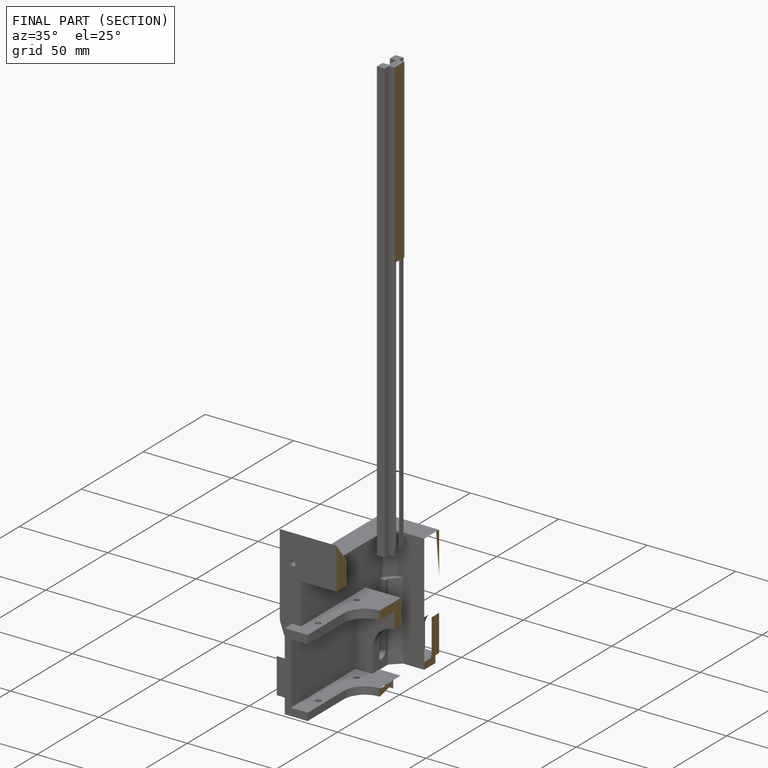
[diagram: finished part — half-section view (interior)]
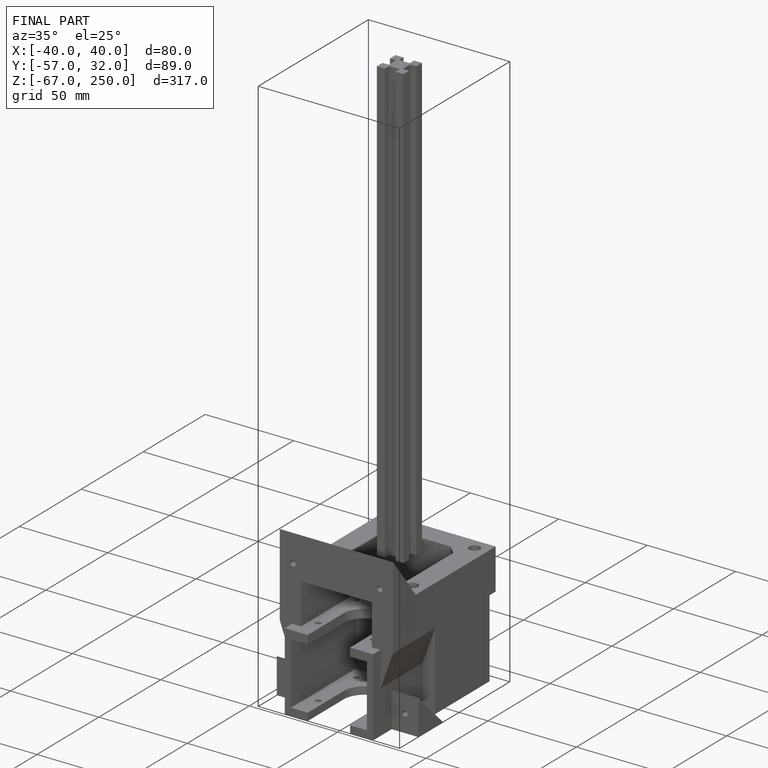
[diagram: finished part — iso view with bounding-box wireframe]
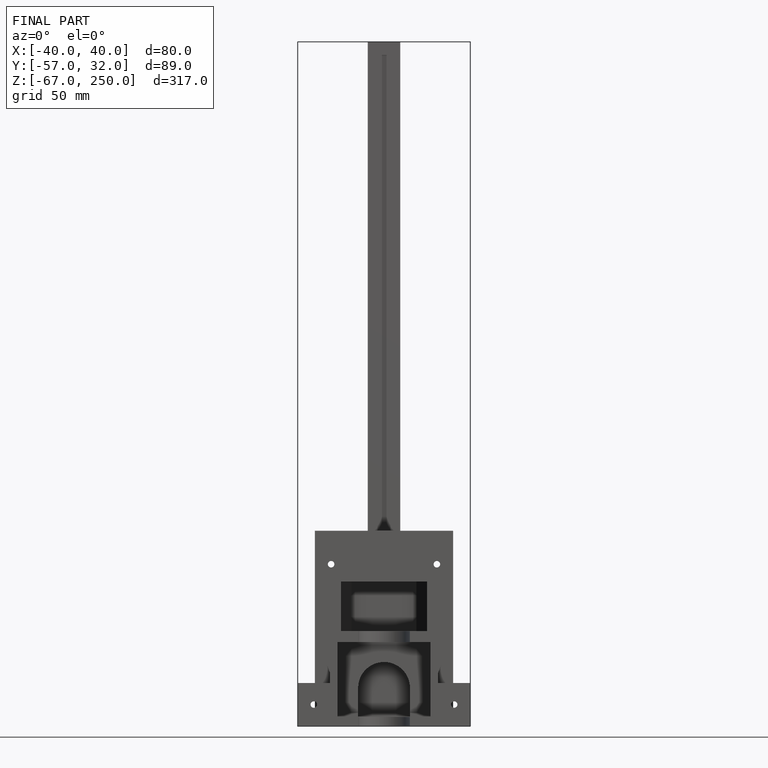
[diagram: finished part — front view with bounding-box wireframe]
